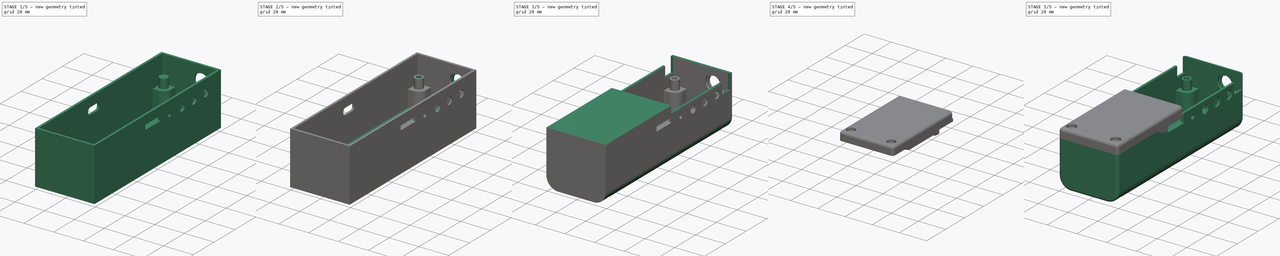
[diagram: build sequence overview — one tinted view per stage of 5, left to right]
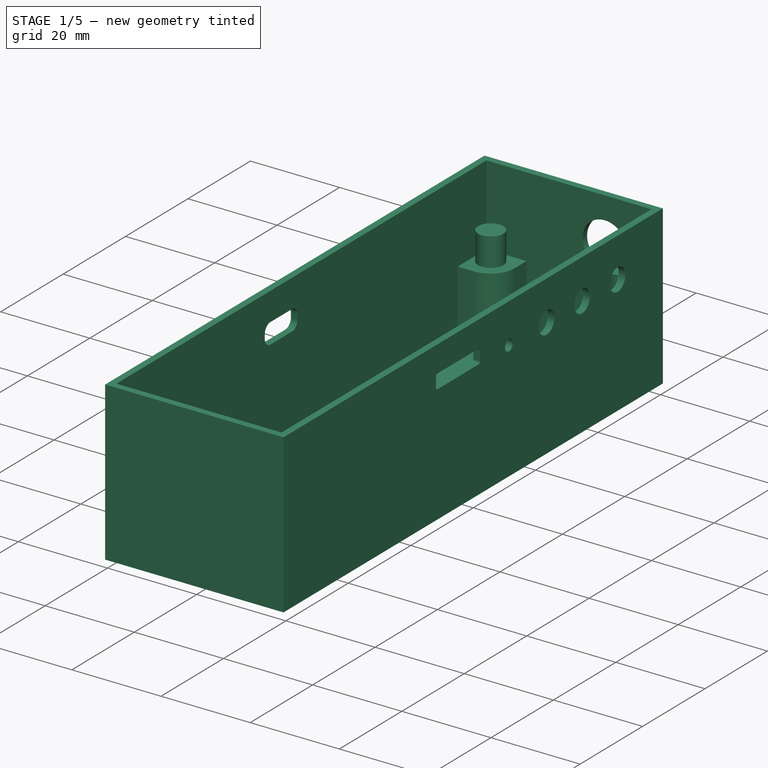
[diagram: stage 1 of 5 — iso view after this stage's code; geometry added in this stage tinted green]
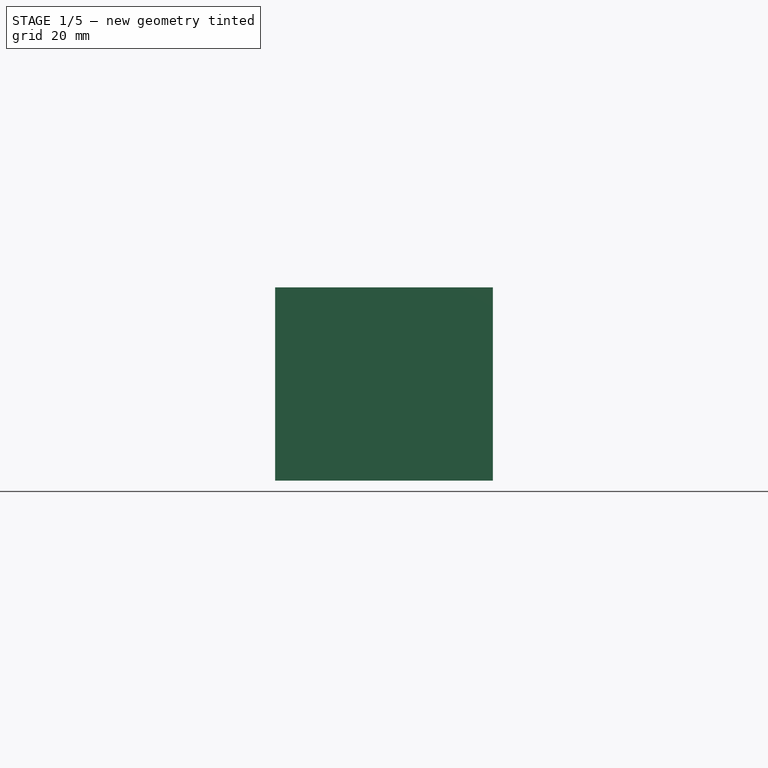
[diagram: stage 1 of 5 — front view after this stage's code; geometry added in this stage tinted green]
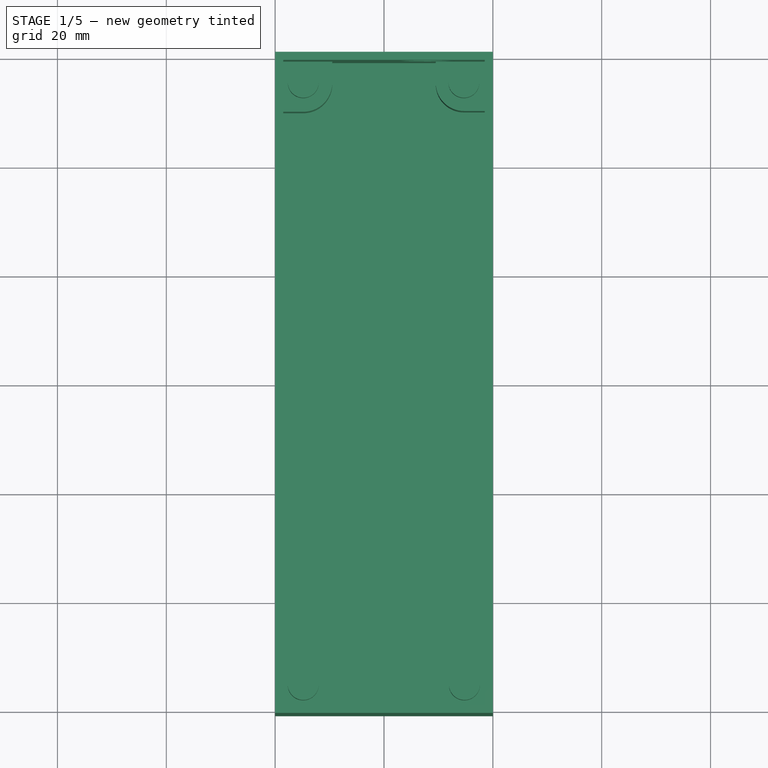
[diagram: stage 1 of 5 — top view after this stage's code; geometry added in this stage tinted green]
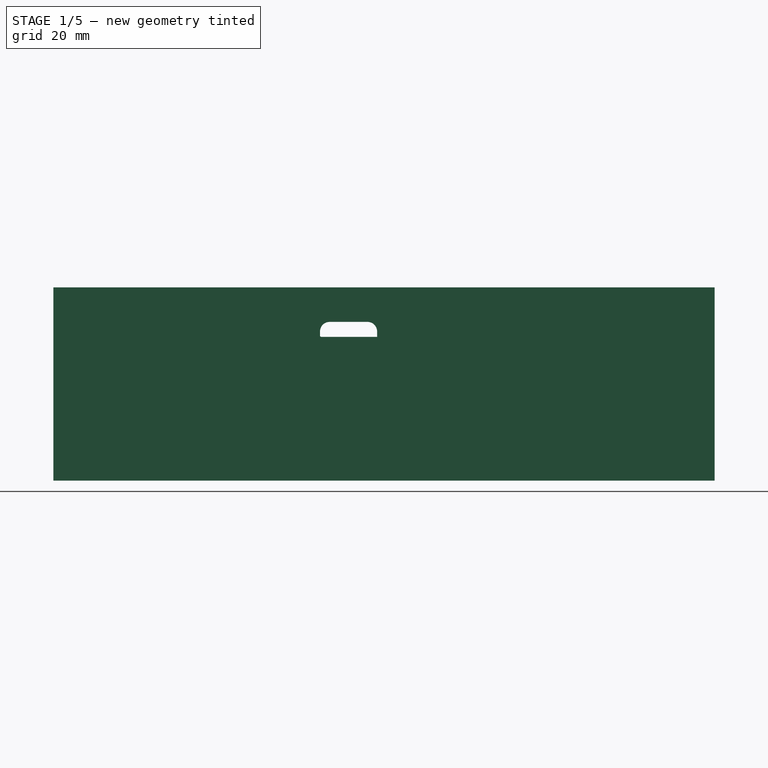
[diagram: stage 1 of 5 — right view after this stage's code; geometry added in this stage tinted green]
FCSTD DOCUMENT  (FreeCAD 2023.321R14555 (Git shallow))
Label: LilyGO-T-TWR-Plus-case
License: All rights reserved
LicenseURL: http://en.wikipedia.org/wiki/All_rights_reserved
objects: Part::Feature×252, App::Part×217, App::Link×156, Sketcher::SketchObject×21, PartDesign::Pocket×13, PartDesign::SubShapeBinder×11, PartDesign::Pad×10, Part::SubShapeBinder×5, PartDesign::Body×4, PartDesign::Chamfer×4, PartDesign::Hole×3, PartDesign::Solid×2, PartDesign::Thickness×1, PartDesign::Extrusion×1, PartDesign::Fillet×1, PartDesign::Split×1
note: 417 computed .brp shape members not serialized (recipe doc carries the construction recipe); baked Part::Feature solids carry a one-line shape summary decoded from their .brp

FEATURE [Part::Feature] Solid  label="Open CASCADE STEP translator 6.8 1.1.1"
  InvalidShape = false
  Placement = pos=(0,0,-0.623722) rot=(0,0,1;0rad)
  TreeRank = 4
  ValidateShape = false
  shape: bbox 35.5 x 116.6 x 0.6237 mm, 176 faces (baked)
FEATURE [App::Part] Part  label="Board"
  ClaimAllChildren = false
  ExportMode = 1
  Group = -> [Solid]
  Origin = -> Origin
  TreeRank = 6
  _ExportChildren = -> [Solid]
  _GroupVersion = 1
FEATURE [Part::Feature] Compound  label="R_0402"
  InvalidShape = false
  TreeRank = 19
  ValidateShape = false
  shape: bbox 1 x 0.5 x 0.301 mm, 90 faces, 3 solids (baked)
FEATURE [Part::Feature] Compound001  label="LOGO?"
  InvalidShape = false
  Placement = pos=(0.000460594,0.0318283,-0.0012) rot=(0,1,0;3.14159rad)
  TreeRank = 20
  ValidateShape = false
  shape: bbox 0.36 x 0.4155 x 0.0024 mm, 103 faces, 14 solids (baked)
FEATURE [App::Part] Part001  label="R_0403"
  ClaimAllChildren = false
  ExportMode = 1
  Group = -> [Compound,Compound001]
  Origin = -> Origin001
  Placement = pos=(10.2109,104.249,-0.623722) rot=(0.707107,0.707107,0;3.14159rad)
  TreeRank = 22
  _ExportChildren = -> [Compound,Compound001]
  _GroupVersion = 1
FEATURE [App::Part] Part002  label="R40"
  ClaimAllChildren = false
  ExportMode = 1
  Group = -> [Part001]
  Origin = -> Origin002
  TreeRank = 24
  _ExportChildren = -> [Part001]
  _GroupVersion = 1
FEATURE [Part::Feature] Solid001  label="COMPOUND001"
  InvalidShape = false
  TreeRank = 25
  ValidateShape = false
  shape: bbox 6 x 3.6 x 4.3 mm, 107 faces (baked)
FEATURE [Part::Feature] Solid002  label="COMPOUND002"
  InvalidShape = false
  TreeRank = 26
  ValidateShape = false
  shape: bbox 0.001 x 0.05363 x 0.1017 mm, 8 faces (baked)
FEATURE [Part::Feature] Solid003  label="COMPOUND003"
  InvalidShape = false
  TreeRank = 27
  ValidateShape = false
  shape: bbox 0.001 x 0.07614 x 0.1051 mm, 16 faces (baked)
FEATURE [Part::Feature] Solid004  label="COMPOUND004"
  InvalidShape = false
  TreeRank = 28
  ValidateShape = false
  shape: bbox 0.001 x 0.05469 x 0.1017 mm, 14 faces (baked)
FEATURE [Part::Feature] Solid005  label="COMPOUND005"
  InvalidShape = false
  TreeRank = 29
  ValidateShape = false
  shape: bbox 0.001 x 0.08279 x 0.1017 mm, 16 faces (baked)
FEATURE [Part::Feature] Solid006  label="COMPOUND006"
  InvalidShape = false
  TreeRank = 30
  ValidateShape = false
  shape: bbox 0.001 x 0.0915 x 0.1017 mm, 16 faces (baked)
FEATURE [Part::Feature] Solid007  label="COMPOUND007"
  InvalidShape = false
  TreeRank = 47
  ValidateShape = false
  shape: bbox 0.001 x 0.05469 x 0.1017 mm, 14 faces (baked)
FEATURE [Part::Feature] Solid008  label="COMPOUND008"
  InvalidShape = false
  TreeRank = 48
  ValidateShape = false
  shape: bbox 0.001 x 0.05836 x 0.07601 mm, 24 faces (baked)
FEATURE [Part::Feature] Solid009  label="COMPOUND009"
  InvalidShape = false
  TreeRank = 49
  ValidateShape = false
  shape: bbox 0.001 x 0.04905 x 0.07601 mm, 23 faces (baked)
FEATURE [Part::Feature] Solid010  label="COMPOUND010"
  InvalidShape = false
  TreeRank = 50
  ValidateShape = false
  shape: bbox 0.001 x 0.06972 x 0.1068 mm, 17 faces (baked)
FEATURE [Part::Feature] Solid011  label="COMPOUND011"
  InvalidShape = false
  TreeRank = 51
  ValidateShape = false
  shape: bbox 0.001 x 0.05469 x 0.1017 mm, 14 faces (baked)
FEATURE [Part::Feature] Solid012  label="COMPOUND012"
  InvalidShape = false
  TreeRank = 52
  ValidateShape = false
  shape: bbox 0.001 x 0.08279 x 0.1017 mm, 16 faces (baked)
FEATURE [Part::Feature] Solid013  label="COMPOUND013"
  InvalidShape = false
  TreeRank = 53
  ValidateShape = false
  shape: bbox 0.001 x 0.0915 x 0.1017 mm, 16 faces (baked)
FEATURE [Part::Feature] Solid014  label="COMPOUND014"
  InvalidShape = false
  TreeRank = 54
  ValidateShape = false
  shape: bbox 0.001 x 0.4613 x 0.3384 mm, 37 faces (baked)
FEATURE [App::Part] Part003  label="COMPOUND015"
  ClaimAllChildren = false
  ExportMode = 1
  Group = -> [Solid001,Solid002,Solid003,Solid004,Solid005,Solid006,Solid007,Solid008,Solid009,Solid010,Solid011,Solid012,Solid013,Solid014]
  Origin = -> Origin003
  TreeRank = 56
  _ExportChildren = -> [Solid001,Solid002,Solid003,Solid004,Solid005,Solid006,Solid007,Solid008,Solid009,Solid010,Solid011,Solid012,Solid013,Solid014]
  _GroupVersion = 1
FEATURE [App::Part] Part004  label="CONN-SMD_BM04B-SRSS-TBT-LF-SN"
  ClaimAllChildren = false
  ExportMode = 1
  Group = -> [Part003]
  Origin = -> Origin004
  TreeRank = 58
  _ExportChildren = -> [Part003]
  _GroupVersion = 1
FEATURE [App::Part] Part005  label="Unnamed-PCBModelCN1"
  ClaimAllChildren = false
  ExportMode = 1
  Group = -> [Part004]
  Origin = -> Origin005
  Placement = pos=(3.37358,69.0612,-0.623722) rot=(0.707107,0.707107,0;3.14159rad)
  TreeRank = 60
  _ExportChildren = -> [Part004]
  _GroupVersion = 1
FEATURE [App::Part] Part006  label="CN4"
  ClaimAllChildren = false
  ExportMode = 1
  Group = -> [Part005]
  Origin = -> Origin006
  TreeRank = 62
  _ExportChildren = -> [Part005]
  _GroupVersion = 1
FEATURE [Part::Feature] Solid015  label="COMPOUND016"
  InvalidShape = false
  TreeRank = 82
  ValidateShape = false
  shape: bbox 0.425 x 0.3 x 0.8 mm, 18 faces (baked)
FEATURE [Part::Feature] Solid016  label="COMPOUND017"
  InvalidShape = false
  TreeRank = 83
  ValidateShape = false
  shape: bbox 0.425 x 0.3 x 0.8 mm, 18 faces (baked)
FEATURE [Part::Feature] Solid017  label="COMPOUND018"
  InvalidShape = false
  TreeRank = 84
  ValidateShape = false
  shape: bbox 0.425 x 0.3 x 0.8 mm, 18 faces (baked)
FEATURE [Part::Feature] Solid018  label="COMPOUND019"
  InvalidShape = false
  TreeRank = 85
  ValidateShape = false
  shape: bbox 0.425 x 0.3 x 0.8 mm, 18 faces (baked)
FEATURE [Part::Feature] Solid019  label="COMPOUND020"
  InvalidShape = false
  TreeRank = 86
  ValidateShape = false
  shape: bbox 0.425 x 0.3 x 0.8 mm, 18 faces (baked)
FEATURE [Part::Feature] Solid020  label="COMPOUND021"
  InvalidShape = false
  TreeRank = 87
  ValidateShape = false
  shape: bbox 0.425 x 0.3 x 0.8 mm, 18 faces (baked)
FEATURE [Part::Feature] Solid021  label="COMPOUND022"
  InvalidShape = false
  TreeRank = 88
  ValidateShape = false
  shape: bbox 1.251 x 2.001 x 0.9 mm, 395 faces (baked)
FEATURE [App::Part] Part007  label="COMPOUND023"
  ClaimAllChildren = false
  ExportMode = 1
  Group = -> [Solid015,Solid016,Solid017,Solid018,Solid019,Solid020,Solid021]
  Origin = -> Origin007
  TreeRank = 90
  _ExportChildren = -> [Solid015,Solid016,Solid017,Solid018,Solid019,Solid020,Solid021]
  _GroupVersion = 1
FEATURE [App::Part] Part008  label="SC-70-6_L2.2-W1.3-P0.65-LS2.2-BR"
  ClaimAllChildren = false
  ExportMode = 1
  Group = -> [Part007]
  Origin = -> Origin008
  TreeRank = 92
  _ExportChildren = -> [Part007]
  _GroupVersion = 1
FEATURE [App::Part] Part009  label="Unnamed-PCBModelU1"
  ClaimAllChildren = false
  ExportMode = 1
  Group = -> [Part008]
  Origin = -> Origin009
  Placement = pos=(12.192,105.943,-0.623722) rot=(0.707107,0.707107,0;3.14159rad)
  TreeRank = 94
  _ExportChildren = -> [Part008]
  _GroupVersion = 1
FEATURE [App::Part] Part010  label="U9"
  ClaimAllChildren = false
  ExportMode = 1
  Group = -> [Part009]
  Origin = -> Origin010
  TreeRank = 96
  _ExportChildren = -> [Part009]
  _GroupVersion = 1
FEATURE [App::Link] Link  label="R_0404"
  AutoLinkLabel = true
  AutoPlacement = true
  LinkPlacement = pos=(12.2755,108.052,-0.623722) rot=(1,0,0;3.14159rad)
  LinkedObject = -> Part001
  Placement = pos=(12.2755,108.052,-0.623722) rot=(1,0,0;3.14159rad)
  SyncGroupVisibility = false
  TreeRank = 97
  _LinkVersion = 1
FEATURE [App::Part] Part011  label="R39"
  ClaimAllChildren = false
  ExportMode = 1
  Group = -> [Link]
  Origin = -> Origin011
  TreeRank = 99
  _ExportChildren = -> [Link]
  _GroupVersion = 1
FEATURE [Part::Feature] Compound002  label="LOGO?001"
  InvalidShape = false
  Placement = pos=(0,0.0171354,-0.00065) rot=(0,1,0;3.14159rad)
  TreeRank = 100
  ValidateShape = false
  shape: bbox 0.195 x 0.2251 x 0.0013 mm, 103 faces, 14 solids (baked)
FEATURE [Part::Feature] Compound003  label="C_0402"
  InvalidShape = false
  TreeRank = 115
  ValidateShape = false
  shape: bbox 1 x 0.52 x 0.52 mm, 98 faces, 3 solids (baked)
FEATURE [App::Part] Part012  label="C_0403"
  ClaimAllChildren = false
  ExportMode = 1
  Group = -> [Compound002,Compound003]
  Origin = -> Origin012
  Placement = pos=(10.2108,106.096,-0.638962) rot=(-0.707107,0.707107,0;3.14159rad)
  TreeRank = 117
  _ExportChildren = -> [Compound002,Compound003]
  _GroupVersion = 1
FEATURE [App::Part] Part013  label="C61"
  ClaimAllChildren = false
  ExportMode = 1
  Group = -> [Part012]
  Origin = -> Origin013
  TreeRank = 119
  _ExportChildren = -> [Part012]
  _GroupVersion = 1
FEATURE [Part::Feature] Compound004  label="LOGO?002"
  InvalidShape = false
  Placement = pos=(0,0.0171354,-0.00065) rot=(0,1,0;3.14159rad)
  TreeRank = 120
  ValidateShape = false
  shape: bbox 0.51 x 0.5886 x 0.0034 mm, 103 faces, 14 solids (baked)
FEATURE [Part::Feature] Compound005  label="C_0805"
  InvalidShape = false
  TreeRank = 121
  ValidateShape = false
  shape: bbox 2 x 1.22 x 0.52 mm, 102 faces, 3 solids (baked)
FEATURE [App::Part] Part014  label="C_0806"
  ClaimAllChildren = false
  ExportMode = 1
  Group = -> [Compound004,Compound005]
  Origin = -> Origin014
  Placement = pos=(16.9799,50.3682,0) rot=(0,0,1;1.5708rad)
  TreeRank = 123
  _ExportChildren = -> [Compound004,Compound005]
  _GroupVersion = 1
FEATURE [App::Part] Part015  label="C60"
  ClaimAllChildren = false
  ExportMode = 1
  Group = -> [Part014]
  Origin = -> Origin015
  TreeRank = 125
  _ExportChildren = -> [Part014]
  _GroupVersion = 1
FEATURE [App::Link] Link001  label="C_0807"
  AutoLinkLabel = true
  AutoPlacement = true
  LinkPlacement = pos=(14.986,50.3682,0) rot=(0,0,1;1.5708rad)
  LinkedObject = -> Part014
  Placement = pos=(14.986,50.3682,0) rot=(0,0,1;1.5708rad)
  SyncGroupVisibility = false
  TreeRank = 126
  _LinkVersion = 1
FEATURE [App::Part] Part016  label="C59"
  ClaimAllChildren = false
  ExportMode = 1
  Group = -> [Link001]
  Origin = -> Origin016
  TreeRank = 128
  _ExportChildren = -> [Link001]
  _GroupVersion = 1
FEATURE [Part::Feature] Solid022  label="KEYSTONE-PN1122_STEP_4_"
  InvalidShape = false
  TreeRank = 133
  ValidateShape = false
  shape: bbox 8.128 x 17.25 x 8.509 mm, 72 faces (baked)
FEATURE [Part::Feature] Solid023  label="KEYSTONE-PN1122_STEP_2_"
  InvalidShape = false
  TreeRank = 134
  ValidateShape = false
  shape: bbox 10.6 x 10.58 x 12.21 mm, 12 faces (baked)
FEATURE [Part::Feature] Solid024  label="KEYSTONE-PN1122_STEP_3_"
  InvalidShape = false
  TreeRank = 135
  ValidateShape = false
  shape: bbox 23.28 x 17.27 x 82.2 mm, 548 faces (baked)
FEATURE [Part::Feature] Solid025  label="KEYSTONE-PN1122_STEP_5_"
  InvalidShape = false
  TreeRank = 136
  ValidateShape = false
  shape: bbox 8.128 x 17.3 x 10.08 mm, 76 faces (baked)
FEATURE [Part::Feature] Solid026  label="KEYSTONE-PN1122_STEP_1_"
  InvalidShape = false
  TreeRank = 154
  ValidateShape = false
  shape: bbox 4.187 x 4.187 x 1.861 mm, 20 faces (baked)
FEATURE [App::Part] Part017  label="KEYSTONE-PN1122_1_ASM"
  ClaimAllChildren = false
  ExportMode = 1
  Group = -> [Solid022,Solid023,Solid024,Solid025,Solid026]
  Origin = -> Origin017
  TreeRank = 156
  _ExportChildren = -> [Solid022,Solid023,Solid024,Solid025,Solid026]
  _GroupVersion = 1
FEATURE [App::Part] Part018  label="keystone-pn1122_asm"
  ClaimAllChildren = false
  ExportMode = 1
  Group = -> [Part017]
  Origin = -> Origin018
  Placement = pos=(25.8039,49.9191,-10.8237) rot=(0,0.707107,-0.707107;3.14159rad)
  TreeRank = 158
  _ExportChildren = -> [Part017]
  _GroupVersion = 1
FEATURE [App::Part] Part019  label="P6"
  ClaimAllChildren = false
  ExportMode = 1
  Group = -> [Part018]
  Origin = -> Origin019
  TreeRank = 160
  _ExportChildren = -> [Part018]
  _GroupVersion = 1
FEATURE [App::Link] Link002  label="R_0405"
  AutoLinkLabel = true
  AutoPlacement = true
  LinkPlacement = pos=(9.77901,101.923,-0.623722) rot=(0.707107,0.707107,0;3.14159rad)
  LinkedObject = -> Part001
  Placement = pos=(9.77901,101.923,-0.623722) rot=(0.707107,0.707107,0;3.14159rad)
  SyncGroupVisibility = false
  TreeRank = 161
  _LinkVersion = 1
FEATURE [App::Part] Part020  label="R42"
  ClaimAllChildren = false
  ExportMode = 1
  Group = -> [Link002]
  Origin = -> Origin020
  TreeRank = 163
  _ExportChildren = -> [Link002]
  _GroupVersion = 1
FEATURE [Part::Feature] Solid027  label="COMPOUND024"
  InvalidShape = false
  TreeRank = 164
  ValidateShape = false
  shape: bbox 4 x 3.6 x 4.3 mm, 75 faces (baked)
FEATURE [Part::Feature] Solid028  label="COMPOUND025"
  InvalidShape = false
  TreeRank = 165
  ValidateShape = false
  shape: bbox 0.001 x 0.06435 x 0.122 mm, 8 faces (baked)
FEATURE [Part::Feature] Solid029  label="COMPOUND026"
  InvalidShape = false
  TreeRank = 166
  ValidateShape = false
  shape: bbox 0.001 x 0.09136 x 0.1261 mm, 16 faces (baked)
FEATURE [Part::Feature] Solid030  label="COMPOUND027"
  InvalidShape = false
  TreeRank = 167
  ValidateShape = false
  shape: bbox 0.001 x 0.06563 x 0.122 mm, 14 faces (baked)
FEATURE [Part::Feature] Solid031  label="COMPOUND028"
  InvalidShape = false
  TreeRank = 168
  ValidateShape = false
  shape: bbox 0.001 x 0.09935 x 0.122 mm, 16 faces (baked)
FEATURE [Part::Feature] Solid032  label="COMPOUND029"
  InvalidShape = false
  TreeRank = 169
  ValidateShape = false
  shape: bbox 0.001 x 0.1098 x 0.122 mm, 16 faces (baked)
FEATURE [Part::Feature] Solid033  label="COMPOUND030"
  InvalidShape = false
  TreeRank = 170
  ValidateShape = false
  shape: bbox 0.001 x 0.06563 x 0.122 mm, 14 faces (baked)
FEATURE [Part::Feature] Solid034  label="COMPOUND031"
  InvalidShape = false
  TreeRank = 186
  ValidateShape = false
  shape: bbox 0.001 x 0.07003 x 0.09121 mm, 24 faces (baked)
FEATURE [Part::Feature] Solid035  label="COMPOUND032"
  InvalidShape = false
  TreeRank = 187
  ValidateShape = false
  shape: bbox 0.001 x 0.05886 x 0.09121 mm, 23 faces (baked)
FEATURE [Part::Feature] Solid036  label="COMPOUND033"
  InvalidShape = false
  TreeRank = 188
  ValidateShape = false
  shape: bbox 0.001 x 0.08366 x 0.1282 mm, 17 faces (baked)
FEATURE [Part::Feature] Solid037  label="COMPOUND034"
  InvalidShape = false
  TreeRank = 189
  ValidateShape = false
  shape: bbox 0.001 x 0.06563 x 0.122 mm, 14 faces (baked)
FEATURE [Part::Feature] Solid038  label="COMPOUND035"
  InvalidShape = false
  TreeRank = 190
  ValidateShape = false
  shape: bbox 0.001 x 0.09935 x 0.122 mm, 16 faces (baked)
FEATURE [Part::Feature] Solid039  label="COMPOUND036"
  InvalidShape = false
  TreeRank = 191
  ValidateShape = false
  shape: bbox 0.001 x 0.1098 x 0.122 mm, 16 faces (baked)
FEATURE [Part::Feature] Solid040  label="COMPOUND037"
  InvalidShape = false
  TreeRank = 192
  ValidateShape = false
  shape: bbox 0.001 x 0.5535 x 0.406 mm, 37 faces (baked)
FEATURE [App::Part] Part021  label="COMPOUND038"
  ClaimAllChildren = false
  ExportMode = 1
  Group = -> [Solid027,Solid028,Solid029,Solid030,Solid031,Solid032,Solid033,Solid034,Solid035,Solid036,Solid037,Solid038,Solid039,Solid040]
  Origin = -> Origin021
  TreeRank = 194
  _ExportChildren = -> [Solid027,Solid028,Solid029,Solid030,Solid031,Solid032,Solid033,Solid034,Solid035,Solid036,Solid037,Solid038,Solid039,Solid040]
  _GroupVersion = 1
FEATURE [App::Part] Part022  label="CONN-SMD_BM02B-SRSS-TBT-LF-SN"
  ClaimAllChildren = false
  ExportMode = 1
  Group = -> [Part021]
  Origin = -> Origin022
  TreeRank = 196
  _ExportChildren = -> [Part021]
  _GroupVersion = 1
FEATURE [App::Part] Part023  label="Unnamed-PCBModelCN1_478597451"
  ClaimAllChildren = false
  ExportMode = 1
  Group = -> [Part022]
  Origin = -> Origin023
  Placement = pos=(32.2839,68.9818,-0.623722) rot=(0,1,0;3.14159rad)
  TreeRank = 198
  _ExportChildren = -> [Part022]
  _GroupVersion = 1
FEATURE [App::Part] Part024  label="CN3"
  ClaimAllChildren = false
  ExportMode = 1
  Group = -> [Part023]
  Origin = -> Origin024
  TreeRank = 200
  _ExportChildren = -> [Part023]
  _GroupVersion = 1
FEATURE [Part::Feature] Compound006  label="SOD-523"
  InvalidShape = false
  TreeRank = 214
  ValidateShape = false
  shape: bbox 1.6 x 0.8 x 0.6005 mm, 136 faces, 3 solids (baked)
FEATURE [Part::Feature] Compound007  label="LOGOԲ£­£°.１５"
  InvalidShape = false
  Placement = pos=(0.0114206,-0.00448703,-0.0015) rot=(0,1,0;3.14159rad)
  TreeRank = 215
  ValidateShape = false
  shape: bbox 0.45 x 0.5194 x 0.003 mm, 103 faces, 14 solids (baked)
FEATURE [App::Part] Part025  label="SOD-524"
  ClaimAllChildren = false
  ExportMode = 1
  Group = -> [Compound006,Compound007]
  Origin = -> Origin025
  Placement = pos=(29.4639,96.7739,-0.673722) rot=(0.707107,0.707107,0;3.14159rad)
  TreeRank = 217
  _ExportChildren = -> [Compound006,Compound007]
  _GroupVersion = 1
FEATURE [App::Part] Part026  label="D10"
  ClaimAllChildren = false
  ExportMode = 1
  Group = -> [Part025]
  Origin = -> Origin026
  TreeRank = 219
  _ExportChildren = -> [Part025]
  _GroupVersion = 1
FEATURE [Part::Feature] Compound008  label="LOGO?003"
  InvalidShape = false
  Placement = pos=(0,0.0171354,-0.00065) rot=(0,1,0;3.14159rad)
  TreeRank = 220
  ValidateShape = false
  shape: bbox 0.51 x 0.5886 x 0.0034 mm, 103 faces, 14 solids (baked)
FEATURE [Part::Feature] Compound009  label="C_0603"
  InvalidShape = false
  TreeRank = 221
  ValidateShape = false
  shape: bbox 1.6 x 0.82 x 0.82 mm, 104 faces, 3 solids (baked)
FEATURE [App::Part] Part027  label="C_0808"
  ClaimAllChildren = false
  ExportMode = 1
  Group = -> [Compound008,Compound009]
  Origin = -> Origin027
  Placement = pos=(24.257,96.393,-0.623722) rot=(0.707107,0.707107,0;3.14159rad)
  TreeRank = 223
  _ExportChildren = -> [Compound008,Compound009]
  _GroupVersion = 1
FEATURE [App::Part] Part028  label="C58"
  ClaimAllChildren = false
  ExportMode = 1
  Group = -> [Part027]
  Origin = -> Origin028
  TreeRank = 225
  _ExportChildren = -> [Part027]
  _GroupVersion = 1
FEATURE [Part::Feature] Solid041  label="Pin1"
  InvalidShape = false
  TreeRank = 226
  ValidateShape = false
  shape: bbox 0.8031 x 2.592 x 2.037 mm, 35 faces (baked)
FEATURE [Part::Feature] Solid042  label="Pin2"
  InvalidShape = false
  TreeRank = 261
  ValidateShape = false
  shape: bbox 0.8031 x 2.592 x 2.037 mm, 35 faces (baked)
FEATURE [Part::Feature] Solid043  label="CeramicBody"
  InvalidShape = false
  TreeRank = 262
  ValidateShape = false
  shape: bbox 3 x 2.48 x 1.98 mm, 10 faces (baked)
FEATURE [App::Part] Part029  label="Ceramic_Capacitor_1210_h79mil"
  ClaimAllChildren = false
  ExportMode = 1
  Group = -> [Solid041,Solid042,Solid043]
  Origin = -> Origin029
  Placement = pos=(3.1496,66.3956,0) rot=(0,0,1;0rad)
  TreeRank = 264
  _ExportChildren = -> [Solid041,Solid042,Solid043]
  _GroupVersion = 1
FEATURE [App::Part] Part030  label="C57"
  ClaimAllChildren = false
  ExportMode = 1
  Group = -> [Part029]
  Origin = -> Origin030
  TreeRank = 266
  _ExportChildren = -> [Part029]
  _GroupVersion = 1
FEATURE [Part::Feature] Solid044  label="SOLID"
  InvalidShape = false
  TreeRank = 267
  ValidateShape = false
  shape: bbox 1.02 x 0.62 x 0.51 mm, 340 faces (baked)
FEATURE [App::Part] Part031  label="DFN-SMD_L1.0-W0.6-BI"
  ClaimAllChildren = false
  ExportMode = 1
  Group = -> [Solid044]
  Origin = -> Origin031
  TreeRank = 269
  _ExportChildren = -> [Solid044]
  _GroupVersion = 1
FEATURE [App::Part] Part032  label="Unnamed-PCBModelD1"
  ClaimAllChildren = false
  ExportMode = 1
  Group = -> [Part031]
  Origin = -> Origin032
  Placement = pos=(31.3799,32.2833,-0.623722) rot=(0,1,0;3.14159rad)
  TreeRank = 271
  _ExportChildren = -> [Part031]
  _GroupVersion = 1
FEATURE [App::Part] Part033  label="D9"
  ClaimAllChildren = false
  ExportMode = 1
  Group = -> [Part032]
  Origin = -> Origin033
  TreeRank = 273
  _ExportChildren = -> [Part032]
  _GroupVersion = 1
FEATURE [App::Link] Link003  label="Unnamed-PCBModelD002"
  AutoLinkLabel = true
  AutoPlacement = true
  LinkPlacement = pos=(31.3799,34.4277,-0.623722) rot=(0,1,0;3.14159rad)
  LinkedObject = -> Part032
  Placement = pos=(31.3799,34.4277,-0.623722) rot=(0,1,0;3.14159rad)
  SyncGroupVisibility = false
  TreeRank = 274
  _LinkVersion = 1
FEATURE [App::Part] Part034  label="D8"
  ClaimAllChildren = false
  ExportMode = 1
  Group = -> [Link003]
  Origin = -> Origin034
  TreeRank = 276
  _ExportChildren = -> [Link003]
  _GroupVersion = 1
FEATURE [App::Link] Link004  label="Unnamed-PCBModelD003"
  AutoLinkLabel = true
  AutoPlacement = true
  LinkPlacement = pos=(31.3799,39.7888,-0.623722) rot=(0,1,0;3.14159rad)
  LinkedObject = -> Part032
  Placement = pos=(31.3799,39.7888,-0.623722) rot=(0,1,0;3.14159rad)
  SyncGroupVisibility = false
  TreeRank = 277
  _LinkVersion = 1
FEATURE [App::Part] Part035  label="D7"
  ClaimAllChildren = false
  ExportMode = 1
  Group = -> [Link004]
  Origin = -> Origin035
  TreeRank = 279
  _ExportChildren = -> [Link004]
  _GroupVersion = 1
FEATURE [App::Link] Link005  label="Unnamed-PCBModelD004"
  AutoLinkLabel = true
  AutoPlacement = true
  LinkPlacement = pos=(31.3799,37.6444,-0.623722) rot=(0,1,0;3.14159rad)
  LinkedObject = -> Part032
  Placement = pos=(31.3799,37.6444,-0.623722) rot=(0,1,0;3.14159rad)
  SyncGroupVisibility = false
  TreeRank = 280
  _LinkVersion = 1
FEATURE [App::Part] Part036  label="D6"
  ClaimAllChildren = false
  ExportMode = 1
  Group = -> [Link005]
  Origin = -> Origin036
  TreeRank = 282
  _ExportChildren = -> [Link005]
  _GroupVersion = 1
FEATURE [App::Link] Link006  label="Unnamed-PCBModelD005"
  AutoLinkLabel = true
  AutoPlacement = true
  LinkPlacement = pos=(10.287,52.6796,0) rot=(0,0,1;3.14159rad)
  LinkedObject = -> Part032
  Placement = pos=(10.287,52.6796,0) rot=(0,0,1;3.14159rad)
  SyncGroupVisibility = false
  TreeRank = 283
  _LinkVersion = 1
FEATURE [App::Part] Part037  label="D5"
  ClaimAllChildren = false
  ExportMode = 1
  Group = -> [Link006]
  Origin = -> Origin037
  TreeRank = 285
  _ExportChildren = -> [Link006]
  _GroupVersion = 1
FEATURE [App::Link] Link007  label="Unnamed-PCBModelD006"
  AutoLinkLabel = true
  AutoPlacement = true
  LinkPlacement = pos=(10.287,51.6636,0) rot=(0,0,1;3.14159rad)
  LinkedObject = -> Part032
  Placement = pos=(10.287,51.6636,0) rot=(0,0,1;3.14159rad)
  SyncGroupVisibility = false
  TreeRank = 286
  _LinkVersion = 1
FEATURE [App::Part] Part038  label="D1"
  ClaimAllChildren = false
  ExportMode = 1
  Group = -> [Link007]
  Origin = -> Origin038
  TreeRank = 288
  _ExportChildren = -> [Link007]
  _GroupVersion = 1
FEATURE [App::Link] Link008  label="R_0406"
  AutoLinkLabel = true
  AutoPlacement = true
  LinkPlacement = pos=(33.02,96.774,-0.623722) rot=(0.707107,0.707107,0;3.14159rad)
  LinkedObject = -> Part001
  Placement = pos=(33.02,96.774,-0.623722) rot=(0.707107,0.707107,0;3.14159rad)
  SyncGroupVisibility = false
  TreeRank = 289
  _LinkVersion = 1
FEATURE [App::Part] Part039  label="R37"
  ClaimAllChildren = false
  ExportMode = 1
  Group = -> [Link008]
  Origin = -> Origin039
  TreeRank = 291
  _ExportChildren = -> [Link008]
  _GroupVersion = 1
FEATURE [App::Link] Link009  label="R_0407"
  AutoLinkLabel = true
  AutoPlacement = true
  LinkPlacement = pos=(32.3849,87.7824,-0.623722) rot=(-0.707107,0.707107,0;3.14159rad)
  LinkedObject = -> Part001
  Placement = pos=(32.3849,87.7824,-0.623722) rot=(-0.707107,0.707107,0;3.14159rad)
  SyncGroupVisibility = false
  TreeRank = 292
  _LinkVersion = 1
FEATURE [App::Part] Part040  label="R21"
  ClaimAllChildren = false
  ExportMode = 1
  Group = -> [Link009]
  Origin = -> Origin040
  TreeRank = 294
  _ExportChildren = -> [Link009]
  _GroupVersion = 1
FEATURE [Part::Feature] Solid045  label="COMPOUND039"
  InvalidShape = false
  TreeRank = 313
  ValidateShape = false
  shape: bbox 0.36 x 0.62 x 0.61 mm, 18 faces (baked)
FEATURE [Part::Feature] Solid046  label="COMPOUND040"
  InvalidShape = false
  TreeRank = 314
  ValidateShape = false
  shape: bbox 1.2 x 0.5 x 0.6 mm, 18 faces (baked)
FEATURE [Part::Feature] Solid047  label="COMPOUND041"
  InvalidShape = false
  TreeRank = 315
  ValidateShape = false
  shape: bbox 0.36 x 0.62 x 0.61 mm, 18 faces (baked)
FEATURE [Part::Feature] Solid048  label="COMPOUND042"
  InvalidShape = false
  TreeRank = 316
  ValidateShape = false
  shape: bbox 1.7 x 0.7 x 0.61 mm, 298 faces (baked)
FEATURE [App::Part] Part041  label="COMPOUND043"
  ClaimAllChildren = false
  ExportMode = 1
  Group = -> [Solid045,Solid046,Solid047,Solid048]
  Origin = -> Origin041
  TreeRank = 318
  _ExportChildren = -> [Solid045,Solid046,Solid047,Solid048]
  _GroupVersion = 1
FEATURE [App::Part] Part042  label="LED-SMD_L1.7-W1.1-R-RD_GREEN"
  ClaimAllChildren = false
  ExportMode = 1
  Group = -> [Part041]
  Origin = -> Origin042
  TreeRank = 320
  _ExportChildren = -> [Part041]
  _GroupVersion = 1
FEATURE [App::Part] Part043  label="Unnamed-PCBModelLED1"
  ClaimAllChildren = false
  ExportMode = 1
  Group = -> [Part042]
  Origin = -> Origin043
  Placement = pos=(34.0614,98.8568,-0.623722) rot=(0.707107,0.707107,0;3.14159rad)
  TreeRank = 322
  _ExportChildren = -> [Part042]
  _GroupVersion = 1
FEATURE [App::Part] Part044  label="LED3"
  ClaimAllChildren = false
  ExportMode = 1
  Group = -> [Part043]
  Origin = -> Origin044
  TreeRank = 324
  _ExportChildren = -> [Part043]
  _GroupVersion = 1
FEATURE [App::Link] Link010  label="Unnamed-PCBModelLED002"
  AutoLinkLabel = true
  AutoPlacement = true
  LinkPlacement = pos=(34.0614,87.757,-0.623722) rot=(0.707107,0.707107,0;3.14159rad)
  LinkedObject = -> Part043
  Placement = pos=(34.0614,87.757,-0.623722) rot=(0.707107,0.707107,0;3.14159rad)
  SyncGroupVisibility = false
  TreeRank = 325
  _LinkVersion = 1
FEATURE [App::Part] Part045  label="LED2"
  ClaimAllChildren = false
  ExportMode = 1
  Group = -> [Link010]
  Origin = -> Origin045
  TreeRank = 327
  _ExportChildren = -> [Link010]
  _GroupVersion = 1
FEATURE [App::Link] Link011  label="Ceramic_Capacitor_1210_h79mil001"
  AutoLinkLabel = true
  AutoPlacement = true
  LinkPlacement = pos=(2.41299,90.5764,0) rot=(0,0,1;3.14159rad)
  LinkedObject = -> Part029
  Placement = pos=(2.41299,90.5764,0) rot=(0,0,1;3.14159rad)
  SyncGroupVisibility = false
  TreeRank = 328
  _LinkVersion = 1
FEATURE [App::Part] Part046  label="C31"
  ClaimAllChildren = false
  ExportMode = 1
  Group = -> [Link011]
  Origin = -> Origin046
  TreeRank = 330
  _ExportChildren = -> [Link011]
  _GroupVersion = 1
FEATURE [App::Link] Link012  label="Ceramic_Capacitor_1210_h79mil002"
  AutoLinkLabel = true
  AutoPlacement = true
  LinkPlacement = pos=(2.41299,94.3356,0) rot=(0,0,1;3.14159rad)
  LinkedObject = -> Part029
  Placement = pos=(2.41299,94.3356,0) rot=(0,0,1;3.14159rad)
  SyncGroupVisibility = false
  TreeRank = 352
  _LinkVersion = 1
FEATURE [App::Part] Part047  label="C56"
  ClaimAllChildren = false
  ExportMode = 1
  Group = -> [Link012]
  Origin = -> Origin047
  TreeRank = 354
  _ExportChildren = -> [Link012]
  _GroupVersion = 1
FEATURE [App::Link] Link013  label="R_0408"
  AutoLinkLabel = true
  AutoPlacement = true
  LinkPlacement = pos=(31.3,33.3123,-0.623722) rot=(1,0,0;3.14159rad)
  LinkedObject = -> Part001
  Placement = pos=(31.3,33.3123,-0.623722) rot=(1,0,0;3.14159rad)
  SyncGroupVisibility = false
  TreeRank = 355
  _LinkVersion = 1
FEATURE [App::Part] Part048  label="R6"
  ClaimAllChildren = false
  ExportMode = 1
  Group = -> [Link013]
  Origin = -> Origin048
  TreeRank = 357
  _ExportChildren = -> [Link013]
  _GroupVersion = 1
FEATURE [App::Link] Link014  label="R_0409"
  AutoLinkLabel = true
  AutoPlacement = true
  LinkPlacement = pos=(31.4117,35.4567,-0.623722) rot=(1,0,0;3.14159rad)
  LinkedObject = -> Part001
  Placement = pos=(31.4117,35.4567,-0.623722) rot=(1,0,0;3.14159rad)
  SyncGroupVisibility = false
  TreeRank = 358
  _LinkVersion = 1
FEATURE [App::Part] Part049  label="R5"
  ClaimAllChildren = false
  ExportMode = 1
  Group = -> [Link014]
  Origin = -> Origin049
  TreeRank = 360
  _ExportChildren = -> [Link014]
  _GroupVersion = 1
FEATURE [App::Link] Link015  label="R_0410"
  AutoLinkLabel = true
  AutoPlacement = true
  LinkPlacement = pos=(31.3,40.8177,-0.623722) rot=(1,0,0;3.14159rad)
  LinkedObject = -> Part001
  Placement = pos=(31.3,40.8177,-0.623722) rot=(1,0,0;3.14159rad)
  SyncGroupVisibility = false
  TreeRank = 361
  _LinkVersion = 1
FEATURE [App::Part] Part050  label="R4"
  ClaimAllChildren = false
  ExportMode = 1
  Group = -> [Link015]
  Origin = -> Origin050
  TreeRank = 363
  _ExportChildren = -> [Link015]
  _GroupVersion = 1
FEATURE [App::Link] Link016  label="R_0411"
  AutoLinkLabel = true
  AutoPlacement = true
  LinkPlacement = pos=(31.3,38.6733,-0.623722) rot=(1,0,0;3.14159rad)
  LinkedObject = -> Part001
  Placement = pos=(31.3,38.6733,-0.623722) rot=(1,0,0;3.14159rad)
  SyncGroupVisibility = false
  TreeRank = 364
  _LinkVersion = 1
FEATURE [App::Part] Part051  label="R3"
  ClaimAllChildren = false
  ExportMode = 1
  Group = -> [Link016]
  Origin = -> Origin051
  TreeRank = 366
  _ExportChildren = -> [Link016]
  _GroupVersion = 1
FEATURE [App::Link] Link017  label="C_0809"
  AutoLinkLabel = true
  AutoPlacement = true
  LinkPlacement = pos=(31.3,36.529,-0.638962) rot=(0,1,0;3.14159rad)
  LinkedObject = -> Part012
  Placement = pos=(31.3,36.529,-0.638962) rot=(0,1,0;3.14159rad)
  SyncGroupVisibility = false
  TreeRank = 367
  _LinkVersion = 1
FEATURE [App::Part] Part052  label="C1"
  ClaimAllChildren = false
  ExportMode = 1
  Group = -> [Link017]
  Origin = -> Origin052
  TreeRank = 369
  _ExportChildren = -> [Link017]
  _GroupVersion = 1
FEATURE [Part::Feature] Solid049  label="COMPOUND044"
  InvalidShape = false
  TreeRank = 370
  ValidateShape = false
  shape: bbox 1.298 x 2.894 x 0.9978 mm, 214 faces (baked)
FEATURE [Part::Feature] Solid050  label="COMPOUND045"
  InvalidShape = false
  TreeRank = 371
  ValidateShape = false
  shape: bbox 0.6015 x 0.3991 x 0.633 mm, 51 faces (baked)
FEATURE [Part::Feature] Solid051  label="COMPOUND046"
  InvalidShape = false
  TreeRank = 372
  ValidateShape = false
  shape: bbox 0.6015 x 0.3991 x 0.633 mm, 51 faces (baked)
FEATURE [Part::Feature] Solid052  label="COMPOUND047"
  InvalidShape = false
  TreeRank = 382
  ValidateShape = false
  shape: bbox 0.6015 x 0.3991 x 0.633 mm, 51 faces (baked)
FEATURE [Part::Feature] Solid053  label="COMPOUND048"
  InvalidShape = false
  TreeRank = 383
  ValidateShape = false
  shape: bbox 0.06088 x 0.0321 x 0.000998 mm, 8 faces (baked)
FEATURE [Part::Feature] Solid054  label="COMPOUND049"
  InvalidShape = false
  TreeRank = 384
  ValidateShape = false
  shape: bbox 0.06293 x 0.04558 x 0.000998 mm, 16 faces (baked)
FEATURE [Part::Feature] Solid055  label="COMPOUND050"
  InvalidShape = false
  TreeRank = 385
  ValidateShape = false
  shape: bbox 0.06088 x 0.03274 x 0.000998 mm, 14 faces (baked)
FEATURE [Part::Feature] Solid056  label="COMPOUND051"
  InvalidShape = false
  TreeRank = 386
  ValidateShape = false
  shape: bbox 0.06088 x 0.04956 x 0.000998 mm, 16 faces (baked)
FEATURE [Part::Feature] Solid057  label="COMPOUND052"
  InvalidShape = false
  TreeRank = 387
  ValidateShape = false
  shape: bbox 0.06088 x 0.05478 x 0.000998 mm, 16 faces (baked)
FEATURE [Part::Feature] Solid058  label="COMPOUND053"
  InvalidShape = false
  TreeRank = 388
  ValidateShape = false
  shape: bbox 0.06088 x 0.03274 x 0.000998 mm, 14 faces (baked)
FEATURE [Part::Feature] Solid059  label="COMPOUND054"
  InvalidShape = false
  TreeRank = 389
  ValidateShape = false
  shape: bbox 0.0455 x 0.03494 x 0.000998 mm, 24 faces (baked)
FEATURE [Part::Feature] Solid060  label="COMPOUND055"
  InvalidShape = false
  TreeRank = 390
  ValidateShape = false
  shape: bbox 0.0455 x 0.02937 x 0.000998 mm, 23 faces (baked)
FEATURE [Part::Feature] Solid061  label="COMPOUND056"
  InvalidShape = false
  TreeRank = 411
  ValidateShape = false
  shape: bbox 0.06396 x 0.04174 x 0.000998 mm, 17 faces (baked)
FEATURE [Part::Feature] Solid062  label="COMPOUND057"
  InvalidShape = false
  TreeRank = 412
  ValidateShape = false
  shape: bbox 0.06088 x 0.03274 x 0.000998 mm, 14 faces (baked)
FEATURE [Part::Feature] Solid063  label="COMPOUND058"
  InvalidShape = false
  TreeRank = 413
  ValidateShape = false
  shape: bbox 0.06088 x 0.04956 x 0.000998 mm, 16 faces (baked)
FEATURE [Part::Feature] Solid064  label="COMPOUND059"
  InvalidShape = false
  TreeRank = 414
  ValidateShape = false
  shape: bbox 0.06088 x 0.05478 x 0.000998 mm, 16 faces (baked)
FEATURE [Part::Feature] Solid065  label="COMPOUND060"
  InvalidShape = false
  TreeRank = 415
  ValidateShape = false
  shape: bbox 0.2026 x 0.2761 x 0.000998 mm, 37 faces (baked)
FEATURE [App::Part] Part053  label="COMPOUND061"
  ClaimAllChildren = false
  ExportMode = 1
  Group = -> [Solid049,Solid050,Solid051,Solid052,Solid053,Solid054,Solid055,Solid056,Solid057,Solid058,Solid059,Solid060,Solid061,Solid062,Solid063,Solid064,Solid065]
  Origin = -> Origin053
  TreeRank = 417
  _ExportChildren = -> [Solid049,Solid050,Solid051,Solid052,Solid053,Solid054,Solid055,Solid056,Solid057,Solid058,Solid059,Solid060,Solid061,Solid062,Solid063,Solid064,Solid065]
  _GroupVersion = 1
FEATURE [App::Part] Part054  label="SOT-23-3_L2.9-W1.3-P1.90-LS2.4-BR"
  ClaimAllChildren = false
  ExportMode = 1
  Group = -> [Part053]
  Origin = -> Origin054
  TreeRank = 419
  _ExportChildren = -> [Part053]
  _GroupVersion = 1
FEATURE [App::Part] Part055  label="Unnamed-PCBModelQ1"
  ClaimAllChildren = false
  ExportMode = 1
  Group = -> [Part054]
  Origin = -> Origin055
  Placement = pos=(12.2645,101.967,-0.623722) rot=(0,1,0;3.14159rad)
  TreeRank = 421
  _ExportChildren = -> [Part054]
  _GroupVersion = 1
FEATURE [App::Part] Part056  label="Q3"
  ClaimAllChildren = false
  ExportMode = 1
  Group = -> [Part055]
  Origin = -> Origin056
  TreeRank = 423
  _ExportChildren = -> [Part055]
  _GroupVersion = 1
FEATURE [Part::Feature] Solid066  label="SOLID001"
  InvalidShape = false
  TreeRank = 424
  ValidateShape = false
  shape: bbox 3.982 x 1.709 x 2.002 mm, 330 faces (baked)
FEATURE [App::Part] Part057  label="LED-SMD_WS2812B-4020"
  ClaimAllChildren = false
  ExportMode = 1
  Group = -> [Solid066]
  Origin = -> Origin057
  TreeRank = 426
  _ExportChildren = -> [Solid066]
  _GroupVersion = 1
FEATURE [App::Part] Part058  label="Unnamed-PCBModelLED1_275182786"
  ClaimAllChildren = false
  ExportMode = 1
  Group = -> [Part057]
  Origin = -> Origin058
  Placement = pos=(1.54812,75.438,-0.623722) rot=(-0.707107,0.707107,0;3.14159rad)
  TreeRank = 428
  _ExportChildren = -> [Part057]
  _GroupVersion = 1
FEATURE [App::Part] Part059  label="LED1"
  ClaimAllChildren = false
  ExportMode = 1
  Group = -> [Part058]
  Origin = -> Origin059
  TreeRank = 430
  _ExportChildren = -> [Part058]
  _GroupVersion = 1
FEATURE [App::Link] Link018  label="Unnamed-PCBModelCN002"
  AutoLinkLabel = true
  AutoPlacement = true
  LinkPlacement = pos=(1.75259,61.7474,-0.623722) rot=(-0.707107,0.707107,0;3.14159rad)
  LinkedObject = -> Part005
  Placement = pos=(1.75259,61.7474,-0.623722) rot=(-0.707107,0.707107,0;3.14159rad)
  SyncGroupVisibility = false
  TreeRank = 474
  _LinkVersion = 1
FEATURE [App::Part] Part060  label="CN1"
  ClaimAllChildren = false
  ExportMode = 1
  Group = -> [Link018]
  Origin = -> Origin060
  TreeRank = 476
  _ExportChildren = -> [Link018]
  _GroupVersion = 1
FEATURE [App::Link] Link019  label="R_0412"
  AutoLinkLabel = true
  AutoPlacement = true
  LinkPlacement = pos=(10.2363,50.6984,0) rot=(0,0,1;0rad)
  LinkedObject = -> Part001
  Placement = pos=(10.2363,50.6984,0) rot=(0,0,1;0rad)
  SyncGroupVisibility = false
  TreeRank = 477
  _LinkVersion = 1
FEATURE [App::Part] Part061  label="R7"
  ClaimAllChildren = false
  ExportMode = 1
  Group = -> [Link019]
  Origin = -> Origin061
  TreeRank = 479
  _ExportChildren = -> [Link019]
  _GroupVersion = 1
FEATURE [App::Link] Link020  label="R_0413"
  AutoLinkLabel = true
  AutoPlacement = true
  LinkPlacement = pos=(10.287,53.721,0) rot=(0,0,1;0rad)
  LinkedObject = -> Part001
  Placement = pos=(10.287,53.721,0) rot=(0,0,1;0rad)
  SyncGroupVisibility = false
  TreeRank = 480
  _LinkVersion = 1
FEATURE [App::Part] Part062  label="R2"
  ClaimAllChildren = false
  ExportMode = 1
  Group = -> [Link020]
  Origin = -> Origin062
  TreeRank = 482
  _ExportChildren = -> [Link020]
  _GroupVersion = 1
FEATURE [Part::Feature] Compound010  label="R_0603"
  InvalidShape = false
  TreeRank = 483
  ValidateShape = false
  shape: bbox 1.6 x 0.8 x 0.401 mm, 96 faces, 3 solids (baked)
FEATURE [Part::Feature] Compound011  label="LOGO?004"
  InvalidShape = false
  Placement = pos=(0.00010152,0.0322024,-0.0016) rot=(0,1,0;3.14159rad)
  TreeRank = 484
  ValidateShape = false
  shape: bbox 0.48 x 0.554 x 0.0032 mm, 103 faces, 14 solids (baked)
FEATURE [App::Part] Part063  label="R_0604"
  ClaimAllChildren = false
  ExportMode = 1
  Group = -> [Compound010,Compound011]
  Origin = -> Origin063
  Placement = pos=(29.464,8.12808,-0.623722) rot=(0.707107,0.707107,0;3.14159rad)
  TreeRank = 486
  _ExportChildren = -> [Compound010,Compound011]
  _GroupVersion = 1
FEATURE [App::Part] Part064  label="R1"
  ClaimAllChildren = false
  ExportMode = 1
  Group = -> [Part063]
  Origin = -> Origin064
  TreeRank = 488
  _ExportChildren = -> [Part063]
  _GroupVersion = 1
FEATURE [App::Link] Link021  label="C_0810"
  AutoLinkLabel = true
  AutoPlacement = true
  LinkPlacement = pos=(30.861,8.128,-0.623722) rot=(-0.707107,0.707107,0;3.14159rad)
  LinkedObject = -> Part027
  Placement = pos=(30.861,8.128,-0.623722) rot=(-0.707107,0.707107,0;3.14159rad)
  SyncGroupVisibility = false
  TreeRank = 489
  _LinkVersion = 1
FEATURE [App::Part] Part065  label="C2"
  ClaimAllChildren = false
  ExportMode = 1
  Group = -> [Link021]
  Origin = -> Origin065
  TreeRank = 491
  _ExportChildren = -> [Link021]
  _GroupVersion = 1
FEATURE [App::Link] Link022  label="C_0811"
  AutoLinkLabel = true
  AutoPlacement = true
  LinkPlacement = pos=(26.2889,8.12792,-0.623722) rot=(-0.707107,0.707107,0;3.14159rad)
  LinkedObject = -> Part014
  Placement = pos=(26.2889,8.12792,-0.623722) rot=(-0.707107,0.707107,0;3.14159rad)
  SyncGroupVisibility = false
  TreeRank = 492
  _LinkVersion = 1
FEATURE [App::Part] Part066  label="C5"
  ClaimAllChildren = false
  ExportMode = 1
  Group = -> [Link022]
  Origin = -> Origin066
  TreeRank = 494
  _ExportChildren = -> [Link022]
  _GroupVersion = 1
FEATURE [App::Link] Link023  label="C_0812"
  AutoLinkLabel = true
  AutoPlacement = true
  LinkPlacement = pos=(28.067,8.128,-0.623722) rot=(-0.707107,0.707107,0;3.14159rad)
  LinkedObject = -> Part027
  Placement = pos=(28.067,8.128,-0.623722) rot=(-0.707107,0.707107,0;3.14159rad)
  SyncGroupVisibility = false
  TreeRank = 495
  _LinkVersion = 1
FEATURE [App::Part] Part067  label="C4"
  ClaimAllChildren = false
  ExportMode = 1
  Group = -> [Link023]
  Origin = -> Origin067
  TreeRank = 497
  _ExportChildren = -> [Link023]
  _GroupVersion = 1
FEATURE [App::Link] Link024  label="C_0813"
  AutoLinkLabel = true
  AutoPlacement = true
  LinkPlacement = pos=(24.5109,8.12792,-0.623722) rot=(-0.707107,0.707107,0;3.14159rad)
  LinkedObject = -> Part014
  Placement = pos=(24.5109,8.12792,-0.623722) rot=(-0.707107,0.707107,0;3.14159rad)
  SyncGroupVisibility = false
  TreeRank = 498
  _LinkVersion = 1
FEATURE [App::Part] Part068  label="C3"
  ClaimAllChildren = false
  ExportMode = 1
  Group = -> [Link024]
  Origin = -> Origin068
  TreeRank = 500
  _ExportChildren = -> [Link024]
  _GroupVersion = 1
FEATURE [App::Link] Link025  label="R_0605"
  AutoLinkLabel = true
  AutoPlacement = true
  LinkPlacement = pos=(14.859,28.067,0) rot=(0,0,1;1.5708rad)
  LinkedObject = -> Part001
  Placement = pos=(14.859,28.067,0) rot=(0,0,1;1.5708rad)
  SyncGroupVisibility = false
  TreeRank = 501
  _LinkVersion = 1
FEATURE [App::Part] Part069  label="R14"
  ClaimAllChildren = false
  ExportMode = 1
  Group = -> [Link025]
  Origin = -> Origin069
  TreeRank = 503
  _ExportChildren = -> [Link025]
  _GroupVersion = 1
FEATURE [App::Link] Link026  label="R_0606"
  AutoLinkLabel = true
  AutoPlacement = true
  LinkPlacement = pos=(13.843,28.067,0) rot=(0,0,1;1.5708rad)
  LinkedObject = -> Part001
  Placement = pos=(13.843,28.067,0) rot=(0,0,1;1.5708rad)
  SyncGroupVisibility = false
  TreeRank = 504
  _LinkVersion = 1
FEATURE [App::Part] Part070  label="R13"
  ClaimAllChildren = false
  ExportMode = 1
  Group = -> [Link026]
  Origin = -> Origin070
  TreeRank = 506
  _ExportChildren = -> [Link026]
  _GroupVersion = 1
FEATURE [App::Link] Link027  label="R_0607"
  AutoLinkLabel = true
  AutoPlacement = true
  LinkPlacement = pos=(11.811,28.067,0) rot=(0,0,1;1.5708rad)
  LinkedObject = -> Part001
  Placement = pos=(11.811,28.067,0) rot=(0,0,1;1.5708rad)
  SyncGroupVisibility = false
  TreeRank = 507
  _LinkVersion = 1
FEATURE [App::Part] Part071  label="R11"
  ClaimAllChildren = false
  ExportMode = 1
  Group = -> [Link027]
  Origin = -> Origin071
  TreeRank = 509
  _ExportChildren = -> [Link027]
  _GroupVersion = 1
FEATURE [Part::Feature] Solid067  label="SOLID002"
  InvalidShape = false
  TreeRank = 510
  ValidateShape = false
  shape: bbox 4.5 x 3.5 x 3.8 mm, 396 faces (baked)
FEATURE [App::Part] Part072  label="KEY-SMD_ST-1133"
  ClaimAllChildren = false
  ExportMode = 1
  Group = -> [Solid067]
  Origin = -> Origin072
  TreeRank = 512
  _ExportChildren = -> [Solid067]
  _GroupVersion = 1
FEATURE [App::Part] Part073  label="Unnamed-PCBModelSW1"
  ClaimAllChildren = false
  ExportMode = 1
  Group = -> [Part072]
  Origin = -> Origin073
  Placement = pos=(33.4772,104.546,0) rot=(0,0,1;1.5708rad)
  TreeRank = 514
  _ExportChildren = -> [Part072]
  _GroupVersion = 1
FEATURE [App::Part] Part074  label="SW4"
  ClaimAllChildren = false
  ExportMode = 1
  Group = -> [Part073]
  Origin = -> Origin074
  TreeRank = 516
  _ExportChildren = -> [Part073]
  _GroupVersion = 1
FEATURE [App::Link] Link028  label="R_0608"
  AutoLinkLabel = true
  AutoPlacement = true
  LinkPlacement = pos=(25.527,30.6578,0) rot=(0,0,1;1.5708rad)
  LinkedObject = -> Part001
  Placement = pos=(25.527,30.6578,0) rot=(0,0,1;1.5708rad)
  SyncGroupVisibility = false
  TreeRank = 544
  _LinkVersion = 1
FEATURE [App::Part] Part075  label="R38"
  ClaimAllChildren = false
  ExportMode = 1
  Group = -> [Link028]
  Origin = -> Origin075
  TreeRank = 546
  _ExportChildren = -> [Link028]
  _GroupVersion = 1
FEATURE [App::Link] Link029  label="Unnamed-PCBModelSW002"
  AutoLinkLabel = true
  AutoPlacement = true
  LinkPlacement = pos=(33.4772,69.7484,0) rot=(0,0,1;1.5708rad)
  LinkedObject = -> Part073
  Placement = pos=(33.4772,69.7484,0) rot=(0,0,1;1.5708rad)
  SyncGroupVisibility = false
  TreeRank = 547
  _LinkVersion = 1
FEATURE [App::Part] Part076  label="SW1"
  ClaimAllChildren = false
  ExportMode = 1
  Group = -> [Link029]
  Origin = -> Origin076
  TreeRank = 549
  _ExportChildren = -> [Link029]
  _GroupVersion = 1
FEATURE [App::Link] Link030  label="Unnamed-PCBModelSW003"
  AutoLinkLabel = true
  AutoPlacement = true
  LinkPlacement = pos=(33.4772,81.8134,0) rot=(0,0,1;1.5708rad)
  LinkedObject = -> Part073
  Placement = pos=(33.4772,81.8134,0) rot=(0,0,1;1.5708rad)
  SyncGroupVisibility = false
  TreeRank = 550
  _LinkVersion = 1
FEATURE [App::Part] Part077  label="SW2"
  ClaimAllChildren = false
  ExportMode = 1
  Group = -> [Link030]
  Origin = -> Origin077
  TreeRank = 552
  _ExportChildren = -> [Link030]
  _GroupVersion = 1
FEATURE [App::Link] Link031  label="R_0609"
  AutoLinkLabel = true
  AutoPlacement = true
  LinkPlacement = pos=(3.64467,80.902,0) rot=(0,0,1;3.14159rad)
  LinkedObject = -> Part001
  Placement = pos=(3.64467,80.902,0) rot=(0,0,1;3.14159rad)
  SyncGroupVisibility = false
  TreeRank = 553
  _LinkVersion = 1
FEATURE [App::Part] Part078  label="R19"
  ClaimAllChildren = false
  ExportMode = 1
  Group = -> [Link031]
  Origin = -> Origin078
  TreeRank = 555
  _ExportChildren = -> [Link031]
  _GroupVersion = 1
FEATURE [App::Link] Link032  label="R_0610"
  AutoLinkLabel = true
  AutoPlacement = true
  LinkPlacement = pos=(3.64476,79.505,0) rot=(0,0,1;0rad)
  LinkedObject = -> Part001
  Placement = pos=(3.64476,79.505,0) rot=(0,0,1;0rad)
  SyncGroupVisibility = false
  TreeRank = 556
  _LinkVersion = 1
FEATURE [App::Part] Part079  label="R17"
  ClaimAllChildren = false
  ExportMode = 1
  Group = -> [Link032]
  Origin = -> Origin079
  TreeRank = 558
  _ExportChildren = -> [Link032]
  _GroupVersion = 1
FEATURE [Part::Feature] Compound012  label="R_0805"
  InvalidShape = false
  TreeRank = 559
  ValidateShape = false
  shape: bbox 2 x 1.25 x 0.501 mm, 94 faces, 3 solids (baked)
FEATURE [Part::Feature] Compound013  label="LOGO?005"
  InvalidShape = false
  Placement = pos=(-0.00206986,0.0819648,-0.003) rot=(0,1,0;3.14159rad)
  TreeRank = 560
  ValidateShape = false
  shape: bbox 0.9 x 1.039 x 0.006 mm, 103 faces, 14 solids (baked)
FEATURE [App::Part] Part080  label="R_0806"
  ClaimAllChildren = false
  ExportMode = 1
  Group = -> [Compound012,Compound013]
  Origin = -> Origin080
  Placement = pos=(18.1355,82.3977,-0.623722) rot=(0,1,0;3.14159rad)
  TreeRank = 562
  _ExportChildren = -> [Compound012,Compound013]
  _GroupVersion = 1
FEATURE [App::Part] Part081  label="R26"
  ClaimAllChildren = false
  ExportMode = 1
  Group = -> [Part080]
  Origin = -> Origin081
  TreeRank = 564
  _ExportChildren = -> [Part080]
  _GroupVersion = 1
FEATURE [Part::Feature] Compound014  label="LOGO?006"
  InvalidShape = false
  Placement = pos=(-0.0331114,0,-0.0014) rot=(0.707107,-0.707107,0;3.14159rad)
  TreeRank = 565
  ValidateShape = false
  shape: bbox 0.4847 x 0.42 x 0.0028 mm, 103 faces, 14 solids (baked)
FEATURE [Part::Feature] Compound015  label="0603"
  InvalidShape = false
  Placement = pos=(0,0,0) rot=(1,0,0;1.5708rad)
  TreeRank = 566
  ValidateShape = false
  shape: bbox 1.6 x 0.8 x 0.8 mm, 104 faces, 3 solids (baked)
FEATURE [App::Part] Part082  label="0603001"
  ClaimAllChildren = false
  ExportMode = 1
  Group = -> [Compound014,Compound015]
  Origin = -> Origin082
  Placement = pos=(1.27003,99.553,-0.623722) rot=(-0.707107,0.707107,0;3.14159rad)
  TreeRank = 568
  _ExportChildren = -> [Compound014,Compound015]
  _GroupVersion = 1
FEATURE [App::Part] Part083  label="L6"
  ClaimAllChildren = false
  ExportMode = 1
  Group = -> [Part082]
  Origin = -> Origin083
  TreeRank = 570
  _ExportChildren = -> [Part082]
  _GroupVersion = 1
FEATURE [Part::Feature] Solid068  label="SOLID003"
  InvalidShape = false
  TreeRank = 605
  ValidateShape = false
  shape: bbox 4.5 x 1.6 x 1.6 mm, 357 faces (baked)
FEATURE [App::Part] Part084  label="L1806"
  ClaimAllChildren = false
  ExportMode = 1
  Group = -> [Solid068]
  Origin = -> Origin084
  TreeRank = 607
  _ExportChildren = -> [Solid068]
  _GroupVersion = 1
FEATURE [App::Part] Part085  label="Unnamed-PCBModelL1"
  ClaimAllChildren = false
  ExportMode = 1
  Group = -> [Part084]
  Origin = -> Origin085
  Placement = pos=(3.0988,105.397,0) rot=(0,0,1;3.14159rad)
  TreeRank = 609
  _ExportChildren = -> [Part084]
  _GroupVersion = 1
FEATURE [App::Part] Part086  label="L5"
  ClaimAllChildren = false
  ExportMode = 1
  Group = -> [Part085]
  Origin = -> Origin086
  TreeRank = 611
  _ExportChildren = -> [Part085]
  _GroupVersion = 1
FEATURE [App::Link] Link033  label="Ceramic_Capacitor_1210_h79mil003"
  AutoLinkLabel = true
  AutoPlacement = true
  LinkPlacement = pos=(3.1496,59.2074,0) rot=(0,0,1;0rad)
  LinkedObject = -> Part029
  Placement = pos=(3.1496,59.2074,0) rot=(0,0,1;0rad)
  SyncGroupVisibility = false
  TreeRank = 612
  _LinkVersion = 1
FEATURE [App::Part] Part087  label="C11"
  ClaimAllChildren = false
  ExportMode = 1
  Group = -> [Link033]
  Origin = -> Origin087
  TreeRank = 614
  _ExportChildren = -> [Link033]
  _GroupVersion = 1
FEATURE [App::Link] Link034  label="C_0814"
  AutoLinkLabel = true
  AutoPlacement = true
  LinkPlacement = pos=(2.55501,107.696,0) rot=(0,0,1;3.14159rad)
  LinkedObject = -> Part027
  Placement = pos=(2.55501,107.696,0) rot=(0,0,1;3.14159rad)
  SyncGroupVisibility = false
  TreeRank = 615
  _LinkVersion = 1
FEATURE [App::Part] Part088  label="C36"
  ClaimAllChildren = false
  ExportMode = 1
  Group = -> [Link034]
  Origin = -> Origin088
  TreeRank = 617
  _ExportChildren = -> [Link034]
  _GroupVersion = 1
FEATURE [App::Link] Link035  label="C_0815"
  AutoLinkLabel = true
  AutoPlacement = true
  LinkPlacement = pos=(2.54001,109.347,0) rot=(0,0,1;3.14159rad)
  LinkedObject = -> Part027
  Placement = pos=(2.54001,109.347,0) rot=(0,0,1;3.14159rad)
  SyncGroupVisibility = false
  TreeRank = 618
  _LinkVersion = 1
FEATURE [App::Part] Part089  label="C35"
  ClaimAllChildren = false
  ExportMode = 1
  Group = -> [Link035]
  Origin = -> Origin089
  TreeRank = 620
  _ExportChildren = -> [Link035]
  _GroupVersion = 1
FEATURE [App::Link] Link036  label="R_0807"
  AutoLinkLabel = true
  AutoPlacement = true
  LinkPlacement = pos=(29.591,110.617,-0.623722) rot=(0,1,0;3.14159rad)
  LinkedObject = -> Part001
  Placement = pos=(29.591,110.617,-0.623722) rot=(0,1,0;3.14159rad)
  SyncGroupVisibility = false
  TreeRank = 621
  _LinkVersion = 1
FEATURE [App::Part] Part090  label="R35"
  ClaimAllChildren = false
  ExportMode = 1
  Group = -> [Link036]
  Origin = -> Origin090
  TreeRank = 623
  _ExportChildren = -> [Link036]
  _GroupVersion = 1
FEATURE [App::Link] Link037  label="C_0816"
  AutoLinkLabel = true
  AutoPlacement = true
  LinkPlacement = pos=(15.2218,110.338,-0.638962) rot=(0,1,0;3.14159rad)
  LinkedObject = -> Part012
  Placement = pos=(15.2218,110.338,-0.638962) rot=(0,1,0;3.14159rad)
  SyncGroupVisibility = false
  TreeRank = 624
  _LinkVersion = 1
FEATURE [App::Part] Part091  label="C51"
  ClaimAllChildren = false
  ExportMode = 1
  Group = -> [Link037]
  Origin = -> Origin091
  TreeRank = 626
  _ExportChildren = -> [Link037]
  _GroupVersion = 1
FEATURE [App::Link] Link038  label="C_0817"
  AutoLinkLabel = true
  AutoPlacement = true
  LinkPlacement = pos=(16.9164,109.88,-0.638962) rot=(-0.707107,0.707107,0;3.14159rad)
  LinkedObject = -> Part012
  Placement = pos=(16.9164,109.88,-0.638962) rot=(-0.707107,0.707107,0;3.14159rad)
  SyncGroupVisibility = false
  TreeRank = 627
  _LinkVersion = 1
FEATURE [App::Part] Part092  label="C55"
  ClaimAllChildren = false
  ExportMode = 1
  Group = -> [Link038]
  Origin = -> Origin092
  TreeRank = 629
  _ExportChildren = -> [Link038]
  _GroupVersion = 1
FEATURE [App::Link] Link039  label="C_0818"
  AutoLinkLabel = true
  AutoPlacement = true
  LinkPlacement = pos=(25.5016,96.393,-0.623722) rot=(0.707107,0.707107,0;3.14159rad)
  LinkedObject = -> Part027
  Placement = pos=(25.5016,96.393,-0.623722) rot=(0.707107,0.707107,0;3.14159rad)
  SyncGroupVisibility = false
  TreeRank = 630
  _LinkVersion = 1
FEATURE [App::Part] Part093  label="C54"
  ClaimAllChildren = false
  ExportMode = 1
  Group = -> [Link039]
  Origin = -> Origin093
  TreeRank = 632
  _ExportChildren = -> [Link039]
  _GroupVersion = 1
FEATURE [App::Link] Link040  label="C_0819"
  AutoLinkLabel = true
  AutoPlacement = true
  LinkPlacement = pos=(18.288,111.76,-0.638962) rot=(-0.707107,0.707107,0;3.14159rad)
  LinkedObject = -> Part012
  Placement = pos=(18.288,111.76,-0.638962) rot=(-0.707107,0.707107,0;3.14159rad)
  SyncGroupVisibility = false
  TreeRank = 633
  _LinkVersion = 1
FEATURE [App::Part] Part094  label="C50"
  ClaimAllChildren = false
  ExportMode = 1
  Group = -> [Link040]
  Origin = -> Origin094
  TreeRank = 635
  _ExportChildren = -> [Link040]
  _GroupVersion = 1
FEATURE [App::Link] Link041  label="Unnamed-PCBModelU002"
  AutoLinkLabel = true
  AutoPlacement = true
  LinkPlacement = pos=(32.751,77.6282,-0.623722) rot=(0.707107,0.707107,0;3.14159rad)
  LinkedObject = -> Part009
  Placement = pos=(32.751,77.6282,-0.623722) rot=(0.707107,0.707107,0;3.14159rad)
  SyncGroupVisibility = false
  TreeRank = 636
  _LinkVersion = 1
FEATURE [App::Part] Part095  label="U7"
  ClaimAllChildren = false
  ExportMode = 1
  Group = -> [Link041]
  Origin = -> Origin095
  TreeRank = 638
  _ExportChildren = -> [Link041]
  _GroupVersion = 1
FEATURE [App::Link] Link042  label="R_0808"
  AutoLinkLabel = true
  AutoPlacement = true
  LinkPlacement = pos=(30.734,96.774,-0.623722) rot=(-0.707107,0.707107,0;3.14159rad)
  LinkedObject = -> Part001
  Placement = pos=(30.734,96.774,-0.623722) rot=(-0.707107,0.707107,0;3.14159rad)
  SyncGroupVisibility = false
  TreeRank = 657
  _LinkVersion = 1
FEATURE [App::Part] Part096  label="R36"
  ClaimAllChildren = false
  ExportMode = 1
  Group = -> [Link042]
  Origin = -> Origin096
  TreeRank = 659
  _ExportChildren = -> [Link042]
  _GroupVersion = 1
FEATURE [App::Link] Link043  label="R_0809"
  AutoLinkLabel = true
  AutoPlacement = true
  LinkPlacement = pos=(31.75,96.774,-0.623722) rot=(-0.707107,0.707107,0;3.14159rad)
  LinkedObject = -> Part001
  Placement = pos=(31.75,96.774,-0.623722) rot=(-0.707107,0.707107,0;3.14159rad)
  SyncGroupVisibility = false
  TreeRank = 660
  _LinkVersion = 1
FEATURE [App::Part] Part097  label="R34"
  ClaimAllChildren = false
  ExportMode = 1
  Group = -> [Link043]
  Origin = -> Origin097
  TreeRank = 662
  _ExportChildren = -> [Link043]
  _GroupVersion = 1
FEATURE [App::Link] Link044  label="R_0810"
  AutoLinkLabel = true
  AutoPlacement = true
  LinkPlacement = pos=(19.4056,56.8706,0) rot=(0,0,-1;1.5708rad)
  LinkedObject = -> Part001
  Placement = pos=(19.4056,56.8706,0) rot=(0,0,-1;1.5708rad)
  SyncGroupVisibility = false
  TreeRank = 663
  _LinkVersion = 1
FEATURE [App::Part] Part098  label="R32"
  ClaimAllChildren = false
  ExportMode = 1
  Group = -> [Link044]
  Origin = -> Origin098
  TreeRank = 665
  _ExportChildren = -> [Link044]
  _GroupVersion = 1
FEATURE [App::Link] Link045  label="Unnamed-PCBModelQ002"
  AutoLinkLabel = true
  AutoPlacement = true
  LinkPlacement = pos=(8.255,45.8978,0) rot=(0,0,1;0rad)
  LinkedObject = -> Part055
  Placement = pos=(8.255,45.8978,0) rot=(0,0,1;0rad)
  SyncGroupVisibility = false
  TreeRank = 666
  _LinkVersion = 1
FEATURE [App::Part] Part099  label="Q1"
  ClaimAllChildren = false
  ExportMode = 1
  Group = -> [Link045]
  Origin = -> Origin099
  TreeRank = 668
  _ExportChildren = -> [Link045]
  _GroupVersion = 1
FEATURE [Part::Feature] Solid069  label="COMPOUND062"
  InvalidShape = false
  TreeRank = 669
  ValidateShape = false
  shape: bbox 0.15 x 5.41 x 0.81 mm, 16 faces (baked)
FEATURE [Part::Feature] Solid070  label="COMPOUND063"
  InvalidShape = false
  TreeRank = 670
  ValidateShape = false
  shape: bbox 0.15 x 5.41 x 0.81 mm, 16 faces (baked)
FEATURE [Part::Feature] Solid071  label="COMPOUND064"
  InvalidShape = false
  TreeRank = 671
  ValidateShape = false
  shape: bbox 0.15 x 5.41 x 0.81 mm, 16 faces (baked)
FEATURE [Part::Feature] Solid072  label="COMPOUND065"
  InvalidShape = false
  TreeRank = 672
  ValidateShape = false
  shape: bbox 0.15 x 5.41 x 0.81 mm, 16 faces (baked)
FEATURE [Part::Feature] Solid073  label="COMPOUND066"
  InvalidShape = false
  TreeRank = 673
  ValidateShape = false
  shape: bbox 1.05 x 1.1 x 0.12 mm, 8 faces (baked)
FEATURE [Part::Feature] Solid074  label="COMPOUND067"
  InvalidShape = false
  TreeRank = 674
  ValidateShape = false
  shape: bbox 0.15 x 5.41 x 0.81 mm, 16 faces (baked)
FEATURE [Part::Feature] Solid075  label="COMPOUND068"
  InvalidShape = false
  TreeRank = 684
  ValidateShape = false
  shape: bbox 0.15 x 5.41 x 0.81 mm, 16 faces (baked)
FEATURE [Part::Feature] Solid076  label="COMPOUND069"
  InvalidShape = false
  TreeRank = 685
  ValidateShape = false
  shape: bbox 0.15 x 5.41 x 0.81 mm, 16 faces (baked)
FEATURE [Part::Feature] Solid077  label="COMPOUND070"
  InvalidShape = false
  TreeRank = 686
  ValidateShape = false
  shape: bbox 0.15 x 5.41 x 0.81 mm, 16 faces (baked)
FEATURE [Part::Feature] Solid078  label="COMPOUND071"
  InvalidShape = false
  TreeRank = 687
  ValidateShape = false
  shape: bbox 0.15 x 5.41 x 0.81 mm, 16 faces (baked)
FEATURE [Part::Feature] Solid079  label="COMPOUND072"
  InvalidShape = false
  TreeRank = 688
  ValidateShape = false
  shape: bbox 0.15 x 5.41 x 0.81 mm, 16 faces (baked)
FEATURE [Part::Feature] Solid080  label="COMPOUND073"
  InvalidShape = false
  TreeRank = 689
  ValidateShape = false
  shape: bbox 0.15 x 5.41 x 0.81 mm, 16 faces (baked)
FEATURE [Part::Feature] Solid081  label="COMPOUND074"
  InvalidShape = false
  TreeRank = 690
  ValidateShape = false
  shape: bbox 0.15 x 5.41 x 0.81 mm, 16 faces (baked)
FEATURE [Part::Feature] Solid082  label="COMPOUND075"
  InvalidShape = false
  TreeRank = 691
  ValidateShape = false
  shape: bbox 0.15 x 5.41 x 0.81 mm, 16 faces (baked)
FEATURE [Part::Feature] Solid083  label="COMPOUND076"
  InvalidShape = false
  TreeRank = 692
  ValidateShape = false
  shape: bbox 0.15 x 5.41 x 0.81 mm, 16 faces (baked)
FEATURE [Part::Feature] Solid084  label="COMPOUND077"
  InvalidShape = false
  TreeRank = 702
  ValidateShape = false
  shape: bbox 0.15 x 5.41 x 0.81 mm, 16 faces (baked)
FEATURE [Part::Feature] Solid085  label="COMPOUND078"
  InvalidShape = false
  TreeRank = 703
  ValidateShape = false
  shape: bbox 0.15 x 5.41 x 0.81 mm, 16 faces (baked)
FEATURE [Part::Feature] Solid086  label="COMPOUND079"
  InvalidShape = false
  TreeRank = 704
  ValidateShape = false
  shape: bbox 0.15 x 5.41 x 0.81 mm, 16 faces (baked)
FEATURE [Part::Feature] Solid087  label="COMPOUND080"
  InvalidShape = false
  TreeRank = 705
  ValidateShape = false
  shape: bbox 0.15 x 5.41 x 0.81 mm, 16 faces (baked)
FEATURE [Part::Feature] Solid088  label="COMPOUND081"
  InvalidShape = false
  TreeRank = 706
  ValidateShape = false
  shape: bbox 0.15 x 5.41 x 0.81 mm, 16 faces (baked)
FEATURE [Part::Feature] Solid089  label="COMPOUND082"
  InvalidShape = false
  TreeRank = 707
  ValidateShape = false
  shape: bbox 0.15 x 5.41 x 0.81 mm, 16 faces (baked)
FEATURE [Part::Feature] Solid090  label="COMPOUND083"
  InvalidShape = false
  TreeRank = 708
  ValidateShape = false
  shape: bbox 0.15 x 5.41 x 0.81 mm, 16 faces (baked)
FEATURE [Part::Feature] Solid091  label="COMPOUND084"
  InvalidShape = false
  TreeRank = 709
  ValidateShape = false
  shape: bbox 0.15 x 5.41 x 0.81 mm, 16 faces (baked)
FEATURE [Part::Feature] Solid092  label="COMPOUND085"
  InvalidShape = false
  TreeRank = 710
  ValidateShape = false
  shape: bbox 0.15 x 5.41 x 0.81 mm, 16 faces (baked)
FEATURE [Part::Feature] Solid093  label="COMPOUND086"
  InvalidShape = false
  TreeRank = 719
  ValidateShape = false
  shape: bbox 0.15 x 5.41 x 0.81 mm, 16 faces (baked)
FEATURE [Part::Feature] Solid094  label="COMPOUND087"
  InvalidShape = false
  TreeRank = 720
  ValidateShape = false
  shape: bbox 0.15 x 5.41 x 0.81 mm, 16 faces (baked)
FEATURE [Part::Feature] Solid095  label="COMPOUND088"
  InvalidShape = false
  TreeRank = 721
  ValidateShape = false
  shape: bbox 0.15 x 5.41 x 0.81 mm, 16 faces (baked)
FEATURE [Part::Feature] Solid096  label="COMPOUND089"
  InvalidShape = false
  TreeRank = 722
  ValidateShape = false
  shape: bbox 0.15 x 5.41 x 0.81 mm, 16 faces (baked)
FEATURE [Part::Feature] Solid097  label="COMPOUND090"
  InvalidShape = false
  TreeRank = 723
  ValidateShape = false
  shape: bbox 0.15 x 5.41 x 0.81 mm, 16 faces (baked)
FEATURE [Part::Feature] Solid098  label="COMPOUND091"
  InvalidShape = false
  TreeRank = 724
  ValidateShape = false
  shape: bbox 0.15 x 5.41 x 0.81 mm, 16 faces (baked)
FEATURE [Part::Feature] Solid099  label="COMPOUND092"
  InvalidShape = false
  TreeRank = 725
  ValidateShape = false
  shape: bbox 0.15 x 5.41 x 0.81 mm, 16 faces (baked)
FEATURE [Part::Feature] Solid100  label="COMPOUND093"
  InvalidShape = false
  TreeRank = 726
  ValidateShape = false
  shape: bbox 0.15 x 4.3 x 0.3222 mm, 8 faces (baked)
FEATURE [Part::Feature] Solid101  label="COMPOUND094"
  InvalidShape = false
  TreeRank = 736
  ValidateShape = false
  shape: bbox 0.15 x 4.3 x 0.3222 mm, 8 faces (baked)
FEATURE [Part::Feature] Solid102  label="COMPOUND095"
  InvalidShape = false
  TreeRank = 737
  ValidateShape = false
  shape: bbox 0.15 x 4.3 x 0.3222 mm, 8 faces (baked)
FEATURE [Part::Feature] Solid103  label="COMPOUND096"
  InvalidShape = false
  TreeRank = 738
  ValidateShape = false
  shape: bbox 0.15 x 4.3 x 0.3222 mm, 8 faces (baked)
FEATURE [Part::Feature] Solid104  label="COMPOUND097"
  InvalidShape = false
  TreeRank = 739
  ValidateShape = false
  shape: bbox 0.58 x 0.4 x 0.96 mm, 8 faces (baked)
FEATURE [Part::Feature] Solid105  label="COMPOUND098"
  InvalidShape = false
  TreeRank = 740
  ValidateShape = false
  shape: bbox 1.05 x 1.1 x 0.12 mm, 8 faces (baked)
FEATURE [Part::Feature] Solid106  label="COMPOUND099"
  InvalidShape = false
  TreeRank = 741
  ValidateShape = false
  shape: bbox 0.58 x 0.4 x 0.96 mm, 8 faces (baked)
FEATURE [Part::Feature] Solid107  label="COMPOUND100"
  InvalidShape = false
  TreeRank = 742
  ValidateShape = false
  shape: bbox 17 x 1.85 x 1.2 mm, 18 faces (baked)
FEATURE [Part::Feature] Solid108  label="COMPOUND101"
  InvalidShape = false
  TreeRank = 743
  ValidateShape = false
  shape: bbox 0.15 x 4.3 x 0.3222 mm, 8 faces (baked)
FEATURE [Part::Feature] Solid109  label="COMPOUND102"
  InvalidShape = false
  TreeRank = 744
  ValidateShape = false
  shape: bbox 0.15 x 4.3 x 0.3222 mm, 8 faces (baked)
FEATURE [Part::Feature] Solid110  label="COMPOUND103"
  InvalidShape = false
  TreeRank = 754
  ValidateShape = false
  shape: bbox 17 x 4.9 x 0.8 mm, 205 faces (baked)
FEATURE [Part::Feature] Solid111  label="COMPOUND104"
  InvalidShape = false
  TreeRank = 755
  ValidateShape = false
  shape: bbox 0.15 x 4.3 x 0.3222 mm, 8 faces (baked)
FEATURE [Part::Feature] Solid112  label="COMPOUND105"
  InvalidShape = false
  TreeRank = 756
  ValidateShape = false
  shape: bbox 0.15 x 4.3 x 0.3222 mm, 8 faces (baked)
FEATURE [Part::Feature] Solid113  label="COMPOUND106"
  InvalidShape = false
  TreeRank = 757
  ValidateShape = false
  shape: bbox 0.15 x 4.3 x 0.3222 mm, 8 faces (baked)
FEATURE [Part::Feature] Solid114  label="COMPOUND107"
  InvalidShape = false
  TreeRank = 758
  ValidateShape = false
  shape: bbox 0.15 x 4.3 x 0.3222 mm, 8 faces (baked)
FEATURE [Part::Feature] Solid115  label="COMPOUND108"
  InvalidShape = false
  TreeRank = 759
  ValidateShape = false
  shape: bbox 0.15 x 4.3 x 0.3222 mm, 8 faces (baked)
FEATURE [Part::Feature] Solid116  label="COMPOUND109"
  InvalidShape = false
  TreeRank = 760
  ValidateShape = false
  shape: bbox 0.15 x 4.3 x 0.3222 mm, 8 faces (baked)
FEATURE [Part::Feature] Solid117  label="COMPOUND110"
  InvalidShape = false
  TreeRank = 761
  ValidateShape = false
  shape: bbox 0.15 x 4.3 x 0.3222 mm, 8 faces (baked)
FEATURE [Part::Feature] Solid118  label="COMPOUND111"
  InvalidShape = false
  TreeRank = 762
  ValidateShape = false
  shape: bbox 0.15 x 4.3 x 0.3222 mm, 8 faces (baked)
FEATURE [Part::Feature] Solid119  label="COMPOUND112"
  InvalidShape = false
  TreeRank = 772
  ValidateShape = false
  shape: bbox 0.15 x 4.3 x 0.3222 mm, 8 faces (baked)
FEATURE [Part::Feature] Solid120  label="COMPOUND113"
  InvalidShape = false
  TreeRank = 773
  ValidateShape = false
  shape: bbox 0.15 x 4.3 x 0.3222 mm, 8 faces (baked)
FEATURE [Part::Feature] Solid121  label="COMPOUND114"
  InvalidShape = false
  TreeRank = 774
  ValidateShape = false
  shape: bbox 0.15 x 4.3 x 0.3222 mm, 8 faces (baked)
FEATURE [Part::Feature] Solid122  label="COMPOUND115"
  InvalidShape = false
  TreeRank = 775
  ValidateShape = false
  shape: bbox 0.15 x 4.3 x 0.3222 mm, 8 faces (baked)
FEATURE [Part::Feature] Solid123  label="COMPOUND116"
  InvalidShape = false
  TreeRank = 776
  ValidateShape = false
  shape: bbox 0.15 x 4.3 x 0.3222 mm, 8 faces (baked)
FEATURE [Part::Feature] Solid124  label="COMPOUND117"
  InvalidShape = false
  TreeRank = 777
  ValidateShape = false
  shape: bbox 0.15 x 4.3 x 0.3222 mm, 8 faces (baked)
FEATURE [Part::Feature] Solid125  label="COMPOUND118"
  InvalidShape = false
  TreeRank = 778
  ValidateShape = false
  shape: bbox 0.15 x 4.3 x 0.3222 mm, 8 faces (baked)
FEATURE [Part::Feature] Solid126  label="COMPOUND119"
  InvalidShape = false
  TreeRank = 779
  ValidateShape = false
  shape: bbox 0.15 x 4.3 x 0.3222 mm, 8 faces (baked)
FEATURE [Part::Feature] Solid127  label="COMPOUND120"
  InvalidShape = false
  TreeRank = 780
  ValidateShape = false
  shape: bbox 0.15 x 4.3 x 0.3222 mm, 8 faces (baked)
FEATURE [Part::Feature] Solid128  label="COMPOUND121"
  InvalidShape = false
  TreeRank = 800
  ValidateShape = false
  shape: bbox 0.15 x 4.3 x 0.3222 mm, 8 faces (baked)
FEATURE [Part::Feature] Solid129  label="COMPOUND122"
  InvalidShape = false
  TreeRank = 801
  ValidateShape = false
  shape: bbox 0.15 x 4.3 x 0.3222 mm, 8 faces (baked)
FEATURE [Part::Feature] Solid130  label="COMPOUND123"
  InvalidShape = false
  TreeRank = 802
  ValidateShape = false
  shape: bbox 0.15 x 4.3 x 0.3222 mm, 8 faces (baked)
FEATURE [Part::Feature] Solid131  label="COMPOUND124"
  InvalidShape = false
  TreeRank = 803
  ValidateShape = false
  shape: bbox 0.15 x 4.3 x 0.3222 mm, 8 faces (baked)
FEATURE [Part::Feature] Solid132  label="COMPOUND125"
  InvalidShape = false
  TreeRank = 804
  ValidateShape = false
  shape: bbox 0.15 x 4.3 x 0.3222 mm, 8 faces (baked)
FEATURE [Part::Feature] Solid133  label="COMPOUND126"
  InvalidShape = false
  TreeRank = 805
  ValidateShape = false
  shape: bbox 0.15 x 4.3 x 0.3222 mm, 8 faces (baked)
FEATURE [Part::Feature] Solid134  label="COMPOUND127"
  InvalidShape = false
  TreeRank = 806
  ValidateShape = false
  shape: bbox 0.15 x 4.3 x 0.3222 mm, 8 faces (baked)
FEATURE [Part::Feature] Solid135  label="COMPOUND128"
  InvalidShape = false
  TreeRank = 807
  ValidateShape = false
  shape: bbox 18.5 x 5 x 1.86 mm, 489 faces (baked)
FEATURE [App::Part] Part100  label="COMPOUND129"
  ClaimAllChildren = false
  ExportMode = 1
  Group = -> [Solid069,Solid070,Solid071,Solid072,Solid073,Solid074,Solid075,Solid076,Solid077,Solid078,Solid079,Solid080,Solid081,Solid082,Solid083,Solid084,Solid085,Solid086,Solid087,Solid088,Solid089,Solid090,Solid091,Solid092,Solid093,Solid094,Solid095,Solid096,Solid097,Solid098,Solid099,Solid100,Solid101,Solid102,Solid103,Solid104,Solid105,Solid106,Solid107,Solid108,Solid109,Solid110,Solid111,Solid112,+23 more]
  Origin = -> Origin100
  TreeRank = 809
  _ExportChildren = -> [Solid069,Solid070,Solid071,Solid072,Solid073,Solid074,Solid075,Solid076,Solid077,Solid078,Solid079,Solid080,Solid081,Solid082,Solid083,Solid084,Solid085,Solid086,Solid087,Solid088,Solid089,Solid090,Solid091,Solid092,Solid093,Solid094,Solid095,Solid096,Solid097,Solid098,Solid099,Solid100,Solid101,Solid102,Solid103,Solid104,Solid105,Solid106,Solid107,Solid108,Solid109,Solid110,Solid111,Solid112,+23 more]
  _GroupVersion = 1
FEATURE [App::Part] Part101  label="FPC-SMD_30P-P0.50_L4.9-W18.5"
  ClaimAllChildren = false
  ExportMode = 1
  Group = -> [Part100]
  Origin = -> Origin101
  TreeRank = 811
  _ExportChildren = -> [Part100]
  _GroupVersion = 1
FEATURE [App::Part] Part102  label="Unnamed-PCBModelFPC1"
  ClaimAllChildren = false
  ExportMode = 1
  Group = -> [Part101]
  Origin = -> Origin102
  Placement = pos=(17.6784,64.008,0) rot=(0,0,1;3.14159rad)
  TreeRank = 813
  _ExportChildren = -> [Part101]
  _GroupVersion = 1
FEATURE [App::Part] Part103  label="FPC1"
  ClaimAllChildren = false
  ExportMode = 1
  Group = -> [Part102]
  Origin = -> Origin103
  TreeRank = 815
  _ExportChildren = -> [Part102]
  _GroupVersion = 1
FEATURE [App::Link] Link046  label="C_0820"
  AutoLinkLabel = true
  AutoPlacement = true
  LinkPlacement = pos=(20.5994,56.896,0) rot=(0,0,-1;1.5708rad)
  LinkedObject = -> Part027
  Placement = pos=(20.5994,56.896,0) rot=(0,0,-1;1.5708rad)
  SyncGroupVisibility = false
  TreeRank = 816
  _LinkVersion = 1
FEATURE [App::Part] Part104  label="C48"
  ClaimAllChildren = false
  ExportMode = 1
  Group = -> [Link046]
  Origin = -> Origin104
  TreeRank = 818
  _ExportChildren = -> [Link046]
  _GroupVersion = 1
FEATURE [App::Link] Link047  label="C_0821"
  AutoLinkLabel = true
  AutoPlacement = true
  LinkPlacement = pos=(12.446,56.896,0) rot=(0,0,1;1.5708rad)
  LinkedObject = -> Part027
  Placement = pos=(12.446,56.896,0) rot=(0,0,1;1.5708rad)
  SyncGroupVisibility = false
  TreeRank = 839
  _LinkVersion = 1
FEATURE [App::Part] Part105  label="C44"
  ClaimAllChildren = false
  ExportMode = 1
  Group = -> [Link047]
  Origin = -> Origin105
  TreeRank = 841
  _ExportChildren = -> [Link047]
  _GroupVersion = 1
FEATURE [App::Link] Link048  label="C_0822"
  AutoLinkLabel = true
  AutoPlacement = true
  LinkPlacement = pos=(10.922,56.896,0) rot=(0,0,1;1.5708rad)
  LinkedObject = -> Part027
  Placement = pos=(10.922,56.896,0) rot=(0,0,1;1.5708rad)
  SyncGroupVisibility = false
  TreeRank = 842
  _LinkVersion = 1
FEATURE [App::Part] Part106  label="C43"
  ClaimAllChildren = false
  ExportMode = 1
  Group = -> [Link048]
  Origin = -> Origin106
  TreeRank = 844
  _ExportChildren = -> [Link048]
  _GroupVersion = 1
FEATURE [App::Link] Link049  label="R_0811"
  AutoLinkLabel = true
  AutoPlacement = true
  LinkPlacement = pos=(12.827,28.067,0) rot=(0,0,1;1.5708rad)
  LinkedObject = -> Part001
  Placement = pos=(12.827,28.067,0) rot=(0,0,1;1.5708rad)
  SyncGroupVisibility = false
  TreeRank = 845
  _LinkVersion = 1
FEATURE [App::Part] Part107  label="R8"
  ClaimAllChildren = false
  ExportMode = 1
  Group = -> [Link049]
  Origin = -> Origin107
  TreeRank = 847
  _ExportChildren = -> [Link049]
  _GroupVersion = 1
FEATURE [App::Link] Link050  label="R_0812"
  AutoLinkLabel = true
  AutoPlacement = true
  LinkPlacement = pos=(24.257,30.6578,0) rot=(0,0,1;1.5708rad)
  LinkedObject = -> Part001
  Placement = pos=(24.257,30.6578,0) rot=(0,0,1;1.5708rad)
  SyncGroupVisibility = false
  TreeRank = 848
  _LinkVersion = 1
FEATURE [App::Part] Part108  label="R10"
  ClaimAllChildren = false
  ExportMode = 1
  Group = -> [Link050]
  Origin = -> Origin108
  TreeRank = 850
  _ExportChildren = -> [Link050]
  _GroupVersion = 1
FEATURE [App::Link] Link051  label="R_0813"
  AutoLinkLabel = true
  AutoPlacement = true
  LinkPlacement = pos=(23.0632,30.6832,0) rot=(0,0,1;1.5708rad)
  LinkedObject = -> Part001
  Placement = pos=(23.0632,30.6832,0) rot=(0,0,1;1.5708rad)
  SyncGroupVisibility = false
  TreeRank = 851
  _LinkVersion = 1
FEATURE [App::Part] Part109  label="R9"
  ClaimAllChildren = false
  ExportMode = 1
  Group = -> [Link051]
  Origin = -> Origin109
  TreeRank = 853
  _ExportChildren = -> [Link051]
  _GroupVersion = 1
FEATURE [Part::Feature] Solid136  label="COMPOUND130"
  InvalidShape = false
  TreeRank = 854
  ValidateShape = false
  shape: bbox 4 x 0.9 x 0.9 mm, 6 faces (baked)
FEATURE [Part::Feature] Solid137  label="COMPOUND131"
  InvalidShape = false
  TreeRank = 855
  ValidateShape = false
  shape: bbox 4 x 0.9 x 0.9 mm, 4 faces (baked)
FEATURE [Part::Feature] Solid138  label="COMPOUND132"
  InvalidShape = false
  TreeRank = 856
  ValidateShape = false
  shape: bbox 4 x 0.9 x 0.9 mm, 6 faces (baked)
FEATURE [Part::Feature] Solid139  label="COMPOUND133"
  InvalidShape = false
  TreeRank = 857
  ValidateShape = false
  shape: bbox 4 x 0.9 x 0.9 mm, 6 faces (baked)
FEATURE [Part::Feature] Solid140  label="COMPOUND134"
  InvalidShape = false
  TreeRank = 858
  ValidateShape = false
  shape: bbox 4 x 0.9 x 0.9 mm, 6 faces (baked)
FEATURE [Part::Feature] Solid141  label="COMPOUND135"
  InvalidShape = false
  TreeRank = 863
  ValidateShape = false
  shape: bbox 9.501 x 7.333 x 6.501 mm, 47 faces (baked)
FEATURE [Part::Feature] Solid142  label="COMPOUND136"
  InvalidShape = false
  TreeRank = 864
  ValidateShape = false
  shape: bbox 0.1 x 1.6 x 1.6 mm, 6 faces (baked)
FEATURE [Part::Feature] Solid143  label="COMPOUND137"
  InvalidShape = false
  TreeRank = 865
  ValidateShape = false
  shape: bbox 0.2441 x 0.001 x 0.1287 mm, 8 faces (baked)
FEATURE [Part::Feature] Solid144  label="COMPOUND138"
  InvalidShape = false
  TreeRank = 866
  ValidateShape = false
  shape: bbox 0.2523 x 0.001 x 0.1827 mm, 16 faces (baked)
FEATURE [Part::Feature] Solid145  label="COMPOUND139"
  InvalidShape = false
  TreeRank = 876
  ValidateShape = false
  shape: bbox 0.2441 x 0.001 x 0.1313 mm, 14 faces (baked)
FEATURE [Part::Feature] Solid146  label="COMPOUND140"
  InvalidShape = false
  TreeRank = 877
  ValidateShape = false
  shape: bbox 0.2441 x 0.001 x 0.1987 mm, 16 faces (baked)
FEATURE [Part::Feature] Solid147  label="COMPOUND141"
  InvalidShape = false
  TreeRank = 878
  ValidateShape = false
  shape: bbox 0.2441 x 0.001 x 0.2196 mm, 16 faces (baked)
FEATURE [Part::Feature] Solid148  label="COMPOUND142"
  InvalidShape = false
  TreeRank = 879
  ValidateShape = false
  shape: bbox 0.2441 x 0.001 x 0.1313 mm, 14 faces (baked)
FEATURE [Part::Feature] Solid149  label="COMPOUND143"
  InvalidShape = false
  TreeRank = 880
  ValidateShape = false
  shape: bbox 0.1824 x 0.001 x 0.1401 mm, 24 faces (baked)
FEATURE [Part::Feature] Solid150  label="COMPOUND144"
  InvalidShape = false
  TreeRank = 881
  ValidateShape = false
  shape: bbox 0.1824 x 0.001 x 0.1177 mm, 23 faces (baked)
FEATURE [Part::Feature] Solid151  label="COMPOUND145"
  InvalidShape = false
  TreeRank = 882
  ValidateShape = false
  shape: bbox 0.2564 x 0.001 x 0.1673 mm, 17 faces (baked)
FEATURE [Part::Feature] Solid152  label="COMPOUND146"
  InvalidShape = false
  TreeRank = 883
  ValidateShape = false
  shape: bbox 0.2441 x 0.001 x 0.1313 mm, 14 faces (baked)
FEATURE [Part::Feature] Solid153  label="COMPOUND147"
  InvalidShape = false
  TreeRank = 884
  ValidateShape = false
  shape: bbox 0.2441 x 0.001 x 0.1987 mm, 16 faces (baked)
FEATURE [Part::Feature] Solid154  label="COMPOUND148"
  InvalidShape = false
  TreeRank = 928
  ValidateShape = false
  shape: bbox 0.2441 x 0.001 x 0.2196 mm, 16 faces (baked)
FEATURE [Part::Feature] Solid155  label="COMPOUND149"
  InvalidShape = false
  TreeRank = 929
  ValidateShape = false
  shape: bbox 0.8121 x 0.001 x 1.107 mm, 37 faces (baked)
FEATURE [App::Part] Part110  label="COMPOUND150"
  ClaimAllChildren = false
  ExportMode = 1
  Group = -> [Solid136,Solid137,Solid138,Solid139,Solid140,Solid141,Solid142,Solid143,Solid144,Solid145,Solid146,Solid147,Solid148,Solid149,Solid150,Solid151,Solid152,Solid153,Solid154,Solid155]
  Origin = -> Origin110
  TreeRank = 931
  _ExportChildren = -> [Solid136,Solid137,Solid138,Solid139,Solid140,Solid141,Solid142,Solid143,Solid144,Solid145,Solid146,Solid147,Solid148,Solid149,Solid150,Solid151,Solid152,Solid153,Solid154,Solid155]
  _GroupVersion = 1
FEATURE [App::Part] Part111  label="SMA-SMD_BWSMA-KE-P001"
  ClaimAllChildren = false
  ExportMode = 1
  Group = -> [Part110]
  Origin = -> Origin111
  TreeRank = 933
  _ExportChildren = -> [Part110]
  _GroupVersion = 1
FEATURE [App::Part] Part112  label="Unnamed-PCBModelRF1"
  ClaimAllChildren = false
  ExportMode = 1
  Group = -> [Part111]
  Origin = -> Origin112
  Placement = pos=(9.5256,113.278,0) rot=(0,0,1;1.5708rad)
  TreeRank = 935
  _ExportChildren = -> [Part111]
  _GroupVersion = 1
FEATURE [App::Part] Part113  label="RF2"
  ClaimAllChildren = false
  ExportMode = 1
  Group = -> [Part112]
  Origin = -> Origin113
  TreeRank = 937
  _ExportChildren = -> [Part112]
  _GroupVersion = 1
FEATURE [App::Link] Link052  label="R_0814"
  AutoLinkLabel = true
  AutoPlacement = true
  LinkPlacement = pos=(16.256,56.896,0) rot=(0,0,1;1.5708rad)
  LinkedObject = -> Part001
  Placement = pos=(16.256,56.896,0) rot=(0,0,1;1.5708rad)
  SyncGroupVisibility = false
  TreeRank = 938
  _LinkVersion = 1
FEATURE [App::Part] Part114  label="R31"
  ClaimAllChildren = false
  ExportMode = 1
  Group = -> [Link052]
  Origin = -> Origin114
  TreeRank = 940
  _ExportChildren = -> [Link052]
  _GroupVersion = 1
FEATURE [App::Link] Link053  label="R_0815"
  AutoLinkLabel = true
  AutoPlacement = true
  LinkPlacement = pos=(3.68304,82.804,-0.623722) rot=(1,0,0;3.14159rad)
  LinkedObject = -> Part001
  Placement = pos=(3.68304,82.804,-0.623722) rot=(1,0,0;3.14159rad)
  SyncGroupVisibility = false
  TreeRank = 941
  _LinkVersion = 1
FEATURE [App::Part] Part115  label="R25"
  ClaimAllChildren = false
  ExportMode = 1
  Group = -> [Link053]
  Origin = -> Origin115
  TreeRank = 943
  _ExportChildren = -> [Link053]
  _GroupVersion = 1
FEATURE [App::Link] Link054  label="R_0816"
  AutoLinkLabel = true
  AutoPlacement = true
  LinkPlacement = pos=(3.68295,88.265,-0.623722) rot=(0,1,0;3.14159rad)
  LinkedObject = -> Part001
  Placement = pos=(3.68295,88.265,-0.623722) rot=(0,1,0;3.14159rad)
  SyncGroupVisibility = false
  TreeRank = 944
  _LinkVersion = 1
FEATURE [App::Part] Part116  label="R24"
  ClaimAllChildren = false
  ExportMode = 1
  Group = -> [Link054]
  Origin = -> Origin116
  TreeRank = 946
  _ExportChildren = -> [Link054]
  _GroupVersion = 1
FEATURE [App::Link] Link055  label="R_0817"
  AutoLinkLabel = true
  AutoPlacement = true
  LinkPlacement = pos=(2.59085,85.4202,-0.623722) rot=(1,0,0;3.14159rad)
  LinkedObject = -> Part001
  Placement = pos=(2.59085,85.4202,-0.623722) rot=(1,0,0;3.14159rad)
  SyncGroupVisibility = false
  TreeRank = 947
  _LinkVersion = 1
FEATURE [App::Part] Part117  label="R23"
  ClaimAllChildren = false
  ExportMode = 1
  Group = -> [Link055]
  Origin = -> Origin117
  TreeRank = 949
  _ExportChildren = -> [Link055]
  _GroupVersion = 1
FEATURE [App::Link] Link056  label="R_0818"
  AutoLinkLabel = true
  AutoPlacement = true
  LinkPlacement = pos=(1.65105,82.804,-0.623722) rot=(1,0,0;3.14159rad)
  LinkedObject = -> Part001
  Placement = pos=(1.65105,82.804,-0.623722) rot=(1,0,0;3.14159rad)
  SyncGroupVisibility = false
  TreeRank = 950
  _LinkVersion = 1
FEATURE [App::Part] Part118  label="R22"
  ClaimAllChildren = false
  ExportMode = 1
  Group = -> [Link056]
  Origin = -> Origin118
  TreeRank = 952
  _ExportChildren = -> [Link056]
  _GroupVersion = 1
FEATURE [App::Link] Link057  label="SOD-525"
  AutoLinkLabel = true
  AutoPlacement = true
  LinkPlacement = pos=(3.89993,84.2001,-0.673722) rot=(1,0,0;3.14159rad)
  LinkedObject = -> Part025
  Placement = pos=(3.89993,84.2001,-0.673722) rot=(1,0,0;3.14159rad)
  SyncGroupVisibility = false
  TreeRank = 953
  _LinkVersion = 1
FEATURE [App::Part] Part119  label="D4"
  ClaimAllChildren = false
  ExportMode = 1
  Group = -> [Link057]
  Origin = -> Origin119
  TreeRank = 955
  _ExportChildren = -> [Link057]
  _GroupVersion = 1
FEATURE [App::Link] Link058  label="SOD-526"
  AutoLinkLabel = true
  AutoPlacement = true
  LinkPlacement = pos=(1.49994,84.2001,-0.673722) rot=(1,0,0;3.14159rad)
  LinkedObject = -> Part025
  Placement = pos=(1.49994,84.2001,-0.673722) rot=(1,0,0;3.14159rad)
  SyncGroupVisibility = false
  TreeRank = 956
  _LinkVersion = 1
FEATURE [App::Part] Part120  label="D3"
  ClaimAllChildren = false
  ExportMode = 1
  Group = -> [Link058]
  Origin = -> Origin120
  TreeRank = 958
  _ExportChildren = -> [Link058]
  _GroupVersion = 1
FEATURE [App::Link] Link059  label="C_0823"
  AutoLinkLabel = true
  AutoPlacement = true
  LinkPlacement = pos=(17.3482,56.896,0.01524) rot=(0,0,-1;1.5708rad)
  LinkedObject = -> Part012
  Placement = pos=(17.3482,56.896,0.01524) rot=(0,0,-1;1.5708rad)
  SyncGroupVisibility = false
  TreeRank = 959
  _LinkVersion = 1
FEATURE [App::Part] Part121  label="C45"
  ClaimAllChildren = false
  ExportMode = 1
  Group = -> [Link059]
  Origin = -> Origin121
  TreeRank = 961
  _ExportChildren = -> [Link059]
  _GroupVersion = 1
FEATURE [App::Link] Link060  label="C_0824"
  AutoLinkLabel = true
  AutoPlacement = true
  LinkPlacement = pos=(21.7678,56.896,0) rot=(0,0,-1;1.5708rad)
  LinkedObject = -> Part027
  Placement = pos=(21.7678,56.896,0) rot=(0,0,-1;1.5708rad)
  SyncGroupVisibility = false
  TreeRank = 962
  _LinkVersion = 1
FEATURE [App::Part] Part122  label="C49"
  ClaimAllChildren = false
  ExportMode = 1
  Group = -> [Link060]
  Origin = -> Origin122
  TreeRank = 964
  _ExportChildren = -> [Link060]
  _GroupVersion = 1
FEATURE [App::Link] Link061  label="C_0825"
  AutoLinkLabel = true
  AutoPlacement = true
  LinkPlacement = pos=(13.716,56.896,0) rot=(0,0,-1;1.5708rad)
  LinkedObject = -> Part027
  Placement = pos=(13.716,56.896,0) rot=(0,0,-1;1.5708rad)
  SyncGroupVisibility = false
  TreeRank = 965
  _LinkVersion = 1
FEATURE [App::Part] Part123  label="C46"
  ClaimAllChildren = false
  ExportMode = 1
  Group = -> [Link061]
  Origin = -> Origin123
  TreeRank = 967
  _ExportChildren = -> [Link061]
  _GroupVersion = 1
FEATURE [App::Link] Link062  label="C_0826"
  AutoLinkLabel = true
  AutoPlacement = true
  LinkPlacement = pos=(14.986,56.896,0.01524) rot=(0,0,-1;1.5708rad)
  LinkedObject = -> Part012
  Placement = pos=(14.986,56.896,0.01524) rot=(0,0,-1;1.5708rad)
  SyncGroupVisibility = false
  TreeRank = 968
  _LinkVersion = 1
FEATURE [App::Part] Part124  label="C47"
  ClaimAllChildren = false
  ExportMode = 1
  Group = -> [Link062]
  Origin = -> Origin124
  TreeRank = 970
  _ExportChildren = -> [Link062]
  _GroupVersion = 1
FEATURE [App::Link] Link063  label="C_0827"
  AutoLinkLabel = true
  AutoPlacement = true
  LinkPlacement = pos=(3.68295,86.614,-0.638962) rot=(0,1,0;3.14159rad)
  LinkedObject = -> Part012
  Placement = pos=(3.68295,86.614,-0.638962) rot=(0,1,0;3.14159rad)
  SyncGroupVisibility = false
  TreeRank = 992
  _LinkVersion = 1
FEATURE [App::Part] Part125  label="C34"
  ClaimAllChildren = false
  ExportMode = 1
  Group = -> [Link063]
  Origin = -> Origin125
  TreeRank = 994
  _ExportChildren = -> [Link063]
  _GroupVersion = 1
FEATURE [App::Link] Link064  label="C_0828"
  AutoLinkLabel = true
  AutoPlacement = true
  LinkPlacement = pos=(1.52395,86.614,-0.638962) rot=(0,1,0;3.14159rad)
  LinkedObject = -> Part012
  Placement = pos=(1.52395,86.614,-0.638962) rot=(0,1,0;3.14159rad)
  SyncGroupVisibility = false
  TreeRank = 995
  _LinkVersion = 1
FEATURE [App::Part] Part126  label="C33"
  ClaimAllChildren = false
  ExportMode = 1
  Group = -> [Link064]
  Origin = -> Origin126
  TreeRank = 997
  _ExportChildren = -> [Link064]
  _GroupVersion = 1
FEATURE [Part::Feature] Compound016  label="LOGO?007"
  InvalidShape = false
  Placement = pos=(0,0.0171354,-0.00065) rot=(0,1,0;3.14159rad)
  TreeRank = 998
  ValidateShape = false
  shape: bbox 0.51 x 0.5886 x 0.0034 mm, 103 faces, 14 solids (baked)
FEATURE [Part::Feature] Compound017  label="C_1206"
  InvalidShape = false
  TreeRank = 999
  ValidateShape = false
  shape: bbox 3.2 x 1.62 x 1.22 mm, 97 faces, 3 solids (baked)
FEATURE [App::Part] Part127  label="C_1207"
  ClaimAllChildren = false
  ExportMode = 1
  Group = -> [Compound016,Compound017]
  Origin = -> Origin127
  Placement = pos=(1.39705,89.789,-0.623722) rot=(0.707107,0.707107,0;3.14159rad)
  TreeRank = 1001
  _ExportChildren = -> [Compound016,Compound017]
  _GroupVersion = 1
FEATURE [App::Part] Part128  label="C32"
  ClaimAllChildren = false
  ExportMode = 1
  Group = -> [Part127]
  Origin = -> Origin128
  TreeRank = 1003
  _ExportChildren = -> [Part127]
  _GroupVersion = 1
FEATURE [App::Link] Link065  label="R_0819"
  AutoLinkLabel = true
  AutoPlacement = true
  LinkPlacement = pos=(32.0039,75.1259,-0.623722) rot=(-0.707107,0.707107,0;3.14159rad)
  LinkedObject = -> Part001
  Placement = pos=(32.0039,75.1259,-0.623722) rot=(-0.707107,0.707107,0;3.14159rad)
  SyncGroupVisibility = false
  TreeRank = 1004
  _LinkVersion = 1
FEATURE [App::Part] Part129  label="R27"
  ClaimAllChildren = false
  ExportMode = 1
  Group = -> [Link065]
  Origin = -> Origin129
  TreeRank = 1006
  _ExportChildren = -> [Link065]
  _GroupVersion = 1
FEATURE [App::Link] Link066  label="R_0820"
  AutoLinkLabel = true
  AutoPlacement = true
  LinkPlacement = pos=(4.06396,92.202,-0.623722) rot=(-0.707107,0.707107,0;3.14159rad)
  LinkedObject = -> Part001
  Placement = pos=(4.06396,92.202,-0.623722) rot=(-0.707107,0.707107,0;3.14159rad)
  SyncGroupVisibility = false
  TreeRank = 1007
  _LinkVersion = 1
FEATURE [App::Part] Part130  label="R29"
  ClaimAllChildren = false
  ExportMode = 1
  Group = -> [Link066]
  Origin = -> Origin130
  TreeRank = 1009
  _ExportChildren = -> [Link066]
  _GroupVersion = 1
FEATURE [App::Link] Link067  label="R_0821"
  AutoLinkLabel = true
  AutoPlacement = true
  LinkPlacement = pos=(31.0896,81.8316,-0.623722) rot=(-0.707107,0.707107,0;3.14159rad)
  LinkedObject = -> Part001
  Placement = pos=(31.0896,81.8316,-0.623722) rot=(-0.707107,0.707107,0;3.14159rad)
  SyncGroupVisibility = false
  TreeRank = 1010
  _LinkVersion = 1
FEATURE [App::Part] Part131  label="R30"
  ClaimAllChildren = false
  ExportMode = 1
  Group = -> [Link067]
  Origin = -> Origin131
  TreeRank = 1012
  _ExportChildren = -> [Link067]
  _GroupVersion = 1
FEATURE [App::Link] Link068  label="R_0822"
  AutoLinkLabel = true
  AutoPlacement = true
  LinkPlacement = pos=(1.26996,94.869,-0.623722) rot=(-0.707107,0.707107,0;3.14159rad)
  LinkedObject = -> Part001
  Placement = pos=(1.26996,94.869,-0.623722) rot=(-0.707107,0.707107,0;3.14159rad)
  SyncGroupVisibility = false
  TreeRank = 1028
  _LinkVersion = 1
FEATURE [App::Part] Part132  label="R28"
  ClaimAllChildren = false
  ExportMode = 1
  Group = -> [Link068]
  Origin = -> Origin132
  TreeRank = 1030
  _ExportChildren = -> [Link068]
  _GroupVersion = 1
FEATURE [Part::Feature] Solid156  label="SOLID004"
  InvalidShape = false
  TreeRank = 1031
  ValidateShape = false
  shape: bbox 4.33 x 4.33 x 1.5 mm, 255 faces (baked)
FEATURE [App::Part] Part133  label="MIC-SMD_BD4.0_B4013AM423-008"
  ClaimAllChildren = false
  ExportMode = 1
  Group = -> [Solid156]
  Origin = -> Origin133
  TreeRank = 1033
  _ExportChildren = -> [Solid156]
  _GroupVersion = 1
FEATURE [App::Part] Part134  label="Unnamed-PCBModelMIC1"
  ClaimAllChildren = false
  ExportMode = 1
  Group = -> [Part133]
  Origin = -> Origin134
  Placement = pos=(32.766,75.184,0) rot=(0,0,1;3.14159rad)
  TreeRank = 1035
  _ExportChildren = -> [Part133]
  _GroupVersion = 1
FEATURE [App::Part] Part135  label="MIC1"
  ClaimAllChildren = false
  ExportMode = 1
  Group = -> [Part134]
  Origin = -> Origin135
  TreeRank = 1037
  _ExportChildren = -> [Part134]
  _GroupVersion = 1
FEATURE [Part::Feature] Solid157  label="COMPOUND151"
  InvalidShape = false
  TreeRank = 1038
  ValidateShape = false
  shape: bbox 1.3 x 1.8 x 2.41 mm, 14 faces (baked)
FEATURE [Part::Feature] Solid158  label="COMPOUND152"
  InvalidShape = false
  TreeRank = 1039
  ValidateShape = false
  shape: bbox 1.3 x 1.8 x 2.41 mm, 14 faces (baked)
FEATURE [Part::Feature] Solid159  label="COMPOUND153"
  InvalidShape = false
  TreeRank = 1040
  ValidateShape = false
  shape: bbox 7.5 x 4.3 x 4.91 mm, 174 faces (baked)
FEATURE [Part::Feature] Solid160  label="COMPOUND154"
  InvalidShape = false
  TreeRank = 1041
  ValidateShape = false
  shape: bbox 0.001 x 0.0858 x 0.1627 mm, 8 faces (baked)
FEATURE [Part::Feature] Solid161  label="COMPOUND155"
  InvalidShape = false
  TreeRank = 1042
  ValidateShape = false
  shape: bbox 0.001 x 0.1218 x 0.1682 mm, 16 faces (baked)
FEATURE [Part::Feature] Solid162  label="COMPOUND156"
  InvalidShape = false
  TreeRank = 1052
  ValidateShape = false
  shape: bbox 0.001 x 0.08751 x 0.1627 mm, 14 faces (baked)
FEATURE [Part::Feature] Solid163  label="COMPOUND157"
  InvalidShape = false
  TreeRank = 1053
  ValidateShape = false
  shape: bbox 0.001 x 0.1325 x 0.1627 mm, 16 faces (baked)
FEATURE [Part::Feature] Solid164  label="COMPOUND158"
  InvalidShape = false
  TreeRank = 1054
  ValidateShape = false
  shape: bbox 0.001 x 0.1464 x 0.1627 mm, 16 faces (baked)
FEATURE [Part::Feature] Solid165  label="COMPOUND159"
  InvalidShape = false
  TreeRank = 1055
  ValidateShape = false
  shape: bbox 0.001 x 0.08751 x 0.1627 mm, 14 faces (baked)
FEATURE [Part::Feature] Solid166  label="COMPOUND160"
  InvalidShape = false
  TreeRank = 1056
  ValidateShape = false
  shape: bbox 0.001 x 0.09337 x 0.1216 mm, 24 faces (baked)
FEATURE [Part::Feature] Solid167  label="COMPOUND161"
  InvalidShape = false
  TreeRank = 1057
  ValidateShape = false
  shape: bbox 0.001 x 0.07848 x 0.1216 mm, 23 faces (baked)
FEATURE [Part::Feature] Solid168  label="COMPOUND162"
  InvalidShape = false
  TreeRank = 1058
  ValidateShape = false
  shape: bbox 0.001 x 0.1115 x 0.1709 mm, 17 faces (baked)
FEATURE [Part::Feature] Solid169  label="COMPOUND163"
  InvalidShape = false
  TreeRank = 1059
  ValidateShape = false
  shape: bbox 0.001 x 0.08751 x 0.1627 mm, 14 faces (baked)
FEATURE [Part::Feature] Solid170  label="COMPOUND164"
  InvalidShape = false
  TreeRank = 1060
  ValidateShape = false
  shape: bbox 0.001 x 0.1325 x 0.1627 mm, 16 faces (baked)
FEATURE [Part::Feature] Solid171  label="COMPOUND165"
  InvalidShape = false
  TreeRank = 1098
  ValidateShape = false
  shape: bbox 0.001 x 0.1464 x 0.1627 mm, 16 faces (baked)
FEATURE [Part::Feature] Solid172  label="COMPOUND166"
  InvalidShape = false
  TreeRank = 1099
  ValidateShape = false
  shape: bbox 0.001 x 0.738 x 0.5414 mm, 37 faces (baked)
FEATURE [App::Part] Part136  label="COMPOUND167"
  ClaimAllChildren = false
  ExportMode = 1
  Group = -> [Solid157,Solid158,Solid159,Solid160,Solid161,Solid162,Solid163,Solid164,Solid165,Solid166,Solid167,Solid168,Solid169,Solid170,Solid171,Solid172]
  Origin = -> Origin136
  TreeRank = 1101
  _ExportChildren = -> [Solid157,Solid158,Solid159,Solid160,Solid161,Solid162,Solid163,Solid164,Solid165,Solid166,Solid167,Solid168,Solid169,Solid170,Solid171,Solid172]
  _GroupVersion = 1
FEATURE [App::Part] Part137  label="CONN-SMD_2P-P1.25_DEALON_1.25-2PS"
  ClaimAllChildren = false
  ExportMode = 1
  Group = -> [Part136]
  Origin = -> Origin137
  TreeRank = 1103
  _ExportChildren = -> [Part136]
  _GroupVersion = 1
FEATURE [App::Part] Part138  label="Unnamed-PCBModelFPC1_2891731186"
  ClaimAllChildren = false
  ExportMode = 1
  Group = -> [Part137]
  Origin = -> Origin138
  Placement = pos=(4.9276,105.334,-0.623722) rot=(1,0,0;3.14159rad)
  TreeRank = 1105
  _ExportChildren = -> [Part137]
  _GroupVersion = 1
FEATURE [App::Part] Part139  label="CN2"
  ClaimAllChildren = false
  ExportMode = 1
  Group = -> [Part138]
  Origin = -> Origin139
  TreeRank = 1107
  _ExportChildren = -> [Part138]
  _GroupVersion = 1
FEATURE [App::Link] Link069  label="C_1208"
  AutoLinkLabel = true
  AutoPlacement = true
  LinkPlacement = pos=(32.2072,81.8316,-0.638962) rot=(0.707107,0.707107,0;3.14159rad)
  LinkedObject = -> Part012
  Placement = pos=(32.2072,81.8316,-0.638962) rot=(0.707107,0.707107,0;3.14159rad)
  SyncGroupVisibility = false
  TreeRank = 1108
  _LinkVersion = 1
FEATURE [App::Part] Part140  label="C40"
  ClaimAllChildren = false
  ExportMode = 1
  Group = -> [Link069]
  Origin = -> Origin140
  TreeRank = 1110
  _ExportChildren = -> [Link069]
  _GroupVersion = 1
FEATURE [App::Link] Link070  label="C_1209"
  AutoLinkLabel = true
  AutoPlacement = true
  LinkPlacement = pos=(30.861,75.126,-0.638962) rot=(0.707107,0.707107,0;3.14159rad)
  LinkedObject = -> Part012
  Placement = pos=(30.861,75.126,-0.638962) rot=(0.707107,0.707107,0;3.14159rad)
  SyncGroupVisibility = false
  TreeRank = 1111
  _LinkVersion = 1
FEATURE [App::Part] Part141  label="C37"
  ClaimAllChildren = false
  ExportMode = 1
  Group = -> [Link070]
  Origin = -> Origin141
  TreeRank = 1113
  _ExportChildren = -> [Link070]
  _GroupVersion = 1
FEATURE [App::Link] Link071  label="C_1210"
  AutoLinkLabel = true
  AutoPlacement = true
  LinkPlacement = pos=(33.3248,81.8316,-0.638962) rot=(-0.707107,0.707107,0;3.14159rad)
  LinkedObject = -> Part012
  Placement = pos=(33.3248,81.8316,-0.638962) rot=(-0.707107,0.707107,0;3.14159rad)
  SyncGroupVisibility = false
  TreeRank = 1114
  _LinkVersion = 1
FEATURE [App::Part] Part142  label="C41"
  ClaimAllChildren = false
  ExportMode = 1
  Group = -> [Link071]
  Origin = -> Origin142
  TreeRank = 1116
  _ExportChildren = -> [Link071]
  _GroupVersion = 1
FEATURE [App::Link] Link072  label="C_1211"
  AutoLinkLabel = true
  AutoPlacement = true
  LinkPlacement = pos=(1.30008,96.8501,-0.638962) rot=(0.707107,0.707107,0;3.14159rad)
  LinkedObject = -> Part012
  Placement = pos=(1.30008,96.8501,-0.638962) rot=(0.707107,0.707107,0;3.14159rad)
  SyncGroupVisibility = false
  TreeRank = 1117
  _LinkVersion = 1
FEATURE [App::Part] Part143  label="C38"
  ClaimAllChildren = false
  ExportMode = 1
  Group = -> [Link072]
  Origin = -> Origin143
  TreeRank = 1119
  _ExportChildren = -> [Link072]
  _GroupVersion = 1
FEATURE [Part::Feature] Compound018  label="VDFN3X3-10L"
  InvalidShape = false
  TreeRank = 1120
  ValidateShape = false
  shape: bbox 3 x 3.1 x 1.03 mm, 206 faces, 19 solids (baked)
FEATURE [Part::Feature] Compound019  label="LOGO?0.25"
  InvalidShape = false
  Placement = pos=(0.0111171,0.0911514,0.025) rot=(0,0,1;0rad)
  TreeRank = 1121
  ValidateShape = false
  shape: bbox 0.75 x 0.8656 x 0.005 mm, 103 faces, 14 solids (baked)
FEATURE [App::Part] Part144  label="VDFN3X3-10L001"
  ClaimAllChildren = false
  ExportMode = 1
  Group = -> [Compound018,Compound019]
  Origin = -> Origin144
  Placement = pos=(2.59846,76.0195,0) rot=(0,0,1;0rad)
  TreeRank = 1123
  _ExportChildren = -> [Compound018,Compound019]
  _GroupVersion = 1
FEATURE [App::Part] Part145  label="U4"
  ClaimAllChildren = false
  ExportMode = 1
  Group = -> [Part144]
  Origin = -> Origin145
  TreeRank = 1125
  _ExportChildren = -> [Part144]
  _GroupVersion = 1
FEATURE [App::Link] Link073  label="R_0823"
  AutoLinkLabel = true
  AutoPlacement = true
  LinkPlacement = pos=(27.686,110.617,-0.623722) rot=(0,1,0;3.14159rad)
  LinkedObject = -> Part001
  Placement = pos=(27.686,110.617,-0.623722) rot=(0,1,0;3.14159rad)
  SyncGroupVisibility = false
  TreeRank = 1126
  _LinkVersion = 1
FEATURE [App::Part] Part146  label="R33"
  ClaimAllChildren = false
  ExportMode = 1
  Group = -> [Link073]
  Origin = -> Origin146
  TreeRank = 1128
  _ExportChildren = -> [Link073]
  _GroupVersion = 1
FEATURE [App::Link] Link074  label="R_0824"
  AutoLinkLabel = true
  AutoPlacement = true
  LinkPlacement = pos=(11.142,44.579,0) rot=(0,0,-1;1.5708rad)
  LinkedObject = -> Part001
  Placement = pos=(11.142,44.579,0) rot=(0,0,-1;1.5708rad)
  SyncGroupVisibility = false
  TreeRank = 1129
  _LinkVersion = 1
FEATURE [App::Part] Part147  label="R18"
  ClaimAllChildren = false
  ExportMode = 1
  Group = -> [Link074]
  Origin = -> Origin147
  TreeRank = 1131
  _ExportChildren = -> [Link074]
  _GroupVersion = 1
FEATURE [App::Link] Link075  label="R_0825"
  AutoLinkLabel = true
  AutoPlacement = true
  LinkPlacement = pos=(2.92096,73.3806,0) rot=(0,0,1;3.14159rad)
  LinkedObject = -> Part001
  Placement = pos=(2.92096,73.3806,0) rot=(0,0,1;3.14159rad)
  SyncGroupVisibility = false
  TreeRank = 1132
  _LinkVersion = 1
FEATURE [App::Part] Part148  label="R16"
  ClaimAllChildren = false
  ExportMode = 1
  Group = -> [Link075]
  Origin = -> Origin148
  TreeRank = 1134
  _ExportChildren = -> [Link075]
  _GroupVersion = 1
FEATURE [App::Link] Link076  label="R_0826"
  AutoLinkLabel = true
  AutoPlacement = true
  LinkPlacement = pos=(1.73976,79.505,0) rot=(0,0,1;0rad)
  LinkedObject = -> Part001
  Placement = pos=(1.73976,79.505,0) rot=(0,0,1;0rad)
  SyncGroupVisibility = false
  TreeRank = 1150
  _LinkVersion = 1
FEATURE [App::Part] Part149  label="R15"
  ClaimAllChildren = false
  ExportMode = 1
  Group = -> [Link076]
  Origin = -> Origin149
  TreeRank = 1152
  _ExportChildren = -> [Link076]
  _GroupVersion = 1
FEATURE [Part::Feature] Compound020  label="0402"
  InvalidShape = false
  Placement = pos=(0,0,0) rot=(1,0,0;1.5708rad)
  TreeRank = 1153
  ValidateShape = false
  shape: bbox 1 x 0.5 x 0.5 mm, 98 faces, 3 solids (baked)
FEATURE [Part::Feature] Compound021  label="LOGO?008"
  InvalidShape = false
  Placement = pos=(-0.0331114,0,-0.0014) rot=(0.707107,-0.707107,0;3.14159rad)
  TreeRank = 1154
  ValidateShape = false
  shape: bbox 0.4847 x 0.42 x 0.0028 mm, 103 faces, 14 solids (baked)
FEATURE [App::Part] Part150  label="0402001"
  ClaimAllChildren = false
  ExportMode = 1
  Group = -> [Compound020,Compound021]
  Origin = -> Origin150
  Placement = pos=(15.2327,111.506,-0.623722) rot=(0,1,0;3.14159rad)
  TreeRank = 1156
  _ExportChildren = -> [Compound020,Compound021]
  _GroupVersion = 1
FEATURE [App::Part] Part151  label="L7"
  ClaimAllChildren = false
  ExportMode = 1
  Group = -> [Part150]
  Origin = -> Origin151
  TreeRank = 1158
  _ExportChildren = -> [Part150]
  _GroupVersion = 1
FEATURE [Part::Feature] Compound022  label="NR4018"
  InvalidShape = false
  TreeRank = 1159
  ValidateShape = false
  shape: bbox 4.6 x 4.6 x 2.5 mm, 150 faces, 5 solids (baked)
FEATURE [Part::Feature] Compound023  label="LOGO?0.5"
  InvalidShape = false
  Placement = pos=(-0.000951705,0.109477,0.09) rot=(0,0,1;0rad)
  TreeRank = 1160
  ValidateShape = false
  shape: bbox 1.5 x 1.731 x 0.01 mm, 103 faces, 14 solids (baked)
FEATURE [App::Part] Part152  label="NR4019"
  ClaimAllChildren = false
  ExportMode = 1
  Group = -> [Compound022,Compound023]
  Origin = -> Origin152
  Placement = pos=(3.0224,70.4771,0) rot=(0,0,1;1.5708rad)
  TreeRank = 1162
  _ExportChildren = -> [Compound022,Compound023]
  _GroupVersion = 1
FEATURE [App::Part] Part153  label="L1"
  ClaimAllChildren = false
  ExportMode = 1
  Group = -> [Part152]
  Origin = -> Origin153
  TreeRank = 1164
  _ExportChildren = -> [Part152]
  _GroupVersion = 1
FEATURE [App::Link] Link077  label="C_1212"
  AutoLinkLabel = true
  AutoPlacement = true
  LinkPlacement = pos=(26.8986,96.393,-0.623722) rot=(0.707107,0.707107,0;3.14159rad)
  LinkedObject = -> Part027
  Placement = pos=(26.8986,96.393,-0.623722) rot=(0.707107,0.707107,0;3.14159rad)
  SyncGroupVisibility = false
  TreeRank = 1198
  _LinkVersion = 1
FEATURE [App::Part] Part154  label="C53"
  ClaimAllChildren = false
  ExportMode = 1
  Group = -> [Link077]
  Origin = -> Origin154
  TreeRank = 1200
  _ExportChildren = -> [Link077]
  _GroupVersion = 1
FEATURE [App::Link] Link078  label="C_1213"
  AutoLinkLabel = true
  AutoPlacement = true
  LinkPlacement = pos=(28.1686,96.393,-0.623722) rot=(0.707107,0.707107,0;3.14159rad)
  LinkedObject = -> Part027
  Placement = pos=(28.1686,96.393,-0.623722) rot=(0.707107,0.707107,0;3.14159rad)
  SyncGroupVisibility = false
  TreeRank = 1201
  _LinkVersion = 1
FEATURE [App::Part] Part155  label="C52"
  ClaimAllChildren = false
  ExportMode = 1
  Group = -> [Link078]
  Origin = -> Origin155
  TreeRank = 1203
  _ExportChildren = -> [Link078]
  _GroupVersion = 1
FEATURE [App::Link] Link079  label="C_1214"
  AutoLinkLabel = true
  AutoPlacement = true
  LinkPlacement = pos=(8.50905,98.552,-0.638962) rot=(0.707107,0.707107,0;3.14159rad)
  LinkedObject = -> Part012
  Placement = pos=(8.50905,98.552,-0.638962) rot=(0.707107,0.707107,0;3.14159rad)
  SyncGroupVisibility = false
  TreeRank = 1204
  _LinkVersion = 1
FEATURE [App::Part] Part156  label="C42"
  ClaimAllChildren = false
  ExportMode = 1
  Group = -> [Link079]
  Origin = -> Origin156
  TreeRank = 1206
  _ExportChildren = -> [Link079]
  _GroupVersion = 1
FEATURE [App::Link] Link080  label="C_1215"
  AutoLinkLabel = true
  AutoPlacement = true
  LinkPlacement = pos=(4.06404,89.916,-0.638962) rot=(0.707107,0.707107,0;3.14159rad)
  LinkedObject = -> Part012
  Placement = pos=(4.06404,89.916,-0.638962) rot=(0.707107,0.707107,0;3.14159rad)
  SyncGroupVisibility = false
  TreeRank = 1207
  _LinkVersion = 1
FEATURE [App::Part] Part157  label="C39"
  ClaimAllChildren = false
  ExportMode = 1
  Group = -> [Link080]
  Origin = -> Origin157
  TreeRank = 1209
  _ExportChildren = -> [Link080]
  _GroupVersion = 1
FEATURE [App::Link] Link081  label="Ceramic_Capacitor_1210_h79mil004"
  AutoLinkLabel = true
  AutoPlacement = true
  LinkPlacement = pos=(3.1496,62.8015,0) rot=(0,0,1;0rad)
  LinkedObject = -> Part029
  Placement = pos=(3.1496,62.8015,0) rot=(0,0,1;0rad)
  SyncGroupVisibility = false
  TreeRank = 1210
  _LinkVersion = 1
FEATURE [App::Part] Part158  label="C10"
  ClaimAllChildren = false
  ExportMode = 1
  Group = -> [Link081]
  Origin = -> Origin158
  TreeRank = 1212
  _ExportChildren = -> [Link081]
  _GroupVersion = 1
FEATURE [App::Link] Link082  label="Ceramic_Capacitor_1210_h79mil005"
  AutoLinkLabel = true
  AutoPlacement = true
  LinkPlacement = pos=(2.41299,98.0948,0) rot=(0,0,1;3.14159rad)
  LinkedObject = -> Part029
  Placement = pos=(2.41299,98.0948,0) rot=(0,0,1;3.14159rad)
  SyncGroupVisibility = false
  TreeRank = 1213
  _LinkVersion = 1
FEATURE [App::Part] Part159  label="C9"
  ClaimAllChildren = false
  ExportMode = 1
  Group = -> [Link082]
  Origin = -> Origin159
  TreeRank = 1215
  _ExportChildren = -> [Link082]
  _GroupVersion = 1
FEATURE [App::Link] Link083  label="C_1216"
  AutoLinkLabel = true
  AutoPlacement = true
  LinkPlacement = pos=(11.1421,46.4289,0.01524) rot=(0,0,-1;1.5708rad)
  LinkedObject = -> Part012
  Placement = pos=(11.1421,46.4289,0.01524) rot=(0,0,-1;1.5708rad)
  SyncGroupVisibility = false
  TreeRank = 1216
  _LinkVersion = 1
FEATURE [App::Part] Part160  label="C7"
  ClaimAllChildren = false
  ExportMode = 1
  Group = -> [Link083]
  Origin = -> Origin160
  TreeRank = 1218
  _ExportChildren = -> [Link083]
  _GroupVersion = 1
FEATURE [App::Link] Link084  label="Ceramic_Capacitor_1210_h79mil006"
  AutoLinkLabel = true
  AutoPlacement = true
  LinkPlacement = pos=(2.41299,101.854,0) rot=(0,0,1;3.14159rad)
  LinkedObject = -> Part029
  Placement = pos=(2.41299,101.854,0) rot=(0,0,1;3.14159rad)
  SyncGroupVisibility = false
  TreeRank = 1219
  _LinkVersion = 1
FEATURE [App::Part] Part161  label="C8"
  ClaimAllChildren = false
  ExportMode = 1
  Group = -> [Link084]
  Origin = -> Origin161
  TreeRank = 1221
  _ExportChildren = -> [Link084]
  _GroupVersion = 1
FEATURE [App::Link] Link085  label="C_1217"
  AutoLinkLabel = true
  AutoPlacement = true
  LinkPlacement = pos=(1.73967,80.902,0.01524) rot=(0,0,1;3.14159rad)
  LinkedObject = -> Part012
  Placement = pos=(1.73967,80.902,0.01524) rot=(0,0,1;3.14159rad)
  SyncGroupVisibility = false
  TreeRank = 1222
  _LinkVersion = 1
FEATURE [App::Part] Part162  label="C6"
  ClaimAllChildren = false
  ExportMode = 1
  Group = -> [Link085]
  Origin = -> Origin162
  TreeRank = 1224
  _ExportChildren = -> [Link085]
  _GroupVersion = 1
FEATURE [Part::Feature] Compound024  label="User_Library-SIQ-02FVS3-1"
  InvalidShape = false
  Placement = pos=(31.4642,52.9755,0) rot=(0,0,-1;1.5708rad)
  TreeRank = 1225
  ValidateShape = false
  shape: bbox 14.5 x 14.5 x 4.5 mm, 247 faces, 2 solids (baked)
FEATURE [App::Part] Part163  label="U2"
  ClaimAllChildren = false
  ExportMode = 1
  Group = -> [Compound024]
  Origin = -> Origin163
  TreeRank = 1227
  _ExportChildren = -> [Compound024]
  _GroupVersion = 1
FEATURE [Part::Feature] Compound025  label="L76KB-A58"
  InvalidShape = false
  Placement = pos=(28.194,104.116,-0.623722) rot=(-0.57735,-0.57735,0.57735;2.0944rad)
  TreeRank = 1228
  ValidateShape = false
  shape: bbox 10.1 x 9.7 x 2.5 mm, 719 faces, 42 solids (baked)
FEATURE [App::Part] Part164  label="U8"
  ClaimAllChildren = false
  ExportMode = 1
  Group = -> [Compound025]
  Origin = -> Origin164
  TreeRank = 1230
  _ExportChildren = -> [Compound025]
  _GroupVersion = 1
FEATURE [Part::Feature] Solid173  label="COMPOUND168"
  InvalidShape = false
  TreeRank = 1236
  ValidateShape = false
  shape: bbox 0.3996 x 1.102 x 1.056 mm, 52 faces (baked)
FEATURE [Part::Feature] Solid174  label="COMPOUND169"
  InvalidShape = false
  TreeRank = 1237
  ValidateShape = false
  shape: bbox 0.3996 x 1.102 x 1.056 mm, 52 faces (baked)
FEATURE [Part::Feature] Solid175  label="COMPOUND170"
  InvalidShape = false
  TreeRank = 1238
  ValidateShape = false
  shape: bbox 0.3996 x 1.102 x 1.056 mm, 52 faces (baked)
FEATURE [Part::Feature] Solid176  label="COMPOUND171"
  InvalidShape = false
  TreeRank = 1239
  ValidateShape = false
  shape: bbox 0.3996 x 1.102 x 1.056 mm, 52 faces (baked)
FEATURE [Part::Feature] Solid177  label="COMPOUND172"
  InvalidShape = false
  TreeRank = 1240
  ValidateShape = false
  shape: bbox 0.3996 x 1.102 x 1.056 mm, 52 faces (baked)
FEATURE [Part::Feature] Solid178  label="COMPOUND173"
  InvalidShape = false
  TreeRank = 1246
  ValidateShape = false
  shape: bbox 0.3996 x 1.102 x 1.056 mm, 52 faces (baked)
FEATURE [Part::Feature] Solid179  label="COMPOUND174"
  InvalidShape = false
  TreeRank = 1247
  ValidateShape = false
  shape: bbox 0.3996 x 1.102 x 1.056 mm, 52 faces (baked)
FEATURE [Part::Feature] Solid180  label="COMPOUND175"
  InvalidShape = false
  TreeRank = 1248
  ValidateShape = false
  shape: bbox 0.3996 x 1.102 x 1.056 mm, 52 faces (baked)
FEATURE [Part::Feature] Solid181  label="COMPOUND176"
  InvalidShape = false
  TreeRank = 1249
  ValidateShape = false
  shape: bbox 4.996 x 3.997 x 1.798 mm, 176 faces (baked)
FEATURE [Part::Feature] Solid182  label="COMPOUND177"
  InvalidShape = false
  TreeRank = 1250
  ValidateShape = false
  shape: bbox 0.06429 x 0.1219 x 0.0009992 mm, 8 faces (baked)
FEATURE [Part::Feature] Solid183  label="COMPOUND178"
  InvalidShape = false
  TreeRank = 1260
  ValidateShape = false
  shape: bbox 0.09128 x 0.126 x 0.0009992 mm, 16 faces (baked)
FEATURE [Part::Feature] Solid184  label="COMPOUND179"
  InvalidShape = false
  TreeRank = 1261
  ValidateShape = false
  shape: bbox 0.06557 x 0.1219 x 0.0009992 mm, 14 faces (baked)
FEATURE [Part::Feature] Solid185  label="COMPOUND180"
  InvalidShape = false
  TreeRank = 1262
  ValidateShape = false
  shape: bbox 0.09925 x 0.1219 x 0.0009992 mm, 16 faces (baked)
FEATURE [Part::Feature] Solid186  label="COMPOUND181"
  InvalidShape = false
  TreeRank = 1263
  ValidateShape = false
  shape: bbox 0.1097 x 0.1219 x 0.0009992 mm, 16 faces (baked)
FEATURE [Part::Feature] Solid187  label="COMPOUND182"
  InvalidShape = false
  TreeRank = 1264
  ValidateShape = false
  shape: bbox 0.06557 x 0.1219 x 0.0009992 mm, 14 faces (baked)
FEATURE [Part::Feature] Solid188  label="COMPOUND183"
  InvalidShape = false
  TreeRank = 1265
  ValidateShape = false
  shape: bbox 0.06996 x 0.09112 x 0.0009992 mm, 24 faces (baked)
FEATURE [Part::Feature] Solid189  label="COMPOUND184"
  InvalidShape = false
  TreeRank = 1266
  ValidateShape = false
  shape: bbox 0.0588 x 0.09112 x 0.0009992 mm, 23 faces (baked)
FEATURE [Part::Feature] Solid190  label="COMPOUND185"
  InvalidShape = false
  TreeRank = 1267
  ValidateShape = false
  shape: bbox 0.08358 x 0.1281 x 0.0009992 mm, 17 faces (baked)
FEATURE [Part::Feature] Solid191  label="COMPOUND186"
  InvalidShape = false
  TreeRank = 1268
  ValidateShape = false
  shape: bbox 0.06557 x 0.1219 x 0.0009992 mm, 14 faces (baked)
FEATURE [Part::Feature] Solid192  label="COMPOUND187"
  InvalidShape = false
  TreeRank = 1289
  ValidateShape = false
  shape: bbox 0.09925 x 0.1219 x 0.0009992 mm, 16 faces (baked)
FEATURE [Part::Feature] Solid193  label="COMPOUND188"
  InvalidShape = false
  TreeRank = 1290
  ValidateShape = false
  shape: bbox 0.1097 x 0.1219 x 0.0009992 mm, 16 faces (baked)
FEATURE [Part::Feature] Solid194  label="COMPOUND189"
  InvalidShape = false
  TreeRank = 1291
  ValidateShape = false
  shape: bbox 0.553 x 0.4056 x 0.0009992 mm, 37 faces (baked)
FEATURE [App::Part] Part165  label="COMPOUND190"
  ClaimAllChildren = false
  ExportMode = 1
  Group = -> [Solid173,Solid174,Solid175,Solid176,Solid177,Solid178,Solid179,Solid180,Solid181,Solid182,Solid183,Solid184,Solid185,Solid186,Solid187,Solid188,Solid189,Solid190,Solid191,Solid192,Solid193,Solid194]
  Origin = -> Origin165
  TreeRank = 1293
  _ExportChildren = -> [Solid173,Solid174,Solid175,Solid176,Solid177,Solid178,Solid179,Solid180,Solid181,Solid182,Solid183,Solid184,Solid185,Solid186,Solid187,Solid188,Solid189,Solid190,Solid191,Solid192,Solid193,Solid194]
  _GroupVersion = 1
FEATURE [App::Part] Part166  label="SOP-8_L5.0-W4.0-P1.27-LS6.0-BL"
  ClaimAllChildren = false
  ExportMode = 1
  Group = -> [Part165]
  Origin = -> Origin166
  TreeRank = 1295
  _ExportChildren = -> [Part165]
  _GroupVersion = 1
FEATURE [App::Part] Part167  label="Unnamed-PCBModelU5"
  ClaimAllChildren = false
  ExportMode = 1
  Group = -> [Part166]
  Origin = -> Origin167
  Placement = pos=(5.12027,98.5459,-0.623722) rot=(0,1,0;3.14159rad)
  TreeRank = 1297
  _ExportChildren = -> [Part166]
  _GroupVersion = 1
FEATURE [App::Part] Part168  label="U6"
  ClaimAllChildren = false
  ExportMode = 1
  Group = -> [Part167]
  Origin = -> Origin168
  TreeRank = 1299
  _ExportChildren = -> [Part167]
  _GroupVersion = 1
FEATURE [App::Link] Link086  label="Unnamed-PCBModelRF002"
  AutoLinkLabel = true
  AutoPlacement = true
  LinkPlacement = pos=(25.5256,113.278,0) rot=(0,0,1;1.5708rad)
  LinkedObject = -> Part112
  Placement = pos=(25.5256,113.278,0) rot=(0,0,1;1.5708rad)
  SyncGroupVisibility = false
  TreeRank = 1300
  _LinkVersion = 1
FEATURE [App::Part] Part169  label="RF1"
  ClaimAllChildren = false
  ExportMode = 1
  Group = -> [Link086]
  Origin = -> Origin169
  TreeRank = 1302
  _ExportChildren = -> [Link086]
  _GroupVersion = 1
FEATURE [Part::Feature] Solid195  label="IPEX"
  InvalidShape = false
  Placement = pos=(9.45056,115.088,-0.623722) rot=(-0.707107,0.707107,0;3.14159rad)
  TreeRank = 1303
  ValidateShape = false
  shape: bbox 3 x 3.1 x 1.26 mm, 121 faces (baked)
FEATURE [App::Part] Part170  label="P4"
  ClaimAllChildren = false
  ExportMode = 1
  Group = -> [Solid195]
  Origin = -> Origin170
  TreeRank = 1305
  _ExportChildren = -> [Solid195]
  _GroupVersion = 1
FEATURE [Part::Feature] Solid196  label="TYPE-C_USB"
  InvalidShape = false
  Placement = pos=(-1.22519,51.7351,1.016) rot=(0.57735,0.57735,0.57735;2.0944rad)
  TreeRank = 1306
  ValidateShape = false
  shape: bbox 7.577 x 8.941 x 4.161 mm, 697 faces (baked)
FEATURE [App::Part] Part171  label="J2"
  ClaimAllChildren = false
  ExportMode = 1
  Group = -> [Solid196]
  Origin = -> Origin171
  TreeRank = 1308
  _ExportChildren = -> [Solid196]
  _GroupVersion = 1
FEATURE [Part::Feature] Compound026  label="SA818"
  InvalidShape = false
  Placement = pos=(18.0016,90.9645,0) rot=(1,0,0;1.5708rad)
  TreeRank = 1318
  ValidateShape = false
  shape: bbox 19 x 35.6 x 3.265 mm, 240 faces, 20 solids (baked)
FEATURE [App::Part] Part172  label="U5"
  ClaimAllChildren = false
  ExportMode = 1
  Group = -> [Compound026]
  Origin = -> Origin172
  TreeRank = 1320
  _ExportChildren = -> [Compound026]
  _GroupVersion = 1
FEATURE [App::Link] Link087  label="C_1218"
  AutoLinkLabel = true
  AutoPlacement = true
  LinkPlacement = pos=(8.89,32.0548,0) rot=(0,0,1;3.14159rad)
  LinkedObject = -> Part014
  Placement = pos=(8.89,32.0548,0) rot=(0,0,1;3.14159rad)
  SyncGroupVisibility = false
  TreeRank = 1321
  _LinkVersion = 1
FEATURE [App::Part] Part173  label="C26"
  ClaimAllChildren = false
  ExportMode = 1
  Group = -> [Link087]
  Origin = -> Origin173
  TreeRank = 1323
  _ExportChildren = -> [Link087]
  _GroupVersion = 1
FEATURE [Part::Feature] Solid197  label="SOD-123_DiodesInc"
  InvalidShape = false
  Placement = pos=(13.7397,49.4765,0.508) rot=(0,0,1;1.5708rad)
  TreeRank = 1324
  ValidateShape = false
  shape: bbox 1.7 x 3.85 x 1.462 mm, 217 faces (baked)
FEATURE [App::Part] Part174  label="D2"
  ClaimAllChildren = false
  ExportMode = 1
  Group = -> [Solid197]
  Origin = -> Origin174
  TreeRank = 1326
  _ExportChildren = -> [Solid197]
  _GroupVersion = 1
FEATURE [App::Link] Link088  label="Unnamed-PCBModelSW004"
  AutoLinkLabel = true
  AutoPlacement = true
  LinkPlacement = pos=(33.4772,93.1799,0) rot=(0,0,1;1.5708rad)
  LinkedObject = -> Part073
  Placement = pos=(33.4772,93.1799,0) rot=(0,0,1;1.5708rad)
  SyncGroupVisibility = false
  TreeRank = 1342
  _LinkVersion = 1
FEATURE [App::Part] Part175  label="SW3"
  ClaimAllChildren = false
  ExportMode = 1
  Group = -> [Link088]
  Origin = -> Origin175
  TreeRank = 1344
  _ExportChildren = -> [Link088]
  _GroupVersion = 1
FEATURE [App::Link] Link089  label="C_1219"
  AutoLinkLabel = true
  AutoPlacement = true
  LinkPlacement = pos=(3.81,41.783,-0.623722) rot=(0.707107,0.707107,0;3.14159rad)
  LinkedObject = -> Part014
  Placement = pos=(3.81,41.783,-0.623722) rot=(0.707107,0.707107,0;3.14159rad)
  SyncGroupVisibility = false
  TreeRank = 1345
  _LinkVersion = 1
FEATURE [App::Part] Part176  label="C24"
  ClaimAllChildren = false
  ExportMode = 1
  Group = -> [Link089]
  Origin = -> Origin176
  TreeRank = 1347
  _ExportChildren = -> [Link089]
  _GroupVersion = 1
FEATURE [App::Link] Link090  label="C_1220"
  AutoLinkLabel = true
  AutoPlacement = true
  LinkPlacement = pos=(8.92399,38.797,0) rot=(0,0,1;3.14159rad)
  LinkedObject = -> Part014
  Placement = pos=(8.92399,38.797,0) rot=(0,0,1;3.14159rad)
  SyncGroupVisibility = false
  TreeRank = 1348
  _LinkVersion = 1
FEATURE [App::Part] Part177  label="C21"
  ClaimAllChildren = false
  ExportMode = 1
  Group = -> [Link090]
  Origin = -> Origin177
  TreeRank = 1350
  _ExportChildren = -> [Link090]
  _GroupVersion = 1
FEATURE [Part::Feature] Compound027  label="Open CASCADE STEP translator 6.8 1.127.1.1"
  InvalidShape = false
  TreeRank = 1351
  ValidateShape = false
  shape: bbox 11.4 x 2.851 x 5.501 mm, 871 faces, 2 solids (baked)
FEATURE [Part::Feature] Compound028  label="Open CASCADE STEP translator 6.8 1.127.1.2"
  InvalidShape = false
  TreeRank = 1352
  ValidateShape = false
  shape: bbox 11.8 x 2e-07 x 5 mm, 0 faces, 0 solids (baked)
FEATURE [App::Part] Part178  label="473090285"
  ClaimAllChildren = false
  ExportMode = 1
  Group = -> [Compound027,Compound028]
  Origin = -> Origin178
  Placement = pos=(29.0172,37.2918,0.9) rot=(0.57735,0.57735,0.57735;2.0944rad)
  TreeRank = 1354
  _ExportChildren = -> [Compound027,Compound028]
  _GroupVersion = 1
FEATURE [App::Part] Part179  label="J1"
  ClaimAllChildren = false
  ExportMode = 1
  Group = -> [Part178]
  Origin = -> Origin179
  TreeRank = 1356
  _ExportChildren = -> [Part178]
  _GroupVersion = 1
FEATURE [Part::Feature] Compound029  label="CD31"
  InvalidShape = false
  TreeRank = 1369
  ValidateShape = false
  shape: bbox 3.082 x 3.715 x 1.2 mm, 216 faces, 4 solids (baked)
FEATURE [Part::Feature] Compound030  label="LOGO?009"
  InvalidShape = false
  Placement = pos=(0,0.0628814,0.2975) rot=(0,1,0;3.14159rad)
  TreeRank = 1370
  ValidateShape = false
  shape: bbox 0.75 x 0.8656 x 0.005 mm, 103 faces, 14 solids (baked)
FEATURE [App::Part] Part180  label="CD032"
  ClaimAllChildren = false
  ExportMode = 1
  Group = -> [Compound029,Compound030]
  Origin = -> Origin180
  Placement = pos=(16.074,44.721,-0.2) rot=(0,0,1;1.5708rad)
  TreeRank = 1372
  _ExportChildren = -> [Compound029,Compound030]
  _GroupVersion = 1
FEATURE [App::Part] Part181  label="L4"
  ClaimAllChildren = false
  ExportMode = 1
  Group = -> [Part180]
  Origin = -> Origin181
  TreeRank = 1374
  _ExportChildren = -> [Part180]
  _GroupVersion = 1
FEATURE [App::Link] Link091  label="CD033"
  AutoLinkLabel = true
  AutoPlacement = true
  LinkPlacement = pos=(12.374,30.873,-0.2) rot=(0,0,-1;1.5708rad)
  LinkedObject = -> Part180
  Placement = pos=(12.374,30.873,-0.2) rot=(0,0,-1;1.5708rad)
  SyncGroupVisibility = false
  TreeRank = 1375
  _LinkVersion = 1
FEATURE [App::Part] Part182  label="L2"
  ClaimAllChildren = false
  ExportMode = 1
  Group = -> [Link091]
  Origin = -> Origin182
  TreeRank = 1377
  _ExportChildren = -> [Link091]
  _GroupVersion = 1
FEATURE [App::Link] Link092  label="C_1221"
  AutoLinkLabel = true
  AutoPlacement = true
  LinkPlacement = pos=(24.638,42.799,0) rot=(0,0,1;1.5708rad)
  LinkedObject = -> Part014
  Placement = pos=(24.638,42.799,0) rot=(0,0,1;1.5708rad)
  SyncGroupVisibility = false
  TreeRank = 1378
  _LinkVersion = 1
FEATURE [App::Part] Part183  label="C30"
  ClaimAllChildren = false
  ExportMode = 1
  Group = -> [Link092]
  Origin = -> Origin183
  TreeRank = 1380
  _ExportChildren = -> [Link092]
  _GroupVersion = 1
FEATURE [App::Link] Link093  label="C_1222"
  AutoLinkLabel = true
  AutoPlacement = true
  LinkPlacement = pos=(17.5768,47.244,0) rot=(0,0,1;0rad)
  LinkedObject = -> Part014
  Placement = pos=(17.5768,47.244,0) rot=(0,0,1;0rad)
  SyncGroupVisibility = false
  TreeRank = 1395
  _LinkVersion = 1
FEATURE [App::Part] Part184  label="C28"
  ClaimAllChildren = false
  ExportMode = 1
  Group = -> [Link093]
  Origin = -> Origin184
  TreeRank = 1397
  _ExportChildren = -> [Link093]
  _GroupVersion = 1
FEATURE [App::Link] Link094  label="CD034"
  AutoLinkLabel = true
  AutoPlacement = true
  LinkPlacement = pos=(23.274,37.673,-0.2) rot=(0,0,-1;1.5708rad)
  LinkedObject = -> Part180
  Placement = pos=(23.274,37.673,-0.2) rot=(0,0,-1;1.5708rad)
  SyncGroupVisibility = false
  TreeRank = 1398
  _LinkVersion = 1
FEATURE [App::Part] Part185  label="L3"
  ClaimAllChildren = false
  ExportMode = 1
  Group = -> [Link094]
  Origin = -> Origin185
  TreeRank = 1400
  _ExportChildren = -> [Link094]
  _GroupVersion = 1
FEATURE [Part::Feature] Solid198  label="Body"
  InvalidShape = false
  TreeRank = 1401
  ValidateShape = false
  shape: bbox 5 x 5 x 0.75 mm, 8 faces (baked)
FEATURE [Part::Feature] Solid199  label="ThermalPin"
  InvalidShape = false
  Placement = pos=(-1.7,-1.7,0) rot=(0,0,1;0rad)
  TreeRank = 1402
  ValidateShape = false
  shape: bbox 3.4 x 3.4 x 0.1 mm, 6 faces (baked)
FEATURE [Part::Feature] Compound031  label="PinsArrayLR"
  InvalidShape = false
  TreeRank = 1403
  ValidateShape = false
  shape: bbox 5.1 x 3.8 x 0.1 mm, 120 faces, 20 solids (baked)
FEATURE [Part::Feature] Compound032  label="PinsArrayTB"
  InvalidShape = false
  TreeRank = 1404
  ValidateShape = false
  shape: bbox 3.8 x 5.1 x 0.1 mm, 120 faces, 20 solids (baked)
FEATURE [App::Part] Part186  label="AXP2101"
  ClaimAllChildren = false
  ExportMode = 1
  Group = -> [Solid198,Solid199,Compound031,Compound032]
  Origin = -> Origin186
  Placement = pos=(15.674,37.897,0) rot=(0,0,-1;1.5708rad)
  TreeRank = 1406
  _ExportChildren = -> [Solid198,Solid199,Compound031,Compound032]
  _GroupVersion = 1
FEATURE [App::Part] Part187  label="U3"
  ClaimAllChildren = false
  ExportMode = 1
  Group = -> [Part186]
  Origin = -> Origin187
  TreeRank = 1408
  _ExportChildren = -> [Part186]
  _GroupVersion = 1
FEATURE [Part::Feature] Solid200  label="ESP-S3-WROOM_via_v3"
  InvalidShape = false
  Placement = pos=(-9.01,-0.05,11.25) rot=(0,0,1;0rad)
  TreeRank = 1455
  ValidateShape = false
  shape: bbox 0.85 x 0.9 x 0.9 mm, 14 faces (baked)
FEATURE [Part::Feature] Compound033  label="ESP32-S3-WROOM_shell_v11"
  InvalidShape = false
  Placement = pos=(0,0.8,2.9) rot=(0,0,1;0rad)
  TreeRank = 1456
  ValidateShape = false
  shape: bbox 15.8 x 2.31 x 17.6 mm, 1565 faces, 81 solids (baked)
FEATURE [Part::Feature] Compound034  label="ESP32-S3-WROOM_body_v12"
  InvalidShape = false
  TreeRank = 1457
  ValidateShape = false
  shape: bbox 18 x 0.84 x 25.5 mm, 305 faces, 10 solids (baked)
FEATURE [App::Link] Link095  label="ESP-S3-WROOM_via_v004"
  AutoLinkLabel = true
  AutoPlacement = true
  LinkPlacement = pos=(-9.01,-0.05,9.98) rot=(0,0,1;0rad)
  LinkedObject = -> Solid200
  Placement = pos=(-9.01,-0.05,9.98) rot=(0,0,1;0rad)
  SyncGroupVisibility = false
  TreeRank = 1458
  _LinkVersion = 1
FEATURE [App::Link] Link096  label="ESP-S3-WROOM_via_v005"
  AutoLinkLabel = true
  AutoPlacement = true
  LinkPlacement = pos=(-9.01,-0.05,8.71) rot=(0,0,1;0rad)
  LinkedObject = -> Solid200
  Placement = pos=(-9.01,-0.05,8.71) rot=(0,0,1;0rad)
  SyncGroupVisibility = false
  TreeRank = 1459
  _LinkVersion = 1
FEATURE [App::Link] Link097  label="ESP-S3-WROOM_via_v006"
  AutoLinkLabel = true
  AutoPlacement = true
  LinkPlacement = pos=(-9.01,-0.05,7.44) rot=(0,0,1;0rad)
  LinkedObject = -> Solid200
  Placement = pos=(-9.01,-0.05,7.44) rot=(0,0,1;0rad)
  SyncGroupVisibility = false
  TreeRank = 1460
  _LinkVersion = 1
FEATURE [App::Link] Link098  label="ESP-S3-WROOM_via_v007"
  AutoLinkLabel = true
  AutoPlacement = true
  LinkPlacement = pos=(-9.01,-0.05,6.17) rot=(0,0,1;0rad)
  LinkedObject = -> Solid200
  Placement = pos=(-9.01,-0.05,6.17) rot=(0,0,1;0rad)
  SyncGroupVisibility = false
  TreeRank = 1461
  _LinkVersion = 1
FEATURE [App::Link] Link099  label="ESP-S3-WROOM_via_v008"
  AutoLinkLabel = true
  AutoPlacement = true
  LinkPlacement = pos=(-9.01,-0.05,4.9) rot=(0,0,1;0rad)
  LinkedObject = -> Solid200
  Placement = pos=(-9.01,-0.05,4.9) rot=(0,0,1;0rad)
  SyncGroupVisibility = false
  TreeRank = 1462
  _LinkVersion = 1
FEATURE [App::Link] Link100  label="ESP-S3-WROOM_via_v009"
  AutoLinkLabel = true
  AutoPlacement = true
  LinkPlacement = pos=(-9.01,-0.05,3.63) rot=(0,0,1;0rad)
  LinkedObject = -> Solid200
  Placement = pos=(-9.01,-0.05,3.63) rot=(0,0,1;0rad)
  SyncGroupVisibility = false
  TreeRank = 1463
  _LinkVersion = 1
FEATURE [App::Link] Link101  label="ESP-S3-WROOM_via_v010"
  AutoLinkLabel = true
  AutoPlacement = true
  LinkPlacement = pos=(-9.01,-0.05,2.36) rot=(0,0,1;0rad)
  LinkedObject = -> Solid200
  Placement = pos=(-9.01,-0.05,2.36) rot=(0,0,1;0rad)
  SyncGroupVisibility = false
  TreeRank = 1464
  _LinkVersion = 1
FEATURE [App::Link] Link102  label="ESP-S3-WROOM_via_v011"
  AutoLinkLabel = true
  AutoPlacement = true
  LinkPlacement = pos=(-9.01,-0.05,1.09) rot=(0,0,1;0rad)
  LinkedObject = -> Solid200
  Placement = pos=(-9.01,-0.05,1.09) rot=(0,0,1;0rad)
  SyncGroupVisibility = false
  TreeRank = 1465
  _LinkVersion = 1
FEATURE [App::Link] Link103  label="ESP-S3-WROOM_via_v012"
  AutoLinkLabel = true
  AutoPlacement = true
  LinkPlacement = pos=(-9.01,-0.05,-0.18) rot=(0,0,1;0rad)
  LinkedObject = -> Solid200
  Placement = pos=(-9.01,-0.05,-0.18) rot=(0,0,1;0rad)
  SyncGroupVisibility = false
  TreeRank = 1466
  _LinkVersion = 1
FEATURE [App::Link] Link104  label="ESP-S3-WROOM_via_v013"
  AutoLinkLabel = true
  AutoPlacement = true
  LinkPlacement = pos=(-9.01,-0.05,-1.45) rot=(0,0,1;0rad)
  LinkedObject = -> Solid200
  Placement = pos=(-9.01,-0.05,-1.45) rot=(0,0,1;0rad)
  SyncGroupVisibility = false
  TreeRank = 1467
  _LinkVersion = 1
FEATURE [App::Link] Link105  label="ESP-S3-WROOM_via_v014"
  AutoLinkLabel = true
  AutoPlacement = true
  LinkPlacement = pos=(-9.01,-0.05,-2.72) rot=(0,0,1;0rad)
  LinkedObject = -> Solid200
  Placement = pos=(-9.01,-0.05,-2.72) rot=(0,0,1;0rad)
  SyncGroupVisibility = false
  TreeRank = 1468
  _LinkVersion = 1
FEATURE [App::Link] Link106  label="ESP-S3-WROOM_via_v015"
  AutoLinkLabel = true
  AutoPlacement = true
  LinkPlacement = pos=(-9.01,-0.05,-3.99) rot=(0,0,1;0rad)
  LinkedObject = -> Solid200
  Placement = pos=(-9.01,-0.05,-3.99) rot=(0,0,1;0rad)
  SyncGroupVisibility = false
  TreeRank = 1469
  _LinkVersion = 1
FEATURE [App::Link] Link107  label="ESP-S3-WROOM_via_v016"
  AutoLinkLabel = true
  AutoPlacement = true
  LinkPlacement = pos=(-9.01,-0.05,-5.26) rot=(0,0,1;0rad)
  LinkedObject = -> Solid200
  Placement = pos=(-9.01,-0.05,-5.26) rot=(0,0,1;0rad)
  SyncGroupVisibility = false
  TreeRank = 1470
  _LinkVersion = 1
FEATURE [Part::Feature] Solid201  label="ESP-S3-WROOM_via_v3(\X2\955C50CF\X0\)"
  InvalidShape = false
  Placement = pos=(9.01,-0.05,11.25) rot=(0,1,0;3.14159rad)
  TreeRank = 1471
  ValidateShape = false
  shape: bbox 0.85 x 0.9 x 0.9 mm, 14 faces (baked)
FEATURE [App::Link] Link108  label="ESP-S3-WROOM_via_v3(\X2\955C50CF\X0\)001"
  AutoLinkLabel = true
  AutoPlacement = true
  LinkPlacement = pos=(9.01,-0.05,9.98) rot=(0,1,0;3.14159rad)
  LinkedObject = -> Solid201
  Placement = pos=(9.01,-0.05,9.98) rot=(0,1,0;3.14159rad)
  SyncGroupVisibility = false
  TreeRank = 1472
  _LinkVersion = 1
FEATURE [App::Link] Link109  label="ESP-S3-WROOM_via_v3(\X2\955C50CF\X0\)002"
  AutoLinkLabel = true
  AutoPlacement = true
  LinkPlacement = pos=(9.01,-0.05,8.71) rot=(0,1,0;3.14159rad)
  LinkedObject = -> Solid201
  Placement = pos=(9.01,-0.05,8.71) rot=(0,1,0;3.14159rad)
  SyncGroupVisibility = false
  TreeRank = 1473
  _LinkVersion = 1
FEATURE [App::Link] Link110  label="ESP-S3-WROOM_via_v3(\X2\955C50CF\X0\)003"
  AutoLinkLabel = true
  AutoPlacement = true
  LinkPlacement = pos=(9.01,-0.05,7.44) rot=(0,1,0;3.14159rad)
  LinkedObject = -> Solid201
  Placement = pos=(9.01,-0.05,7.44) rot=(0,1,0;3.14159rad)
  SyncGroupVisibility = false
  TreeRank = 1474
  _LinkVersion = 1
FEATURE [App::Link] Link111  label="ESP-S3-WROOM_via_v3(\X2\955C50CF\X0\)004"
  AutoLinkLabel = true
  AutoPlacement = true
  LinkPlacement = pos=(9.01,-0.05,6.17) rot=(0,1,0;3.14159rad)
  LinkedObject = -> Solid201
  Placement = pos=(9.01,-0.05,6.17) rot=(0,1,0;3.14159rad)
  SyncGroupVisibility = false
  TreeRank = 1475
  _LinkVersion = 1
FEATURE [App::Link] Link112  label="ESP-S3-WROOM_via_v3(\X2\955C50CF\X0\)005"
  AutoLinkLabel = true
  AutoPlacement = true
  LinkPlacement = pos=(9.01,-0.05,4.9) rot=(0,1,0;3.14159rad)
  LinkedObject = -> Solid201
  Placement = pos=(9.01,-0.05,4.9) rot=(0,1,0;3.14159rad)
  SyncGroupVisibility = false
  TreeRank = 1476
  _LinkVersion = 1
FEATURE [App::Link] Link113  label="ESP-S3-WROOM_via_v3(\X2\955C50CF\X0\)006"
  AutoLinkLabel = true
  AutoPlacement = true
  LinkPlacement = pos=(9.01,-0.05,3.63) rot=(0,1,0;3.14159rad)
  LinkedObject = -> Solid201
  Placement = pos=(9.01,-0.05,3.63) rot=(0,1,0;3.14159rad)
  SyncGroupVisibility = false
  TreeRank = 1477
  _LinkVersion = 1
FEATURE [App::Link] Link114  label="ESP-S3-WROOM_via_v3(\X2\955C50CF\X0\)007"
  AutoLinkLabel = true
  AutoPlacement = true
  LinkPlacement = pos=(9.01,-0.05,2.36) rot=(0,1,0;3.14159rad)
  LinkedObject = -> Solid201
  Placement = pos=(9.01,-0.05,2.36) rot=(0,1,0;3.14159rad)
  SyncGroupVisibility = false
  TreeRank = 1478
  _LinkVersion = 1
FEATURE [App::Link] Link115  label="ESP-S3-WROOM_via_v3(\X2\955C50CF\X0\)008"
  AutoLinkLabel = true
  AutoPlacement = true
  LinkPlacement = pos=(9.01,-0.05,1.09) rot=(0,1,0;3.14159rad)
  LinkedObject = -> Solid201
  Placement = pos=(9.01,-0.05,1.09) rot=(0,1,0;3.14159rad)
  SyncGroupVisibility = false
  TreeRank = 1479
  _LinkVersion = 1
FEATURE [App::Link] Link116  label="ESP-S3-WROOM_via_v3(\X2\955C50CF\X0\)009"
  AutoLinkLabel = true
  AutoPlacement = true
  LinkPlacement = pos=(9.01,-0.05,-0.18) rot=(0,1,0;3.14159rad)
  LinkedObject = -> Solid201
  Placement = pos=(9.01,-0.05,-0.18) rot=(0,1,0;3.14159rad)
  SyncGroupVisibility = false
  TreeRank = 1480
  _LinkVersion = 1
FEATURE [App::Link] Link117  label="ESP-S3-WROOM_via_v3(\X2\955C50CF\X0\)010"
  AutoLinkLabel = true
  AutoPlacement = true
  LinkPlacement = pos=(9.01,-0.05,-1.45) rot=(0,1,0;3.14159rad)
  LinkedObject = -> Solid201
  Placement = pos=(9.01,-0.05,-1.45) rot=(0,1,0;3.14159rad)
  SyncGroupVisibility = false
  TreeRank = 1481
  _LinkVersion = 1
FEATURE [App::Link] Link118  label="ESP-S3-WROOM_via_v3(\X2\955C50CF\X0\)011"
  AutoLinkLabel = true
  AutoPlacement = true
  LinkPlacement = pos=(9.01,-0.05,-2.72) rot=(0,1,0;3.14159rad)
  LinkedObject = -> Solid201
  Placement = pos=(9.01,-0.05,-2.72) rot=(0,1,0;3.14159rad)
  SyncGroupVisibility = false
  TreeRank = 1482
  _LinkVersion = 1
FEATURE [App::Link] Link119  label="ESP-S3-WROOM_via_v3(\X2\955C50CF\X0\)012"
  AutoLinkLabel = true
  AutoPlacement = true
  LinkPlacement = pos=(9.01,-0.05,-3.99) rot=(0,1,0;3.14159rad)
  LinkedObject = -> Solid201
  Placement = pos=(9.01,-0.05,-3.99) rot=(0,1,0;3.14159rad)
  SyncGroupVisibility = false
  TreeRank = 1483
  _LinkVersion = 1
FEATURE [App::Link] Link120  label="ESP-S3-WROOM_via_v3(\X2\955C50CF\X0\)013"
  AutoLinkLabel = true
  AutoPlacement = true
  LinkPlacement = pos=(9.01,-0.05,-5.26) rot=(0,1,0;3.14159rad)
  LinkedObject = -> Solid201
  Placement = pos=(9.01,-0.05,-5.26) rot=(0,1,0;3.14159rad)
  SyncGroupVisibility = false
  TreeRank = 1484
  _LinkVersion = 1
FEATURE [App::Link] Link121  label="ESP-S3-WROOM_via_v017"
  AutoLinkLabel = true
  AutoPlacement = true
  LinkPlacement = pos=(-6.985,-0.05,12.76) rot=(0,1,0;1.5708rad)
  LinkedObject = -> Solid200
  Placement = pos=(-6.985,-0.05,12.76) rot=(0,1,0;1.5708rad)
  SyncGroupVisibility = false
  TreeRank = 1485
  _LinkVersion = 1
FEATURE [App::Link] Link122  label="ESP-S3-WROOM_via_v018"
  AutoLinkLabel = true
  AutoPlacement = true
  LinkPlacement = pos=(-5.715,-0.05,12.76) rot=(0,1,0;1.5708rad)
  LinkedObject = -> Solid200
  Placement = pos=(-5.715,-0.05,12.76) rot=(0,1,0;1.5708rad)
  SyncGroupVisibility = false
  TreeRank = 1486
  _LinkVersion = 1
FEATURE [App::Link] Link123  label="ESP-S3-WROOM_via_v019"
  AutoLinkLabel = true
  AutoPlacement = true
  LinkPlacement = pos=(-4.445,-0.05,12.76) rot=(0,1,0;1.5708rad)
  LinkedObject = -> Solid200
  Placement = pos=(-4.445,-0.05,12.76) rot=(0,1,0;1.5708rad)
  SyncGroupVisibility = false
  TreeRank = 1487
  _LinkVersion = 1
FEATURE [App::Link] Link124  label="ESP-S3-WROOM_via_v020"
  AutoLinkLabel = true
  AutoPlacement = true
  LinkPlacement = pos=(-3.175,-0.05,12.76) rot=(0,1,0;1.5708rad)
  LinkedObject = -> Solid200
  Placement = pos=(-3.175,-0.05,12.76) rot=(0,1,0;1.5708rad)
  SyncGroupVisibility = false
  TreeRank = 1488
  _LinkVersion = 1
FEATURE [App::Link] Link125  label="ESP-S3-WROOM_via_v021"
  AutoLinkLabel = true
  AutoPlacement = true
  LinkPlacement = pos=(-1.905,-0.05,12.76) rot=(0,1,0;1.5708rad)
  LinkedObject = -> Solid200
  Placement = pos=(-1.905,-0.05,12.76) rot=(0,1,0;1.5708rad)
  SyncGroupVisibility = false
  TreeRank = 1489
  _LinkVersion = 1
FEATURE [App::Link] Link126  label="ESP-S3-WROOM_via_v022"
  AutoLinkLabel = true
  AutoPlacement = true
  LinkPlacement = pos=(-0.635,-0.05,12.76) rot=(0,1,0;1.5708rad)
  LinkedObject = -> Solid200
  Placement = pos=(-0.635,-0.05,12.76) rot=(0,1,0;1.5708rad)
  SyncGroupVisibility = false
  TreeRank = 1490
  _LinkVersion = 1
FEATURE [App::Link] Link127  label="ESP-S3-WROOM_via_v023"
  AutoLinkLabel = true
  AutoPlacement = true
  LinkPlacement = pos=(0.635,-0.05,12.76) rot=(0,1,0;1.5708rad)
  LinkedObject = -> Solid200
  Placement = pos=(0.635,-0.05,12.76) rot=(0,1,0;1.5708rad)
  SyncGroupVisibility = false
  TreeRank = 1491
  _LinkVersion = 1
FEATURE [App::Link] Link128  label="ESP-S3-WROOM_via_v024"
  AutoLinkLabel = true
  AutoPlacement = true
  LinkPlacement = pos=(1.905,-0.05,12.76) rot=(0,1,0;1.5708rad)
  LinkedObject = -> Solid200
  Placement = pos=(1.905,-0.05,12.76) rot=(0,1,0;1.5708rad)
  SyncGroupVisibility = false
  TreeRank = 1492
  _LinkVersion = 1
FEATURE [App::Link] Link129  label="ESP-S3-WROOM_via_v025"
  AutoLinkLabel = true
  AutoPlacement = true
  LinkPlacement = pos=(3.175,-0.05,12.76) rot=(0,1,0;1.5708rad)
  LinkedObject = -> Solid200
  Placement = pos=(3.175,-0.05,12.76) rot=(0,1,0;1.5708rad)
  SyncGroupVisibility = false
  TreeRank = 1493
  _LinkVersion = 1
FEATURE [App::Link] Link130  label="ESP-S3-WROOM_via_v026"
  AutoLinkLabel = true
  AutoPlacement = true
  LinkPlacement = pos=(4.445,-0.05,12.76) rot=(0,1,0;1.5708rad)
  LinkedObject = -> Solid200
  Placement = pos=(4.445,-0.05,12.76) rot=(0,1,0;1.5708rad)
  SyncGroupVisibility = false
  TreeRank = 1494
  _LinkVersion = 1
FEATURE [App::Link] Link131  label="ESP-S3-WROOM_via_v027"
  AutoLinkLabel = true
  AutoPlacement = true
  LinkPlacement = pos=(5.715,-0.05,12.76) rot=(0,1,0;1.5708rad)
  LinkedObject = -> Solid200
  Placement = pos=(5.715,-0.05,12.76) rot=(0,1,0;1.5708rad)
  SyncGroupVisibility = false
  TreeRank = 1495
  _LinkVersion = 1
FEATURE [App::Link] Link132  label="ESP-S3-WROOM_via_v028"
  AutoLinkLabel = true
  AutoPlacement = true
  LinkPlacement = pos=(6.985,-0.05,12.76) rot=(0,1,0;1.5708rad)
  LinkedObject = -> Solid200
  Placement = pos=(6.985,-0.05,12.76) rot=(0,1,0;1.5708rad)
  SyncGroupVisibility = false
  TreeRank = 1496
  _LinkVersion = 1
FEATURE [App::Part] Part188  label="ESP32-S3-WROOM"
  ClaimAllChildren = false
  ExportMode = 1
  Group = -> [Solid200,Compound033,Compound034,Link095,Link096,Link097,Link098,Link099,Link100,Link101,Link102,Link103,Link104,Link105,Link106,Link107,Solid201,Link108,Link109,Link110,Link111,Link112,Link113,Link114,Link115,Link116,Link117,Link118,Link119,Link120,Link121,Link122,Link123,Link124,Link125,Link126,Link127,Link128,Link129,Link130,Link131,Link132]
  Origin = -> Origin188
  Placement = pos=(17.526,13.0302,0) rot=(0,0.707107,0.707107;3.14159rad)
  TreeRank = 1498
  _ExportChildren = -> [Solid200,Compound033,Compound034,Link095,Link096,Link097,Link098,Link099,Link100,Link101,Link102,Link103,Link104,Link105,Link106,Link107,Solid201,Link108,Link109,Link110,Link111,Link112,Link113,Link114,Link115,Link116,Link117,Link118,Link119,Link120,Link121,Link122,Link123,Link124,Link125,Link126,Link127,Link128,Link129,Link130,Link131,Link132]
  _GroupVersion = 1
FEATURE [App::Part] Part189  label="U1"
  ClaimAllChildren = false
  ExportMode = 1
  Group = -> [Part188]
  Origin = -> Origin189
  TreeRank = 1500
  _ExportChildren = -> [Part188]
  _GroupVersion = 1
FEATURE [Part::Feature] Compound035  label="User_Library-RES_1609-0603"
  InvalidShape = false
  Placement = pos=(19.8882,30.6578,0) rot=(0.57735,0.57735,0.57735;2.0944rad)
  TreeRank = 1522
  ValidateShape = false
  shape: bbox 0.8 x 1.7 x 0.56 mm, 94 faces, 4 solids (baked)
FEATURE [App::Part] Part190  label="R20"
  ClaimAllChildren = false
  ExportMode = 1
  Group = -> [Compound035]
  Origin = -> Origin190
  TreeRank = 1524
  _ExportChildren = -> [Compound035]
  _GroupVersion = 1
FEATURE [Part::Feature] Compound036  label="R0402"
  InvalidShape = false
  Placement = pos=(16.828,30.725,0) rot=(0,0,1;1.5708rad)
  TreeRank = 1525
  ValidateShape = false
  shape: bbox 0.5 x 1 x 0.35 mm, 77 faces, 2 solids (baked)
FEATURE [App::Part] Part191  label="R12"
  ClaimAllChildren = false
  ExportMode = 1
  Group = -> [Compound036]
  Origin = -> Origin191
  TreeRank = 1527
  _ExportChildren = -> [Compound036]
  _GroupVersion = 1
FEATURE [App::Link] Link133  label="C_1223"
  AutoLinkLabel = true
  AutoPlacement = true
  LinkPlacement = pos=(18.3027,30.7086,0) rot=(0,0,-1;1.5708rad)
  LinkedObject = -> Part014
  Placement = pos=(18.3027,30.7086,0) rot=(0,0,-1;1.5708rad)
  SyncGroupVisibility = false
  TreeRank = 1528
  _LinkVersion = 1
FEATURE [App::Part] Part192  label="C29"
  ClaimAllChildren = false
  ExportMode = 1
  Group = -> [Link133]
  Origin = -> Origin192
  TreeRank = 1530
  _ExportChildren = -> [Link133]
  _GroupVersion = 1
FEATURE [App::Link] Link134  label="C_1224"
  AutoLinkLabel = true
  AutoPlacement = true
  LinkPlacement = pos=(13.074,44.697,0) rot=(0,0,1;1.5708rad)
  LinkedObject = -> Part014
  Placement = pos=(13.074,44.697,0) rot=(0,0,1;1.5708rad)
  SyncGroupVisibility = false
  TreeRank = 1531
  _LinkVersion = 1
FEATURE [App::Part] Part193  label="C27"
  ClaimAllChildren = false
  ExportMode = 1
  Group = -> [Link134]
  Origin = -> Origin193
  TreeRank = 1533
  _ExportChildren = -> [Link134]
  _GroupVersion = 1
FEATURE [App::Link] Link135  label="C_1225"
  AutoLinkLabel = true
  AutoPlacement = true
  LinkPlacement = pos=(8.87399,40.697,0) rot=(0,0,1;3.14159rad)
  LinkedObject = -> Part014
  Placement = pos=(8.87399,40.697,0) rot=(0,0,1;3.14159rad)
  SyncGroupVisibility = false
  TreeRank = 1534
  _LinkVersion = 1
FEATURE [App::Part] Part194  label="C25"
  ClaimAllChildren = false
  ExportMode = 1
  Group = -> [Link135]
  Origin = -> Origin194
  TreeRank = 1536
  _ExportChildren = -> [Link135]
  _GroupVersion = 1
FEATURE [App::Link] Link136  label="C_1226"
  AutoLinkLabel = true
  AutoPlacement = true
  LinkPlacement = pos=(8.87399,42.497,0) rot=(0,0,1;3.14159rad)
  LinkedObject = -> Part014
  Placement = pos=(8.87399,42.497,0) rot=(0,0,1;3.14159rad)
  SyncGroupVisibility = false
  TreeRank = 1537
  _LinkVersion = 1
FEATURE [App::Part] Part195  label="C23"
  ClaimAllChildren = false
  ExportMode = 1
  Group = -> [Link136]
  Origin = -> Origin195
  TreeRank = 1539
  _ExportChildren = -> [Link136]
  _GroupVersion = 1
FEATURE [App::Link] Link137  label="C_1227"
  AutoLinkLabel = true
  AutoPlacement = true
  LinkPlacement = pos=(8.92399,36.797,0) rot=(0,0,1;3.14159rad)
  LinkedObject = -> Part014
  Placement = pos=(8.92399,36.797,0) rot=(0,0,1;3.14159rad)
  SyncGroupVisibility = false
  TreeRank = 1540
  _LinkVersion = 1
FEATURE [App::Part] Part196  label="C22"
  ClaimAllChildren = false
  ExportMode = 1
  Group = -> [Link137]
  Origin = -> Origin196
  TreeRank = 1542
  _ExportChildren = -> [Link137]
  _GroupVersion = 1
FEATURE [App::Link] Link138  label="C_1228"
  AutoLinkLabel = true
  AutoPlacement = true
  LinkPlacement = pos=(3.78459,37.846,-0.623722) rot=(0.707107,0.707107,0;3.14159rad)
  LinkedObject = -> Part014
  Placement = pos=(3.78459,37.846,-0.623722) rot=(0.707107,0.707107,0;3.14159rad)
  SyncGroupVisibility = false
  TreeRank = 1572
  _LinkVersion = 1
FEATURE [App::Part] Part197  label="C20"
  ClaimAllChildren = false
  ExportMode = 1
  Group = -> [Link138]
  Origin = -> Origin197
  TreeRank = 1574
  _ExportChildren = -> [Link138]
  _GroupVersion = 1
FEATURE [App::Link] Link139  label="C_1229"
  AutoLinkLabel = true
  AutoPlacement = true
  LinkPlacement = pos=(8.92399,34.197,0) rot=(0,0,1;3.14159rad)
  LinkedObject = -> Part014
  Placement = pos=(8.92399,34.197,0) rot=(0,0,1;3.14159rad)
  SyncGroupVisibility = false
  TreeRank = 1575
  _LinkVersion = 1
FEATURE [App::Part] Part198  label="C19"
  ClaimAllChildren = false
  ExportMode = 1
  Group = -> [Link139]
  Origin = -> Origin198
  TreeRank = 1577
  _ExportChildren = -> [Link139]
  _GroupVersion = 1
FEATURE [App::Link] Link140  label="C_1230"
  AutoLinkLabel = true
  AutoPlacement = true
  LinkPlacement = pos=(3.81,33.9852,-0.623722) rot=(-0.707107,0.707107,0;3.14159rad)
  LinkedObject = -> Part014
  Placement = pos=(3.81,33.9852,-0.623722) rot=(-0.707107,0.707107,0;3.14159rad)
  SyncGroupVisibility = false
  TreeRank = 1578
  _LinkVersion = 1
FEATURE [App::Part] Part199  label="C18"
  ClaimAllChildren = false
  ExportMode = 1
  Group = -> [Link140]
  Origin = -> Origin199
  TreeRank = 1580
  _ExportChildren = -> [Link140]
  _GroupVersion = 1
FEATURE [App::Link] Link141  label="C_1231"
  AutoLinkLabel = true
  AutoPlacement = true
  LinkPlacement = pos=(15.274,30.997,0) rot=(0,0,-1;1.5708rad)
  LinkedObject = -> Part014
  Placement = pos=(15.274,30.997,0) rot=(0,0,-1;1.5708rad)
  SyncGroupVisibility = false
  TreeRank = 1581
  _LinkVersion = 1
FEATURE [App::Part] Part200  label="C17"
  ClaimAllChildren = false
  ExportMode = 1
  Group = -> [Link141]
  Origin = -> Origin200
  TreeRank = 1583
  _ExportChildren = -> [Link141]
  _GroupVersion = 1
FEATURE [App::Link] Link142  label="C_1232"
  AutoLinkLabel = true
  AutoPlacement = true
  LinkPlacement = pos=(23.174,33.297,0) rot=(0,0,1;0rad)
  LinkedObject = -> Part014
  Placement = pos=(23.174,33.297,0) rot=(0,0,1;0rad)
  SyncGroupVisibility = false
  TreeRank = 1584
  _LinkVersion = 1
FEATURE [App::Part] Part201  label="C16"
  ClaimAllChildren = false
  ExportMode = 1
  Group = -> [Link142]
  Origin = -> Origin201
  TreeRank = 1586
  _ExportChildren = -> [Link142]
  _GroupVersion = 1
FEATURE [App::Link] Link143  label="C_1233"
  AutoLinkLabel = true
  AutoPlacement = true
  LinkPlacement = pos=(23.174,35.097,0) rot=(0,0,1;0rad)
  LinkedObject = -> Part014
  Placement = pos=(23.174,35.097,0) rot=(0,0,1;0rad)
  SyncGroupVisibility = false
  TreeRank = 1587
  _LinkVersion = 1
FEATURE [App::Part] Part202  label="C15"
  ClaimAllChildren = false
  ExportMode = 1
  Group = -> [Link143]
  Origin = -> Origin202
  TreeRank = 1589
  _ExportChildren = -> [Link143]
  _GroupVersion = 1
FEATURE [App::Link] Link144  label="C_1234"
  AutoLinkLabel = true
  AutoPlacement = true
  LinkPlacement = pos=(22.9616,42.7736,0) rot=(0,0,1;1.5708rad)
  LinkedObject = -> Part014
  Placement = pos=(22.9616,42.7736,0) rot=(0,0,1;1.5708rad)
  SyncGroupVisibility = false
  TreeRank = 1590
  _LinkVersion = 1
FEATURE [App::Part] Part203  label="C14"
  ClaimAllChildren = false
  ExportMode = 1
  Group = -> [Link144]
  Origin = -> Origin203
  TreeRank = 1592
  _ExportChildren = -> [Link144]
  _GroupVersion = 1
FEATURE [App::Link] Link145  label="C_1235"
  AutoLinkLabel = true
  AutoPlacement = true
  LinkPlacement = pos=(18.9738,50.3682,0) rot=(0,0,1;1.5708rad)
  LinkedObject = -> Part014
  Placement = pos=(18.9738,50.3682,0) rot=(0,0,1;1.5708rad)
  SyncGroupVisibility = false
  TreeRank = 1593
  _LinkVersion = 1
FEATURE [App::Part] Part204  label="C13"
  ClaimAllChildren = false
  ExportMode = 1
  Group = -> [Link145]
  Origin = -> Origin204
  TreeRank = 1595
  _ExportChildren = -> [Link145]
  _GroupVersion = 1
FEATURE [App::Link] Link146  label="C_1236"
  AutoLinkLabel = true
  AutoPlacement = true
  LinkPlacement = pos=(18.8722,44.7802,0) rot=(0,0,1;1.5708rad)
  LinkedObject = -> Part027
  Placement = pos=(18.8722,44.7802,0) rot=(0,0,1;1.5708rad)
  SyncGroupVisibility = false
  TreeRank = 1596
  _LinkVersion = 1
FEATURE [App::Part] Part205  label="C12"
  ClaimAllChildren = false
  ExportMode = 1
  Group = -> [Link146]
  Origin = -> Origin205
  TreeRank = 1598
  _ExportChildren = -> [Link146]
  _GroupVersion = 1
FEATURE [Part::Feature] Solid202  label="display_shell"
  InvalidShape = false
  Placement = pos=(18.55,0.1,4.4) rot=(0,0,1;0rad)
  TreeRank = 1601
  ValidateShape = false
  shape: bbox 39.54 x 56.34 x 10.87 mm, 137 faces (baked)
FEATURE [App::Part] Part206  label="LILYGO-T-TWR-Plus"
  ClaimAllChildren = false
  ExportMode = 1
  Group = -> [Part,Part002,Part006,Part010,Part011,Part013,Part015,Part016,Part019,Part020,Part024,Part026,Part028,Part030,Part033,Part034,Part035,Part036,Part037,Part038,Part039,Part040,Part044,Part045,Part046,Part047,Part048,Part049,Part050,Part051,Part052,Part056,Part059,Part060,Part061,Part062,Part064,Part065,Part066,Part067,Part068,Part069,Part070,Part071,Part074,Part075,Part076,Part077,Part078,Part079,+101 more]
  Origin = -> Origin206
  Placement = pos=(-17.5,-58.3,0) rot=(0,0,1;0rad)
  TreeRank = 1600
  _ExportChildren = -> [Part,Part002,Part006,Part010,Part011,Part013,Part015,Part016,Part019,Part020,Part024,Part026,Part028,Part030,Part033,Part034,Part035,Part036,Part037,Part038,Part039,Part040,Part044,Part045,Part046,Part047,Part048,Part049,Part050,Part051,Part052,Part056,Part059,Part060,Part061,Part062,Part064,Part065,Part066,Part067,Part068,Part069,Part070,Part071,Part074,Part075,Part076,Part077,Part078,Part079,+101 more]
  _GroupVersion = 1
FEATURE [PartDesign::SubShapeBinder] Binder  label="Binder(Board)"
  BindCopyOnChange = 0
  BindMode = 0
  ClaimChildren = false
  Context = -> Part207 [Body.Binder.]
  EdgeTolerance = 1e-06
  FillStyle = 0
  Fuse = false
  InvalidShape = false
  MakeFace = true
  MergeEdges = true
  OffsetFill = false
  OffsetIntersection = false
  OffsetJoinType = 0
  OffsetOpenResult = false
  Outline = false
  PartialLoad = false
  Relative = true
  SplitEdges = false
  Support = -> [Part206[Part.]]
  TightBound = false
  TreeRank = 1615
  ValidateShape = false
  _Version = 8
FEATURE [Sketcher::SketchObject] Sketch  label="Sketch_main_case"
  ArcFitTolerance = 1e-06
  AttachmentSupport = -> [XY_Plane]
  ExternalBSplineMaxDegree = 5
  ExternalBSplineTolerance = 0.0001
  FullyConstrained = true
  InternalTolerance = 1e-06
  InvalidShape = false
  MakeInternals = false
  MapMode = 5
  Support = -> [XY_Plane]
  TreeRank = 1616
  ValidateShape = false
  sketch-geometry (4):
    g0: LineSegment StartX=-18.5 StartY=59.25 StartZ=0 EndX=18.5 EndY=59.25 EndZ=0
    g1: LineSegment StartX=18.5 StartY=59.25 StartZ=0 EndX=18.5 EndY=-59.25 EndZ=0
    g2: LineSegment StartX=18.5 StartY=-59.25 StartZ=0 EndX=-18.5 EndY=-59.25 EndZ=0
    g3: LineSegment StartX=-18.5 StartY=-59.25 StartZ=0 EndX=-18.5 EndY=59.25 EndZ=0
  constraints (11):
    c: Coincident(g0,g1)
    c: Coincident(g1,g2)
    c: Coincident(g2,g3)
    c: Coincident(g3,g0)
    c: Horizontal(g0)
    c: Horizontal(g2)
    c: Vertical(g1)
    c: Vertical(g3)
    c: Symmetric(g0,g1,g-1)
    c: DistanceX(g0,g0) = 37
    c: DistanceY(g1,g1) = 118.5
FEATURE [PartDesign::SubShapeBinder] Binder001  label="Binder001(display_shell)..."
  BindCopyOnChange = 0
  BindMode = 0
  ClaimChildren = false
  Context = -> Part207 [Body.Binder001.]
  EdgeTolerance = 1e-06
  FillStyle = 0
  Fuse = false
  InvalidShape = false
  MakeFace = true
  MergeEdges = true
  OffsetFill = false
  OffsetIntersection = false
  OffsetJoinType = 0
  OffsetOpenResult = false
  Outline = false
  PartialLoad = false
  Relative = true
  SplitEdges = false
  Support = -> [Part206[Solid202.Face43,Solid202.Face40]]
  TightBound = false
  TreeRank = 1617
  ValidateShape = false
  _Version = 8
FEATURE [PartDesign::Pad] Pad  label="Pad_main_case"
  AddSubType = 0
  AlongSketchNormal = false
  AutoTaperInnerAngle = true
  CheckUpToFaceLimits = true
  ClaimChildren = false
  Direction = (0,0,1)
  Fit = 0
  FitJoin = 0
  InnerFit = 0
  InnerFitJoin = 0
  InvalidShape = false
  Length = 10.5
  Length2 = 23.5
  Linearize = true
  NewSolid = false
  Profile = -> Sketch
  Suppress = false
  TaperInnerAngle = 0
  TaperInnerAngleRev = 0
  TreeRank = 1618
  Type = 4
  ValidateShape = true
  _ProfileBasedVersion = 1
FEATURE [PartDesign::Thickness] Thickness
  AddSubType = 0
  Base = -> Pad [Face6]
  BaseFeature = -> Pad
  Intersection = false
  InvalidShape = false
  Join = 1
  MakeOffset = false
  Mode = 0
  NewSolid = false
  SupportTransform = false
  Suppress = false
  TreeRank = 1619
  ValidateShape = true
  Value = 1.5
FEATURE [PartDesign::SubShapeBinder] Binder002  label="Binder_bottom_holes"
  BindCopyOnChange = 0
  BindMode = 0
  ClaimChildren = false
  Context = -> Part207 [Body.Pad002.Binder002.]
  EdgeTolerance = 1e-06
  FillStyle = 0
  Fuse = true
  InvalidShape = false
  MakeFace = true
  MergeEdges = true
  OffsetFill = false
  OffsetIntersection = false
  OffsetJoinType = 0
  OffsetOpenResult = false
  Outline = false
  PartialLoad = false
  Placement = pos=(0,0,-0.5) rot=(0,0,1;0rad)
  Relative = true
  SplitEdges = false
  Support = -> [Binder[Edge440,Edge262,Edge365,Edge82]]
  TightBound = false
  TreeRank = 1622
  ValidateShape = false
  _Version = 8
FEATURE [Sketcher::SketchObject] Sketch001  label="Sketch_bottom_standoffs_support"
  ArcFitTolerance = 1e-06
  AttachmentSupport = -> [Thickness]
  ExternalBSplineMaxDegree = 5
  ExternalBSplineTolerance = 0.0001
  ExternalGeometry = -> [Binder002,Thickness]
  FullyConstrained = true
  InternalTolerance = 1e-06
  InvalidShape = false
  MakeInternals = false
  MapMode = 5
  Placement = pos=(0,0,-23.5) rot=(0,0,1;0rad)
  Support = -> [Thickness]
  TreeRank = 1623
  ValidateShape = false
  expr: Constraints[34] = .Constraints.hole_support
  expr: Constraints[39] = .Constraints.hole_support
  expr: Constraints[44] = .Constraints.hole_support
  sketch-geometry (20):
    g0: LineSegment StartX=-18.5 StartY=59.25 StartZ=0 EndX=-9.5 EndY=59.25 EndZ=0
    g1: LineSegment StartX=-9.5 StartY=59.25 StartZ=0 EndX=-9.5 EndY=55.365 EndZ=0
    g2: LineSegment StartX=-14.833 StartY=50.032 StartZ=0 EndX=-18.5 EndY=50.032 EndZ=0
    g3: LineSegment StartX=-18.5 StartY=50.032 StartZ=0 EndX=-18.5 EndY=59.25 EndZ=0
    g4: LineSegment StartX=9.5 StartY=59.25 StartZ=0 EndX=18.5 EndY=59.25 EndZ=0
    g5: LineSegment StartX=18.5 StartY=59.25 StartZ=0 EndX=18.5 EndY=50.183 EndZ=0
    g6: LineSegment StartX=18.5 StartY=50.183 StartZ=0 EndX=14.682 EndY=50.183 EndZ=0
    g7: LineSegment StartX=9.5 StartY=55.365 StartZ=0 EndX=9.5 EndY=59.25 EndZ=0
    g8: LineSegment StartX=-18.5 StartY=-49.97 StartZ=0 EndX=-14.833 EndY=-49.97 EndZ=0
    g9: LineSegment StartX=-9.5 StartY=-55.303 StartZ=0 EndX=-9.5 EndY=-59.25 EndZ=0
    g10: LineSegment StartX=-9.5 StartY=-59.25 StartZ=0 EndX=-18.5 EndY=-59.25 EndZ=0
    g11: LineSegment StartX=-18.5 StartY=-59.25 StartZ=0 EndX=-18.5 EndY=-49.97 EndZ=0
    g12: LineSegment StartX=14.783 StartY=-50.02 StartZ=0 EndX=18.5 EndY=-50.02 EndZ=0
    g13: LineSegment StartX=18.5 StartY=-50.02 StartZ=0 EndX=18.5 EndY=-59.25 EndZ=0
    g14: LineSegment StartX=18.5 StartY=-59.25 StartZ=0 EndX=9.5 EndY=-59.25 EndZ=0
    g15: LineSegment StartX=9.5 StartY=-59.25 StartZ=0 EndX=9.5 EndY=-55.303 EndZ=0
    g16: ArcOfCircle CenterX=-14.833 CenterY=55.365 CenterZ=0 NormalX=0 NormalY=0 NormalZ=1 AngleXU=0 Radius=5.333 StartAngle=4.71239 EndAngle=6.28319
    g17: ArcOfCircle CenterX=14.682 CenterY=55.365 CenterZ=0 NormalX=0 NormalY=0 NormalZ=1 AngleXU=0 Radius=5.182 StartAngle=3.14159 EndAngle=4.71239
    g18: ArcOfCircle CenterX=-14.833 CenterY=-55.303 CenterZ=0 NormalX=0 NormalY=0 NormalZ=1 AngleXU=0 Radius=5.333 StartAngle=0 EndAngle=1.5708
    g19: ArcOfCircle CenterX=14.783 CenterY=-55.303 CenterZ=0 NormalX=0 NormalY=0 NormalZ=1 AngleXU=0 Radius=5.283 StartAngle=1.5708 EndAngle=3.14159
  constraints (48):
    c: Coincident(g0,g1)
    c: Coincident(g2,g3)
    c: Coincident(g3,g0)
    c: Horizontal(g0)
    c: Horizontal(g2)
    c: Vertical(g1)
    c: Vertical(g3)
    c: Coincident(g4,g5)
    c: Coincident(g5,g6)
    c: Coincident(g7,g4)
    c: Horizontal(g4)
    c: Horizontal(g6)
    c: Vertical(g5)
    c: Vertical(g7)
    c: Coincident(g9,g10)
    c: Coincident(g10,g11)
    c: Coincident(g11,g8)
    c: Horizontal(g8)
    c: Horizontal(g10)
    c: Vertical(g9)
    c: Vertical(g11)
    c: Coincident(g12,g13)
    c: Coincident(g13,g14)
    c: Coincident(g14,g15)
    c: Horizontal(g12)
    c: Horizontal(g14)
    c: Vertical(g13)
    c: Vertical(g15)
    c: Tangent(g1,g16) = 1.5708
    c: Tangent(g2,g16) = 1.5708
    c: Coincident(g16,g-3)
    c: Coincident(g0,g-5)
    c: DistanceX(g0,g0) = 9  'hole_support'
    c: Coincident(g4,g-6)
    c: DistanceX(g4,g4) = 9
    c: Tangent(g6,g17) = 1.5708
    c: Tangent(g7,g17) = 1.5708
    c: Coincident(g17,g-8)
    c: Coincident(g10,g-7)
    c: DistanceX(g10,g10) = 9
    c: Tangent(g8,g18) = 1.5708
    c: Tangent(g9,g18) = 1.5708
    c: Coincident(g18,g-9)
    c: Coincident(g-7,g13)
    c: DistanceX(g14,g14) = 9
    c: Tangent(g15,g19) = 1.5708
    c: Tangent(g12,g19) = 1.5708
    c: Coincident(g19,g-10)
FEATURE [PartDesign::Pad] Pad001  label="Pad_bottom_standoffs_support"
  AddSubType = 0
  AlongSketchNormal = false
  AutoTaperInnerAngle = true
  BaseFeature = -> Thickness
  CheckUpToFaceLimits = true
  ClaimChildren = false
  Direction = (0,0,1)
  Fit = 0
  FitJoin = 0
  InnerFit = 0
  InnerFitJoin = 0
  InvalidShape = false
  Length = 16
  Length2 = 100
  Linearize = true
  NewSolid = false
  Profile = -> Sketch001
  Suppress = false
  TaperInnerAngle = 0
  TaperInnerAngleRev = 0
  TreeRank = 1624
  Type = 0
  ValidateShape = true
  _ProfileBasedVersion = 1
FEATURE [PartDesign::Pad] Pad002  label="Pad_bottom_standoffs"
  AddSubType = 0
  AlongSketchNormal = false
  AutoTaperInnerAngle = true
  BaseFeature = -> Pad001
  CheckUpToFaceLimits = true
  ClaimChildren = false
  Direction = (0,0,1)
  Fit = 1.5
  FitJoin = 0
  InnerFit = 0
  InnerFitJoin = 0
  InvalidShape = false
  Length = 10
  Length2 = 100
  Linearize = true
  NewSolid = false
  Profile = -> Binder002
  Suppress = false
  TaperInnerAngle = 0
  TaperInnerAngleRev = 0
  TreeRank = 1625
  Type = 3
  UpToFace = -> Pad001 [Face27]
  ValidateShape = true
  _ProfileBasedVersion = 1
FEATURE [PartDesign::SubShapeBinder] Binder003  label="Binder_TWR_left"
  BindCopyOnChange = 0
  BindMode = 0
  ClaimChildren = false
  Context = -> Part207 [Body.Binder003.]
  EdgeTolerance = 1e-06
  FillStyle = 0
  Fuse = false
  InvalidShape = false
  MakeFace = true
  MergeEdges = true
  OffsetFill = false
  OffsetIntersection = false
  OffsetJoinType = 0
  OffsetOpenResult = false
  Outline = false
  PartialLoad = false
  Relative = true
  SplitEdges = false
  Support = -> [Part206[Part171.Solid196.Face76]]
  TightBound = false
  TreeRank = 1626
  ValidateShape = false
  _Version = 8
FEATURE [PartDesign::SubShapeBinder] Binder005  label="Binder_TWR_top"
  BindCopyOnChange = 0
  BindMode = 0
  ClaimChildren = false
  Context = -> Part207 [Body.Binder005.]
  EdgeTolerance = 1e-06
  FillStyle = 0
  Fuse = true
  InvalidShape = false
  MakeFace = true
  MergeEdges = true
  OffsetFill = false
  OffsetIntersection = false
  OffsetJoinType = 0
  OffsetOpenResult = false
  Outline = false
  PartialLoad = false
  Relative = true
  SplitEdges = false
  Support = -> [Part206[Part169.Link086.Part111.Part110.Solid141.Edge137,Part169.Link086.Part111.Part110.Solid141.Edge18]]
  TightBound = false
  TreeRank = 1628
  ValidateShape = false
  _Version = 8
FEATURE [Sketcher::SketchObject] Sketch002  label="Sketch_TWR_left"
  ArcFitTolerance = 1e-06
  AttachmentSupport = -> [YZ_Plane]
  ExternalBSplineMaxDegree = 5
  ExternalBSplineTolerance = 0.0001
  ExternalGeometry = -> [Binder003]
  FullyConstrained = true
  InternalTolerance = 1e-06
  InvalidShape = false
  MakeInternals = false
  MapMode = 5
  Placement = pos=(0,0,0) rot=(0.57735,0.57735,0.57735;2.0944rad)
  Support = -> [YZ_Plane]
  TreeRank = 1630
  ValidateShape = false
  sketch-geometry (10):
    g0: ArcOfCircle CenterX=-9.982 CenterY=2.38223 CenterZ=0 NormalX=0 NormalY=0 NormalZ=1 AngleXU=0 Radius=1.78 StartAngle=1.5708 EndAngle=3.14159
    g1: LineSegment StartX=-9.982 StartY=4.16223 StartZ=0 EndX=-3.042 EndY=4.16223 EndZ=0
    g2: ArcOfCircle CenterX=-3.042 CenterY=2.38223 CenterZ=0 NormalX=0 NormalY=0 NormalZ=1 AngleXU=0 Radius=1.78 StartAngle=-1.563e-13 EndAngle=1.5708
    g3: LineSegment StartX=-1.262 StartY=2.38223 StartZ=0 EndX=-1.262 EndY=1.38223 EndZ=0
    g4: ArcOfCircle CenterX=-3.042 CenterY=1.38223 CenterZ=0 NormalX=0 NormalY=0 NormalZ=1 AngleXU=0 Radius=1.78 StartAngle=4.71239 EndAngle=6.28319
    g5: LineSegment StartX=-3.042 StartY=-0.397767 StartZ=0 EndX=-9.982 EndY=-0.397767 EndZ=0
    g6: ArcOfCircle CenterX=-9.982 CenterY=1.38223 CenterZ=0 NormalX=0 NormalY=0 NormalZ=1 AngleXU=0 Radius=1.78 StartAngle=3.14159 EndAngle=4.71239
    g7: LineSegment StartX=-11.762 StartY=1.38223 StartZ=0 EndX=-11.762 EndY=2.38223 EndZ=0
    g8: GeomPoint [constr] X=-11.762 Y=4.16223 Z=0
    g9: GeomPoint [constr] X=-1.262 Y=-0.397767 Z=0
  constraints (24):
    c: Tangent(g0,g1) = 1.5708
    c: Tangent(g1,g2) = 1.5708
    c: Tangent(g2,g3) = 1.5708
    c: Tangent(g3,g4) = 1.5708
    c: Tangent(g4,g5) = 1.5708
    c: Tangent(g5,g6) = 1.5708
    c: Tangent(g6,g7) = 1.5708
    c: Tangent(g7,g0) = 1.5708
    c: Horizontal(g1)
    c: Horizontal(g5)
    c: Vertical(g3)
    c: Vertical(g7)
    c: Equal(g2,g4)
    c: PointOnObject(g8,g1)
    c: PointOnObject(g8,g7)
    c: PointOnObject(g9,g3)
    c: PointOnObject(g9,g5)
    c: DistanceY(g-11,g0) = 0.9
    c: Radius(g2) = 1.78
    c: Equal(g4,g6)
    c: Equal(g6,g0)
    c: DistanceX(g-6,g2) = 1
    c: DistanceY(g3,g3) = 1
    c: DistanceX(g0,g2) = 10.5
FEATURE [PartDesign::Pocket] Pocket  label="Pocket_TWR_left_holes"
  AddSubType = 1
  AutoTaperInnerAngle = true
  BaseFeature = -> Pad002
  CheckUpToFaceLimits = true
  ClaimChildren = false
  Fit = 0
  FitJoin = 0
  InnerFit = 0
  InnerFitJoin = 0
  InvalidShape = false
  Length = 5
  Length2 = 100
  Linearize = true
  NewSolid = false
  Profile = -> Sketch002
  Suppress = false
  TaperInnerAngle = 0
  TaperInnerAngleRev = 0
  TreeRank = 1631
  Type = 1
  ValidateShape = true
  _ProfileBasedVersion = 1
  _Version = 1
FEATURE [PartDesign::SubShapeBinder] Binder006  label="Binder_TWR_right"
  BindCopyOnChange = 0
  BindMode = 0
  ClaimChildren = false
  Context = -> Part207 [Body.Binder006.]
  EdgeTolerance = 1e-06
  FillStyle = 0
  Fuse = false
  InvalidShape = false
  MakeFace = true
  MergeEdges = true
  OffsetFill = false
  OffsetIntersection = false
  OffsetJoinType = 0
  OffsetOpenResult = false
  Outline = false
  PartialLoad = false
  Relative = true
  SplitEdges = false
  Support = -> [Part206[Part179.Part178.Compound027.Face773,Part179.Part178.Compound027.Face774,Part163.Compound024.Face207,Part163.Compound024.Face208,Part076.Link029.Part072.Solid067.Edge112,Part076.Link029.Part072.Solid067.Edge29,Part077.Link030.Part072.Solid067.Edge29,Part077.Link030.Part072.Solid067.Edge112]]
  TightBound = false
  TreeRank = 1632
  ValidateShape = false
  _Version = 8
FEATURE [Sketcher::SketchObject] Sketch003  label="Sketch_TWR_right"
  ArcFitTolerance = 1e-06
  AttachmentSupport = -> [YZ_Plane]
  ExternalBSplineMaxDegree = 5
  ExternalBSplineTolerance = 0.0001
  ExternalGeometry = -> [Binder006]
  FullyConstrained = true
  InternalTolerance = 1e-06
  InvalidShape = false
  MakeInternals = false
  MapMode = 5
  Placement = pos=(0,0,0) rot=(0.57735,0.57735,0.57735;2.0944rad)
  Support = -> [YZ_Plane]
  TreeRank = 1633
  ValidateShape = false
  expr: Constraints[20] = .Constraints.dial_tolerance
  sketch-geometry (14):
    g0: ArcOfCircle CenterX=-11.4245 CenterY=4.1 CenterZ=0 NormalX=0 NormalY=0 NormalZ=1 AngleXU=0 Radius=0.5 StartAngle=1.5708 EndAngle=3.14159
    g1: LineSegment StartX=-11.4245 StartY=4.6 StartZ=0 EndX=1.67551 EndY=4.6 EndZ=0
    g2: ArcOfCircle CenterX=1.67551 CenterY=4.1 CenterZ=0 NormalX=0 NormalY=0 NormalZ=1 AngleXU=0 Radius=0.5 StartAngle=5e-16 EndAngle=1.5708
    g3: LineSegment StartX=2.17551 StartY=4.1 StartZ=0 EndX=2.17551 EndY=1.9 EndZ=0
    g4: ArcOfCircle CenterX=1.67551 CenterY=1.9 CenterZ=0 NormalX=0 NormalY=0 NormalZ=1 AngleXU=0 Radius=0.5 StartAngle=4.71239 EndAngle=6.28319
    g5: LineSegment StartX=1.67551 StartY=1.4 StartZ=0 EndX=-11.4245 EndY=1.4 EndZ=0
    g6: ArcOfCircle CenterX=-11.4245 CenterY=1.9 CenterZ=0 NormalX=0 NormalY=0 NormalZ=1 AngleXU=0 Radius=0.5 StartAngle=3.14159 EndAngle=4.71239
    g7: LineSegment StartX=-11.9245 StartY=1.9 StartZ=0 EndX=-11.9245 EndY=4.1 EndZ=0
    g8: GeomPoint [constr] X=-11.9245 Y=4.6 Z=0
    g9: GeomPoint [constr] X=2.17551 Y=1.4 Z=0
    g10: Circle CenterX=11.4484 CenterY=1.6 CenterZ=0 NormalX=0 NormalY=0 NormalZ=1 AngleXU=0 Radius=1.25
    g11: Circle CenterX=23.5134 CenterY=1.6 CenterZ=0 NormalX=0 NormalY=0 NormalZ=1 AngleXU=0 Radius=2.5
    g12: Circle CenterX=34.8799 CenterY=1.6 CenterZ=0 NormalX=0 NormalY=0 NormalZ=1 AngleXU=0 Radius=2.5
    g13: Circle CenterX=46.2464 CenterY=1.6 CenterZ=0 NormalX=0 NormalY=0 NormalZ=1 AngleXU=0 Radius=2.5
  constraints (32):
    c: Tangent(g0,g1) = 1.5708
    c: Tangent(g1,g2) = 1.5708
    c: Tangent(g2,g3) = 1.5708
    c: Tangent(g3,g4) = 1.5708
    c: Tangent(g4,g5) = 1.5708
    c: Tangent(g5,g6) = 1.5708
    c: Tangent(g6,g7) = 1.5708
    c: Tangent(g7,g0) = 1.5708
    c: Horizontal(g1)
    c: Horizontal(g5)
    c: Vertical(g3)
    c: Vertical(g7)
    c: Equal(g0,g2)
    c: Equal(g2,g4)
    c: Equal(g4,g6)
    c: PointOnObject(g8,g1)
    c: PointOnObject(g8,g7)
    c: PointOnObject(g9,g3)
    c: PointOnObject(g9,g5)
    c: DistanceY(g-3,g0) = 0.6  'dial_tolerance'
    c: DistanceY(g5,g-4) = 0.6
    c: Radius(g0) = 0.5
    c: Coincident(g10,g-7)
    c: Coincident(g11,g-8)
    c: Coincident(g12,g-9)
    c: Coincident(g13,g-10)
    c: DistanceX(g2,g-5) = -0.5
    c: DistanceX(g-4,g6) = 0.4
    c: Radius(g11) = 2.5
    c: Radius(g12) = 2.5
    c: Radius(g13) = 2.5
    c: Radius(g10) = 1.25
FEATURE [PartDesign::Pocket] Pocket001  label="Pocket_TWR_right_holes"
  AddSubType = 1
  AutoTaperInnerAngle = true
  BaseFeature = -> Pocket
  CheckUpToFaceLimits = true
  ClaimChildren = false
  Fit = 0
  FitJoin = 0
  InnerFit = 0
  InnerFitJoin = 0
  InvalidShape = false
  Length = 5
  Length2 = 100
  Linearize = true
  NewSolid = false
  Profile = -> Sketch003
  Reversed = true
  Suppress = false
  TaperInnerAngle = 0
  TaperInnerAngleRev = 0
  TreeRank = 1634
  Type = 1
  ValidateShape = true
  _ProfileBasedVersion = 1
  _Version = 1
FEATURE [Sketcher::SketchObject] Sketch004  label="Sketch_TWR_top"
  ArcFitTolerance = 1e-06
  AttachmentOffset = pos=(0,0,-59) rot=(0,0,1;0rad)
  AttachmentSupport = -> [XZ_Plane]
  BaseAttacherType = Attacher::AttachEngine3D
  BaseMapMode = 0
  BaseMapPathParameter = 0
  BaseMapReversed = false
  ExternalBSplineMaxDegree = 5
  ExternalBSplineTolerance = 0.0001
  ExternalGeometry = -> [Binder005]
  FullyConstrained = true
  InternalTolerance = 1e-06
  InvalidShape = false
  MakeInternals = false
  MapMode = 5
  Placement = pos=(0,59,1.31e-14) rot=(1,0,0;1.5708rad)
  Support = -> [XZ_Plane]
  TreeRank = 1635
  ValidateShape = false
  sketch-geometry (1):
    g0: Circle CenterX=8.0256 CenterY=0.450013 CenterZ=0 NormalX=0 NormalY=0 NormalZ=1 AngleXU=0 Radius=5
  constraints (2):
    c: Coincident(g0,g-4)
    c: Diameter(g0) = 10
FEATURE [PartDesign::Pocket] Pocket002  label="Pocket_TWR_top_holes"
  AddSubType = 1
  AutoTaperInnerAngle = true
  BaseFeature = -> Pocket001
  CheckUpToFaceLimits = true
  ClaimChildren = false
  Fit = 0
  FitJoin = 0
  InnerFit = 0
  InnerFitJoin = 0
  InvalidShape = false
  Length = 5
  Length2 = 100
  Linearize = true
  NewSolid = false
  Profile = -> Sketch004
  Suppress = false
  TaperInnerAngle = 0
  TaperInnerAngleRev = 0
  TreeRank = 1636
  Type = 1
  ValidateShape = true
  _ProfileBasedVersion = 1
  _Version = 1
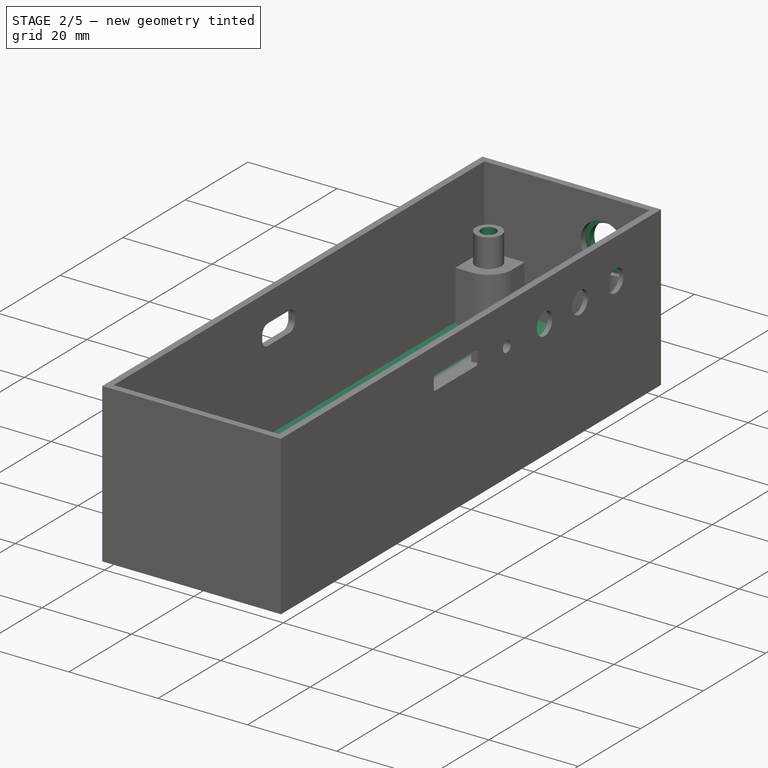
[diagram: stage 2 of 5 — iso view after this stage's code; geometry added in this stage tinted green]
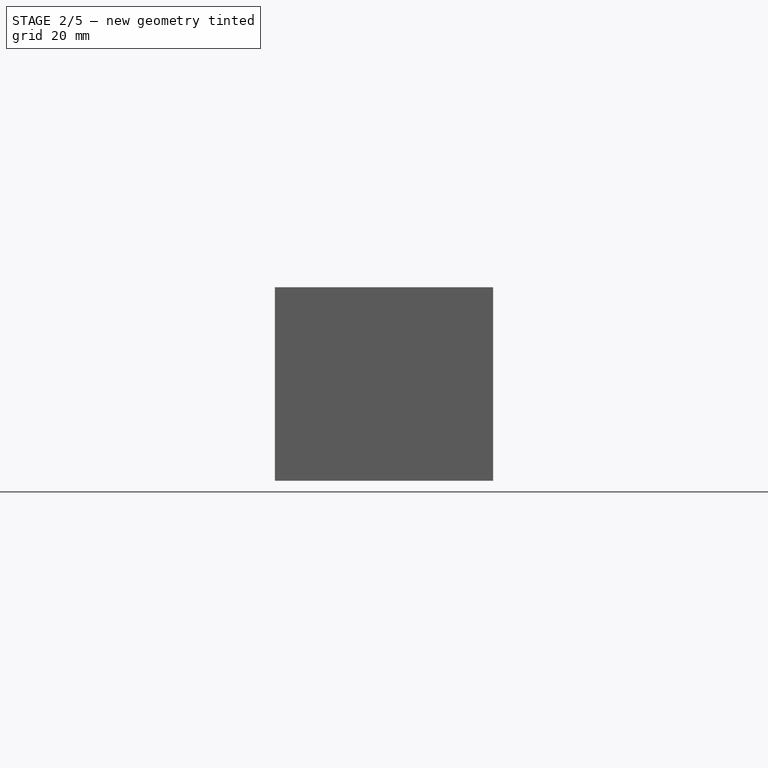
[diagram: stage 2 of 5 — front view after this stage's code; geometry added in this stage tinted green]
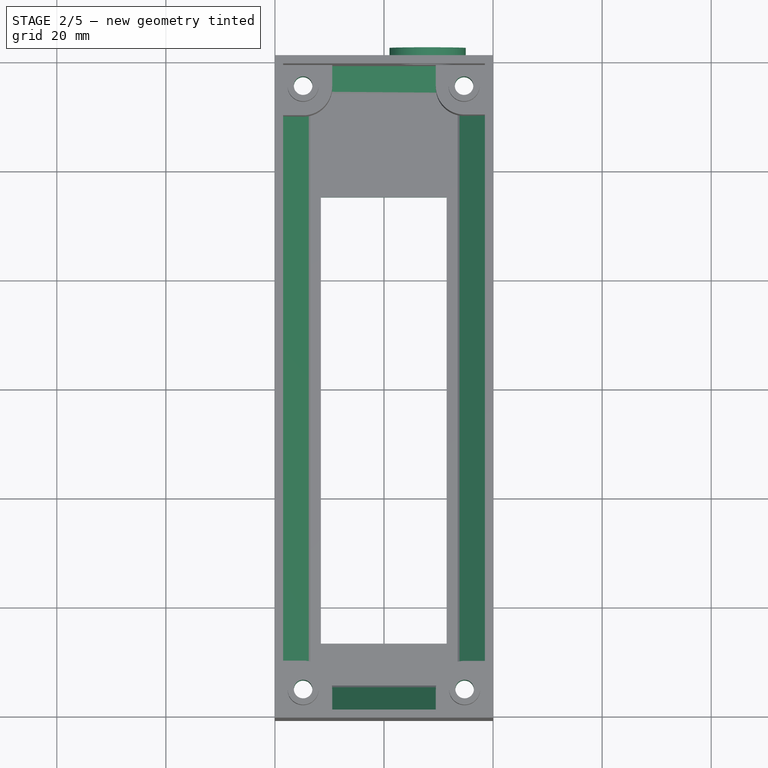
[diagram: stage 2 of 5 — top view after this stage's code; geometry added in this stage tinted green]
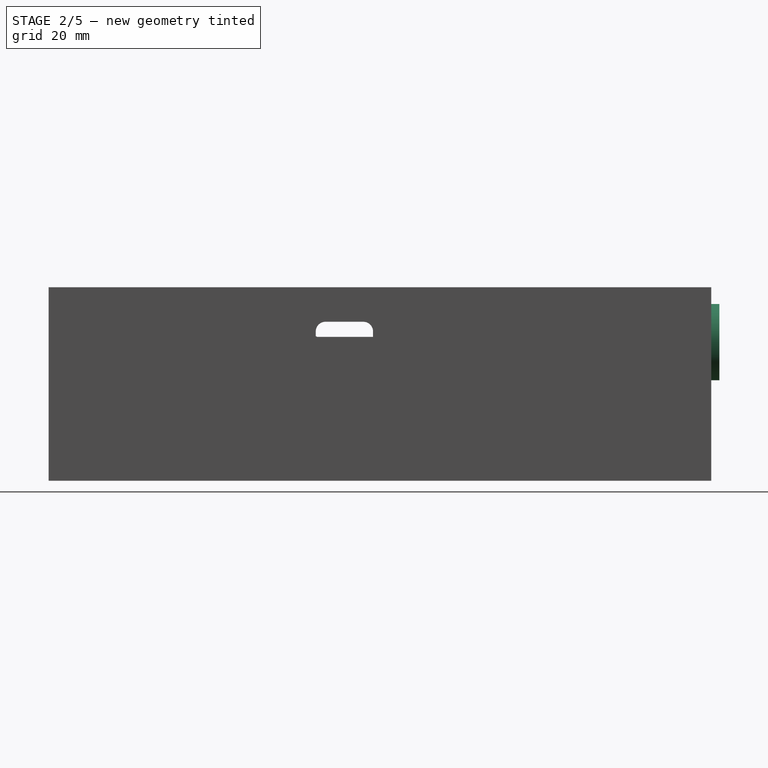
[diagram: stage 2 of 5 — right view after this stage's code; geometry added in this stage tinted green]
FEATURE [Part::SubShapeBinder] Import  label="Import(Open CASCADE STEP translator 6.8 1.1.1)"
  BindCopyOnChange = 0
  BindMode = 0
  ClaimChildren = false
  Context = -> Part207 [Body.Import.]
  EdgeTolerance = 1e-06
  FillStyle = 0
  Fuse = false
  InvalidShape = false
  MakeFace = false
  MergeEdges = true
  OffsetFill = false
  OffsetIntersection = false
  OffsetJoinType = 0
  OffsetOpenResult = false
  Outline = false
  PartialLoad = false
  Relative = true
  SplitEdges = false
  Support = -> [Part206[Part.Solid.]]
  TightBound = false
  TreeRank = 1692
  ValidateShape = false
  _Version = 8
FEATURE [App::Link] Link165  label="R_0603_1608Metric012"
  AutoLinkLabel = true
  AutoPlacement = true
  LinkPlacement = pos=(118.75,-74.15,1.63) rot=(0,0,-1;1.5708rad)
  LinkedObject = -> Part226
  Placement = pos=(118.75,-74.15,1.63) rot=(0,0,-1;1.5708rad)
  SyncGroupVisibility = false
  TreeRank = 1693
  _LinkVersion = 1
FEATURE [App::Link] Link166  label="R_0603_1608Metric013"
  AutoLinkLabel = true
  AutoPlacement = true
  LinkPlacement = pos=(124.025,-97.45,1.63) rot=(0,0,-1;1.5708rad)
  LinkedObject = -> Part226
  Placement = pos=(124.025,-97.45,1.63) rot=(0,0,-1;1.5708rad)
  SyncGroupVisibility = false
  TreeRank = 1694
  _LinkVersion = 1
FEATURE [App::Link] Link167  label="R_0603_1608Metric014"
  AutoLinkLabel = true
  AutoPlacement = true
  LinkPlacement = pos=(125.875,-97.45,1.63) rot=(0,0,1;1.5708rad)
  LinkedObject = -> Part226
  Placement = pos=(125.875,-97.45,1.63) rot=(0,0,1;1.5708rad)
  SyncGroupVisibility = false
  TreeRank = 1695
  _LinkVersion = 1
FEATURE [App::Link] Link168  label="Pogo008"
  AutoLinkLabel = true
  AutoPlacement = true
  LinkPlacement = pos=(126,-106.5,2.13) rot=(-0.707107,0,0.707107;3.14159rad)
  LinkedObject = -> Part230
  Placement = pos=(126,-106.5,2.13) rot=(-0.707107,0,0.707107;3.14159rad)
  SyncGroupVisibility = false
  TreeRank = 1696
  _LinkVersion = 1
FEATURE [App::Link] Link169  label="Pogo009"
  AutoLinkLabel = true
  AutoPlacement = true
  LinkPlacement = pos=(124,-106.5,2.13) rot=(-0.707107,0,0.707107;3.14159rad)
  LinkedObject = -> Part230
  Placement = pos=(124,-106.5,2.13) rot=(-0.707107,0,0.707107;3.14159rad)
  SyncGroupVisibility = false
  TreeRank = 1697
  _LinkVersion = 1
FEATURE [App::Link] Link170  label="Pogo010"
  AutoLinkLabel = true
  AutoPlacement = true
  LinkPlacement = pos=(122,-106.5,2.13) rot=(-0.707107,0,0.707107;3.14159rad)
  LinkedObject = -> Part230
  Placement = pos=(122,-106.5,2.13) rot=(-0.707107,0,0.707107;3.14159rad)
  SyncGroupVisibility = false
  TreeRank = 1698
  _LinkVersion = 1
FEATURE [App::Link] Link171  label="R_0603_1608Metric015"
  AutoLinkLabel = true
  AutoPlacement = true
  LinkPlacement = pos=(122.175,-97.45,1.63) rot=(0,0,-1;1.5708rad)
  LinkedObject = -> Part226
  Placement = pos=(122.175,-97.45,1.63) rot=(0,0,-1;1.5708rad)
  SyncGroupVisibility = false
  TreeRank = 1699
  _LinkVersion = 1
FEATURE [App::Link] Link172  label="R_0603_1608Metric016"
  AutoLinkLabel = true
  AutoPlacement = true
  LinkPlacement = pos=(121.38,-80.315,1.63) rot=(0,0,1;1.5708rad)
  LinkedObject = -> Part226
  Placement = pos=(121.38,-80.315,1.63) rot=(0,0,1;1.5708rad)
  SyncGroupVisibility = false
  TreeRank = 1700
  _LinkVersion = 1
FEATURE [App::Link] Link173  label="D_SMA004"
  AutoLinkLabel = true
  AutoPlacement = true
  LinkPlacement = pos=(123.1,-91.25,1.63) rot=(0,0,-1;1.5708rad)
  LinkedObject = -> Part227
  Placement = pos=(123.1,-91.25,1.63) rot=(0,0,-1;1.5708rad)
  SyncGroupVisibility = false
  TreeRank = 1701
  _LinkVersion = 1
FEATURE [Part::Feature] Solid227  label="SOLID027"
  InvalidShape = false
  TreeRank = 25
  ValidateShape = false
  shape: bbox 1.6 x 0.8 x 0.45 mm, 26 faces (baked)
FEATURE [App::Part] Part226  label="R_0603_1608Metric017"
  ClaimAllChildren = false
  ExportMode = 1
  Group = -> [Solid227]
  Origin = -> Origin227
  Placement = pos=(131.25,-74.15,1.63) rot=(0,0,-1;1.5708rad)
  TreeRank = 1708
  _ExportChildren = -> [Solid227]
  _GroupVersion = 1
FEATURE [Part::Feature] Solid228  label="SOLID028"
  InvalidShape = false
  TreeRank = 28
  ValidateShape = false
  shape: bbox 5 x 2.7 x 2.22 mm, 41 faces (baked)
FEATURE [App::Part] Part227  label="D_SMA005"
  ClaimAllChildren = false
  ExportMode = 1
  Group = -> [Solid228]
  Origin = -> Origin228
  Placement = pos=(126.9,-91.25,1.63) rot=(0,0,-1;1.5708rad)
  TreeRank = 1709
  _ExportChildren = -> [Solid228]
  _GroupVersion = 1
FEATURE [Part::Feature] Solid229  label="SOLID029"
  InvalidShape = false
  TreeRank = 33
  ValidateShape = false
  shape: bbox 2 x 1.25 x 1.25 mm, 28 faces (baked)
FEATURE [App::Part] Part228  label="C_0805_2012Metric002"
  ClaimAllChildren = false
  ExportMode = 1
  Group = -> [Solid229]
  Origin = -> Origin229
  Placement = pos=(129.9,-89.45,1.63) rot=(0,0,-1;1.5708rad)
  TreeRank = 1710
  _ExportChildren = -> [Solid229]
  _GroupVersion = 1
FEATURE [Part::Feature] Solid230  label="SOLID030"
  InvalidShape = false
  TreeRank = 37
  ValidateShape = false
  shape: bbox 1.6 x 0.8 x 1.1 mm, 50 faces (baked)
FEATURE [App::Part] Part229  label="LED_0603_1608Metric002"
  ClaimAllChildren = false
  ExportMode = 1
  Group = -> [Solid230]
  Origin = -> Origin230
  Placement = pos=(127.75,-97.45,1.63) rot=(0,0,1;1.5708rad)
  TreeRank = 1711
  _ExportChildren = -> [Solid230]
  _GroupVersion = 1
FEATURE [Part::Feature] Solid231  label="SOLID031"
  InvalidShape = false
  TreeRank = 40
  ValidateShape = false
  shape: bbox 1.119 x 16.68 x 1.119 mm, 20 faces (baked)
FEATURE [App::Part] Part230  label="Pogo011"
  ClaimAllChildren = false
  ExportMode = 1
  Group = -> [Solid231]
  Origin = -> Origin231
  Placement = pos=(128,-106.5,2.13) rot=(-0.707107,0,0.707107;3.14159rad)
  TreeRank = 1712
  _ExportChildren = -> [Solid231]
  _GroupVersion = 1
FEATURE [Part::Feature] Solid232  label="SOLID032"
  InvalidShape = false
  TreeRank = 48
  ValidateShape = false
  shape: bbox 6 x 4.32 x 0.61 mm, 70 faces (baked)
FEATURE [Part::Feature] Solid233  label="SOLID033"
  InvalidShape = false
  TreeRank = 57
  ValidateShape = false
  shape: bbox 6.9 x 0.99 x 0.3 mm, 122 faces (baked)
FEATURE [Part::Feature] Solid234  label="SOLID034"
  InvalidShape = false
  TreeRank = 58
  ValidateShape = false
  shape: bbox 8.95 x 6.5 x 3.731 mm, 55 faces (baked)
FEATURE [Part::Feature] Solid235  label="SOLID035"
  InvalidShape = false
  TreeRank = 59
  ValidateShape = false
  shape: bbox 8.95 x 7.3 x 4.2 mm, 323 faces (baked)
FEATURE [App::Part] Part231  label="HRO_TYPE-C-31-M-014"
  ClaimAllChildren = false
  ExportMode = 1
  Group = -> [Solid232,Solid233,Solid234,Solid235]
  Origin = -> Origin232
  Placement = pos=(129.5,-66.7,1.63) rot=(0,0,1;3.14159rad)
  TreeRank = 1713
  _ExportChildren = -> [Solid232,Solid233,Solid234,Solid235]
  _GroupVersion = 1
FEATURE [Part::Feature] Solid236  label="SOLID036"
  InvalidShape = false
  TreeRank = 62
  ValidateShape = false
  shape: bbox 1.6 x 0.8 x 0.8 mm, 28 faces (baked)
FEATURE [App::Part] Part232  label="C_0603_1608Metric002"
  ClaimAllChildren = false
  ExportMode = 1
  Group = -> [Solid236]
  Origin = -> Origin233
  Placement = pos=(131.9,-89.225,1.63) rot=(0,0,-1;1.5708rad)
  TreeRank = 1714
  _ExportChildren = -> [Solid236]
  _GroupVersion = 1
FEATURE [Part::Feature] Solid237  label="SOLID037"
  InvalidShape = false
  TreeRank = 72
  ValidateShape = false
  shape: bbox 6 x 9.9 x 1.75 mm, 276 faces (baked)
FEATURE [App::Part] Part233  label="SOIC-16_3.9x9.9mm_P1.27mm002"
  ClaimAllChildren = false
  ExportMode = 1
  Group = -> [Solid237]
  Origin = -> Origin234
  Placement = pos=(127.53,-82.525,1.63) rot=(0,0,-1;1.5708rad)
  TreeRank = 1715
  _ExportChildren = -> [Solid237]
  _GroupVersion = 1
FEATURE [Part::Feature] Solid238  label="pogostick PCB002"
  InvalidShape = false
  TreeRank = 76
  ValidateShape = false
  shape: bbox 35.39 x 47 x 1.58 mm, 227 faces (baked)
FEATURE [App::Part] Part234  label="fw pogostick updater"
  ClaimAllChildren = false
  ExportMode = 1
  Group = -> [Part226,Part227,Link165,Link166,Part228,Link167,Part229,Part230,Link168,Link169,Link170,Link171,Link172,Part231,Part232,Part233,Link173,Solid238]
  Origin = -> Origin235
  Placement = pos=(-125,-126.2,9) rot=(1,0,0;3.14159rad)
  TreeRank = 1716
  _ExportChildren = -> [Part226,Part227,Link165,Link166,Part228,Link167,Part229,Part230,Link168,Link169,Link170,Link171,Link172,Part231,Part232,Part233,Link173,Solid238]
  _GroupVersion = 1
FEATURE [Part::SubShapeBinder] Import001  label="Import001(display_shell)"
  BindCopyOnChange = 0
  BindMode = 0
  ClaimChildren = false
  Context = -> Part207 [Body.Import001.]
  EdgeTolerance = 1e-06
  FillStyle = 0
  Fuse = false
  InvalidShape = false
  MakeFace = false
  MergeEdges = true
  OffsetFill = false
  OffsetIntersection = false
  OffsetJoinType = 0
  OffsetOpenResult = false
  Outline = false
  PartialLoad = false
  Relative = true
  SplitEdges = false
  Support = -> [Part206[Solid202.]]
  TightBound = false
  TreeRank = 1743
  ValidateShape = false
  _Version = 8
FEATURE [Sketcher::SketchObject] Sketch005  label="Sketch_display_notch"
  ArcFitTolerance = 1e-06
  AttachmentSupport = -> [YZ_Plane]
  ExternalBSplineMaxDegree = 5
  ExternalBSplineTolerance = 0.0001
  ExternalGeometry = -> [Import001]
  FullyConstrained = true
  InternalTolerance = 1e-06
  InvalidShape = false
  MakeInternals = false
  MapMode = 5
  Placement = pos=(0,0,0) rot=(0.57735,0.57735,0.57735;2.0944rad)
  Support = -> [YZ_Plane]
  TreeRank = 1742
  ValidateShape = false
  sketch-geometry (8):
    g0: LineSegment StartX=2.20005 StartY=15.785 StartZ=0 EndX=62.9 EndY=15.785 EndZ=0
    g1: LineSegment StartX=58.9 StartY=-0.165 StartZ=0 EndX=51.4 EndY=-0.165 EndZ=0
    g2: LineSegment StartX=51.4 StartY=-0.165 StartZ=0 EndX=51.4 EndY=6.985 EndZ=0
    g3: LineSegment StartX=2.20005 StartY=15.785 StartZ=0 EndX=2.20005 EndY=6.985 EndZ=0
    g4: LineSegment StartX=51.4 StartY=6.985 StartZ=0 EndX=2.20005 EndY=6.985 EndZ=0
    g5: LineSegment StartX=58.9 StartY=9.785 StartZ=0 EndX=58.9 EndY=-0.165 EndZ=0
    g6: LineSegment StartX=58.9 StartY=9.785 StartZ=0 EndX=62.9 EndY=9.785 EndZ=0
    g7: LineSegment StartX=62.9 StartY=9.785 StartZ=0 EndX=62.9 EndY=15.785 EndZ=0
  constraints (24):
    c: Coincident(g5,g1)
    c: Coincident(g1,g2)
    c: Horizontal(g0)
    c: Horizontal(g1)
    c: DistanceY(g1,g-5) = 0.2
    c: DistanceX(g-4,g5) = 0.5
    c: Vertical(g2)
    c: Coincident(g3,g0)
    c: Coincident(g4,g2)
    c: Coincident(g4,g3)
    c: Horizontal(g4)
    c: Vertical(g3)
    c: Vertical(g5)
    c: Coincident(g6,g5)
    c: Horizontal(g6)
    c: Coincident(g7,g6)
    c: Coincident(g7,g0)
    c: Vertical(g7)
    c: Horizontal(g5,g-4)
    c: DistanceX(g2,g-6) = 0.2
    c: DistanceY(g2,g-6) = 0.2
    c: DistanceY(g7,g7) = 6
    c: DistanceX(g6,g6) = 4
    c: DistanceX(g3,g-7) = 0.2
FEATURE [Part::SubShapeBinder] Import002  label="Import002(KEYSTONE-PN1122_STEP_3_)"
  BindCopyOnChange = 0
  BindMode = 0
  ClaimChildren = false
  Context = -> Part207 [Body.Import002.]
  EdgeTolerance = 1e-06
  FillStyle = 0
  Fuse = false
  InvalidShape = false
  MakeFace = false
  MergeEdges = true
  OffsetFill = false
  OffsetIntersection = false
  OffsetJoinType = 0
  OffsetOpenResult = false
  Outline = false
  PartialLoad = false
  Relative = true
  SplitEdges = false
  Support = -> [Part206[Part019.Part018.Part017.Solid024.]]
  TightBound = false
  TreeRank = 1746
  ValidateShape = false
  _Version = 8
FEATURE [Sketcher::SketchObject] Sketch006  label="Sketch_battery_hole"
  ArcFitTolerance = 1e-06
  AttachmentSupport = -> [XY_Plane]
  ExternalBSplineMaxDegree = 5
  ExternalBSplineTolerance = 0.0001
  ExternalGeometry = -> [Import002]
  FullyConstrained = true
  InternalTolerance = 1e-06
  InvalidShape = false
  MakeInternals = false
  MapMode = 5
  Support = -> [XY_Plane]
  TreeRank = 1745
  ValidateShape = false
  sketch-geometry (4):
    g0: LineSegment StartX=11.4815 StartY=35.2503 StartZ=0 EndX=-11.5817 EndY=35.2503 EndZ=0
    g1: LineSegment StartX=-11.5817 StartY=35.2503 StartZ=0 EndX=-11.5817 EndY=-46.5805 EndZ=0
    g2: LineSegment StartX=-11.5817 StartY=-46.5805 StartZ=0 EndX=11.4815 EndY=-46.5805 EndZ=0
    g3: LineSegment StartX=11.4815 StartY=-46.5805 StartZ=0 EndX=11.4815 EndY=35.2503 EndZ=0
  constraints (10):
    c: Coincident(g0,g1)
    c: Coincident(g1,g2)
    c: Coincident(g2,g3)
    c: Coincident(g3,g0)
    c: Horizontal(g0)
    c: Horizontal(g2)
    c: Vertical(g1)
    c: Vertical(g3)
    c: Coincident(g0,g-3)
    c: Coincident(g1,g-4)
FEATURE [PartDesign::SubShapeBinder] Binder007  label="Binder_case_edges"
  BindCopyOnChange = 0
  BindMode = 0
  ClaimChildren = false
  Context = -> Part207 [Body.Pad003.Binder007.]
  EdgeTolerance = 1e-06
  FillStyle = 0
  Fuse = false
  InvalidShape = false
  MakeFace = true
  MergeEdges = true
  OffsetFill = false
  OffsetIntersection = false
  OffsetJoinType = 0
  OffsetOpenResult = false
  Outline = false
  PartialLoad = false
  Relative = true
  SplitEdges = false
  TightBound = false
  TreeRank = 1749
  ValidateShape = false
  _Version = 8
FEATURE [Sketcher::SketchObject] Sketch007
  ArcFitTolerance = 1e-06
  AttachmentSupport = -> [YZ_Plane001]
  ExternalBSplineMaxDegree = 5
  ExternalBSplineTolerance = 0.0001
  FullyConstrained = false
  InternalTolerance = 1e-06
  InvalidShape = false
  MakeInternals = false
  MapMode = 5
  Placement = pos=(0,0,0) rot=(0.57735,0.57735,0.57735;2.0944rad)
  Support = -> [YZ_Plane001]
  TreeRank = 1771
  ValidateShape = false
  sketch-geometry (5):
    g0: LineSegment StartX=2.11033 StartY=6.985 StartZ=0 EndX=8.36103 EndY=6.985 EndZ=0
    g1: LineSegment StartX=-65.2046 StartY=5.60236 StartZ=0 EndX=-23.8893 EndY=5.60236 EndZ=0
    g2: LineSegment StartX=2.11033 StartY=6.985 StartZ=0 EndX=2.11033 EndY=2.33915 EndZ=0
    g3: LineSegment StartX=2.11033 StartY=2.33915 StartZ=0 EndX=-15.9365 EndY=2.33915 EndZ=0
    g4: LineSegment StartX=-23.8893 StartY=5.60236 StartZ=0 EndX=-15.9365 EndY=2.33915 EndZ=0
  constraints (8):
    c: Horizontal(g0)
    c: Horizontal(g1)
    c: Coincident(g2,g0)
    c: Vertical(g2)
    c: Coincident(g3,g2)
    c: Horizontal(g3)
    c: Coincident(g4,g1)
    c: Coincident(g4,g3)
FEATURE [PartDesign::Extrusion] Extrusion
  AddSubType = 0
  AlongSketchNormal = false
  AutoTaperInnerAngle = true
  CheckUpToFaceLimits = true
  ClaimChildren = false
  Direction = (1,-2e-16,3e-16)
  Fit = 0
  FitJoin = 0
  InnerFit = 0
  InnerFitJoin = 0
  InvalidShape = false
  Length = 45
  Length2 = 100
  Linearize = true
  Midplane = true
  NewSolid = false
  Profile = -> Sketch007
  Suppress = false
  TaperInnerAngle = 0
  TaperInnerAngleRev = 0
  TreeRank = 1774
  Type = 0
  ValidateShape = true
  _ProfileBasedVersion = 1
FEATURE [PartDesign::Body] Body001  label="Separation_Plane"
  AutoGroupSolids = false
  ClaimAllChildren = false
  ExportMode = 0
  Group = -> [Sketch007,Extrusion]
  InvalidShape = false
  Origin = -> Origin236
  TreeRank = 1761
  ValidateShape = false
  _ExportChildren = -> [Sketch007,Extrusion]
  _GroupVersion = 1
FEATURE [Part::SubShapeBinder] Import003  label="Import003(SOLID035)"
  BindCopyOnChange = 0
  BindMode = 0
  ClaimChildren = false
  Context = -> Part207 [Body.Import003.]
  EdgeTolerance = 1e-06
  FillStyle = 0
  Fuse = false
  InvalidShape = false
  MakeFace = false
  MergeEdges = true
  OffsetFill = false
  OffsetIntersection = false
  OffsetJoinType = 0
  OffsetOpenResult = false
  Outline = false
  PartialLoad = false
  Relative = true
  SplitEdges = false
  Support = -> [Part234[Part231.Solid235.]]
  TightBound = false
  TreeRank = 1776
  ValidateShape = false
  _Version = 8
FEATURE [Sketcher::SketchObject] Sketch010  label="Sketch_prg_usb"
  ArcFitTolerance = 1e-06
  AttachmentSupport = -> [XZ_Plane]
  ExternalBSplineMaxDegree = 5
  ExternalBSplineTolerance = 0.0001
  ExternalGeometry = -> [Import003]
  FullyConstrained = true
  InternalTolerance = 1e-06
  InvalidShape = false
  MakeInternals = false
  MapMode = 5
  Placement = pos=(0,0,0) rot=(1,0,0;1.5708rad)
  Support = -> [XZ_Plane]
  TreeRank = 1775
  ValidateShape = false
  sketch-geometry (10):
    g0: ArcOfCircle CenterX=-3.45 CenterY=6.07 CenterZ=0 NormalX=0 NormalY=0 NormalZ=1 AngleXU=0 Radius=1.8 StartAngle=1.5708 EndAngle=3.14159
    g1: LineSegment StartX=-3.45 StartY=7.87 StartZ=0 EndX=3.45 EndY=7.87 EndZ=0
    g2: ArcOfCircle CenterX=3.45 CenterY=6.07 CenterZ=0 NormalX=0 NormalY=0 NormalZ=1 AngleXU=0 Radius=1.8 StartAngle=0 EndAngle=1.5708
    g3: LineSegment StartX=5.25 StartY=6.07 StartZ=0 EndX=5.25 EndY=5.51 EndZ=0
    g4: ArcOfCircle CenterX=3.45 CenterY=5.51 CenterZ=0 NormalX=0 NormalY=0 NormalZ=1 AngleXU=0 Radius=1.8 StartAngle=4.71239 EndAngle=6.28319
    g5: LineSegment StartX=3.45 StartY=3.71 StartZ=0 EndX=-3.45 EndY=3.71 EndZ=0
    g6: ArcOfCircle CenterX=-3.45 CenterY=5.51 CenterZ=0 NormalX=0 NormalY=0 NormalZ=1 AngleXU=0 Radius=1.8 StartAngle=3.14159 EndAngle=4.71239
    g7: LineSegment StartX=-5.25 StartY=5.51 StartZ=0 EndX=-5.25 EndY=6.07 EndZ=0
    g8: GeomPoint [constr] X=-5.25 Y=7.87 Z=0
    g9: GeomPoint [constr] X=5.25 Y=3.71 Z=0
  constraints (23):
    c: Tangent(g0,g1) = 1.5708
    c: Tangent(g1,g2) = 1.5708
    c: Tangent(g2,g3) = 1.5708
    c: Tangent(g3,g4) = 1.5708
    c: Tangent(g4,g5) = 1.5708
    c: Tangent(g5,g6) = 1.5708
    c: Tangent(g6,g7) = 1.5708
    c: Tangent(g7,g0) = 1.5708
    c: Horizontal(g1)
    c: Horizontal(g5)
    c: Vertical(g3)
    c: Vertical(g7)
    c: Equal(g2,g4)
    c: Equal(g4,g6)
    c: PointOnObject(g8,g1)
    c: PointOnObject(g8,g7)
    c: PointOnObject(g9,g3)
    c: PointOnObject(g9,g5)
    c: DistanceY(g-3,g0) = 0.5
    c: DistanceY(g4,g-4) = 0.5
    c: Radius(g0) = 1.8
    c: DistanceX(g0,g2) = 10.5
    c: Symmetric(g0,g2,g-2)
FEATURE [PartDesign::SubShapeBinder] Binder008  label="Binder008(pogostick PCB002)..."
  BindCopyOnChange = 0
  BindMode = 0
  ClaimChildren = false
  Context = -> Part207 [Body.Binder008.]
  EdgeTolerance = 1e-06
  FillStyle = 0
  Fuse = false
  InvalidShape = false
  MakeFace = true
  MergeEdges = true
  OffsetFill = false
  OffsetIntersection = false
  OffsetJoinType = 0
  OffsetOpenResult = false
  Outline = false
  PartialLoad = false
  Relative = true
  SplitEdges = false
  Support = -> [Part234[Solid238.Edge232,Solid238.Edge149]]
  TightBound = false
  TreeRank = 1778
  ValidateShape = false
  _Version = 8
FEATURE [PartDesign::SubShapeBinder] Import004  label="Import004(Extrusion)"
  BindCopyOnChange = 0
  BindMode = 0
  ClaimChildren = false
  Context = -> Part207 [Body.Import004.]
  EdgeTolerance = 1e-06
  FillStyle = 0
  Fuse = false
  InvalidShape = false
  MakeFace = false
  MergeEdges = true
  OffsetFill = false
  OffsetIntersection = false
  OffsetJoinType = 0
  OffsetOpenResult = false
  Outline = false
  PartialLoad = false
  Relative = true
  SplitEdges = false
  Support = -> [Body001[Extrusion.]]
  TightBound = false
  TreeRank = 1785
  ValidateShape = false
  _Version = 8
FEATURE [Sketcher::SketchObject] Sketch011  label="Sketch_sma_cap"
  ArcFitTolerance = 1e-06
  AttachmentSupport = -> [Pocket002]
  ExternalBSplineMaxDegree = 5
  ExternalBSplineTolerance = 0.0001
  FullyConstrained = true
  InternalTolerance = 1e-06
  InvalidShape = false
  MakeInternals = false
  MapMode = 5
  Placement = pos=(0,60.75,0) rot=(0,0.707107,0.707107;3.14159rad)
  Support = -> [Pocket002]
  TreeRank = 1790
  ValidateShape = false
  sketch-geometry (1):
    g0: Circle CenterX=-8 CenterY=0.43 CenterZ=0 NormalX=0 NormalY=0 NormalZ=1 AngleXU=0 Radius=7
  constraints (3):
    c: Diameter(g0) = 14
    c: DistanceX(g0,g-1) = 8
    c: DistanceY(g-1,g0) = 0.43
FEATURE [PartDesign::Pad] Pad005  label="Pad_sma_cap"
  AddSubType = 0
  AlongSketchNormal = false
  AutoTaperInnerAngle = true
  BaseFeature = -> Pocket002
  CheckUpToFaceLimits = true
  ClaimChildren = false
  Direction = (0,1,-2e-16)
  Fit = 0
  FitJoin = 0
  InnerFit = 0
  InnerFitJoin = 0
  InvalidShape = false
  Length = 1.5
  Length2 = 100
  Linearize = true
  NewSolid = false
  Profile = -> Sketch011
  Suppress = false
  TaperInnerAngle = 0
  TaperInnerAngleRev = 0
  TreeRank = 1791
  Type = 0
  ValidateShape = true
  _ProfileBasedVersion = 1
FEATURE [PartDesign::Hole] Hole002  label="Hole_sma_cap"
  AddSubType = 1
  BaseFeature = -> Pad005
  ClaimChildren = false
  CustomThreadClearance = 0
  Depth = 3
  DepthType = 0
  Diameter = 8
  DrillForDepth = false
  DrillPoint = 1
  DrillPointAngle = 118
  Fit = 0
  FitJoin = 0
  HoleCutCountersinkAngle = 90
  HoleCutCustomValues = false
  HoleCutDepth = 0
  HoleCutDiameter = 8.1
  HoleCutType = 0
  InnerFit = 0
  InnerFitJoin = 0
  InvalidShape = false
  Linearize = true
  ModelThread = false
  NewSolid = false
  Profile = -> Pad005 [Face62]
  Suppress = false
  Tapered = false
  TaperedAngle = 90
  ThreadClass = 0
  ThreadDepth = 3
  ThreadDepthType = 0
  ThreadDirection = 0
  ThreadFit = 0
  ThreadSize = 0
  ThreadType = 0
  Threaded = false
  TreeRank = 1792
  UseCustomThreadClearance = false
  ValidateShape = true
  _ProfileBasedVersion = 1
FEATURE [PartDesign::Pocket] Pocket004  label="Pocket_battery_hole"
  AddSubType = 1
  AutoTaperInnerAngle = true
  BaseFeature = -> Hole002
  CheckUpToFaceLimits = true
  ClaimChildren = false
  Fit = 0
  FitJoin = 0
  InnerFit = 0
  InnerFitJoin = 0
  InvalidShape = false
  Length = 5
  Length2 = 100
  Linearize = true
  NewSolid = false
  Profile = -> Sketch006
  Suppress = false
  TaperInnerAngle = 0
  TaperInnerAngleRev = 0
  TreeRank = 1747
  Type = 1
  ValidateShape = true
  _ProfileBasedVersion = 1
  _Version = 1
FEATURE [Sketcher::SketchObject] Sketch009  label="Sketch_nuts"
  ArcFitTolerance = 1e-06
  AttachmentSupport = -> [Pocket004]
  ExternalBSplineMaxDegree = 5
  ExternalBSplineTolerance = 0.0001
  ExternalGeometry = -> [Pocket004]
  FullyConstrained = true
  InternalTolerance = 1e-06
  InvalidShape = false
  MakeInternals = false
  MapMode = 45
  Placement = pos=(-0.05025,0.031,-25) rot=(0,0,1;0.000491rad)
  Support = -> [Pocket004]
  TreeRank = 1772
  ValidateShape = false
  expr: Constraints[15] = .Constraints.nut_size
  expr: Constraints[49] = .Constraints.nut_size
  expr: Constraints[66] = .Constraints.nut_size
  sketch-geometry (24):
    g0: LineSegment StartX=12.9697 StartY=58.4268 StartZ=0 EndX=16.5492 EndY=58.4268 EndZ=0
    g1: LineSegment StartX=16.5492 StartY=58.4268 StartZ=0 EndX=18.339 EndY=55.3268 EndZ=0
    g2: LineSegment StartX=18.339 StartY=55.3268 StartZ=0 EndX=16.5492 EndY=52.2268 EndZ=0
    g3: LineSegment StartX=16.5492 StartY=52.2268 StartZ=0 EndX=12.9697 EndY=52.2268 EndZ=0
    g4: LineSegment StartX=12.9697 StartY=52.2268 StartZ=0 EndX=11.1799 EndY=55.3268 EndZ=0
    g5: LineSegment StartX=11.1799 StartY=55.3268 StartZ=0 EndX=12.9697 EndY=58.4268 EndZ=0
    g6: LineSegment StartX=-16.5453 StartY=58.4413 StartZ=0 EndX=-12.9658 EndY=58.4413 EndZ=0
    g7: LineSegment StartX=-12.9658 StartY=58.4413 StartZ=0 EndX=-11.176 EndY=55.3413 EndZ=0
    g8: LineSegment StartX=-11.176 StartY=55.3413 StartZ=0 EndX=-12.9658 EndY=52.2413 EndZ=0
    g9: LineSegment StartX=-12.9658 StartY=52.2413 StartZ=0 EndX=-16.5453 EndY=52.2413 EndZ=0
    g10: LineSegment StartX=-16.5453 StartY=52.2413 StartZ=0 EndX=-18.3351 EndY=55.3413 EndZ=0
    g11: LineSegment StartX=-18.3351 StartY=55.3413 StartZ=0 EndX=-16.5453 EndY=58.4413 EndZ=0
    g12: LineSegment StartX=-16.5997 StartY=-52.2267 StartZ=0 EndX=-13.0202 EndY=-52.2267 EndZ=0
    g13: LineSegment StartX=-13.0202 StartY=-52.2267 StartZ=0 EndX=-11.2304 EndY=-55.3267 EndZ=0
    g14: LineSegment StartX=-11.2304 StartY=-55.3267 StartZ=0 EndX=-13.0202 EndY=-58.4267 EndZ=0
    g15: LineSegment StartX=-13.0202 StartY=-58.4267 StartZ=0 EndX=-16.5997 EndY=-58.4267 EndZ=0
    g16: LineSegment StartX=-16.5997 StartY=-58.4267 StartZ=0 EndX=-18.3895 EndY=-55.3267 EndZ=0
    g17: LineSegment StartX=-18.3895 StartY=-55.3267 StartZ=0 EndX=-16.5997 EndY=-52.2267 EndZ=0
    g18: LineSegment StartX=13.0163 StartY=-52.2413 StartZ=0 EndX=16.5958 EndY=-52.2413 EndZ=0
    g19: LineSegment StartX=16.5958 StartY=-52.2413 StartZ=0 EndX=18.3856 EndY=-55.3413 EndZ=0
    g20: LineSegment StartX=18.3856 StartY=-55.3413 StartZ=0 EndX=16.5958 EndY=-58.4413 EndZ=0
    g21: LineSegment StartX=16.5958 StartY=-58.4413 StartZ=0 EndX=13.0163 EndY=-58.4413 EndZ=0
    g22: LineSegment StartX=13.0163 StartY=-58.4413 StartZ=0 EndX=11.2265 EndY=-55.3413 EndZ=0
    g23: LineSegment StartX=11.2265 StartY=-55.3413 StartZ=0 EndX=13.0163 EndY=-52.2413 EndZ=0
  constraints (68):
    c: Horizontal(g0)
    c: Coincident(g1,g0)
    c: Coincident(g2,g1)
    c: Coincident(g3,g2)
    c: Angle(g0,g1) = 2.0944
    c: Angle(g1,g2) = 2.0944
    c: Angle(g2,g3) = 2.0944
    c: Coincident(g4,g3)
    c: Coincident(g5,g4)
    c: Coincident(g5,g0)
    c: Angle(g3,g4) = 2.0944
    c: Angle(g4,g5) = 2.0944
    c: Equal(g0,g1)
    c: Equal(g1,g2)
    c: Equal(g2,g3)
    c: DistanceY(g2,g0) = 6.2
    c: Horizontal(g6)
    c: Coincident(g7,g6)
    c: Coincident(g8,g7)
    c: Coincident(g9,g8)
    c: Angle(g6,g7) = 2.0944
    c: Angle(g7,g8) = 2.0944
    c: Angle(g8,g9) = 2.0944
    c: Coincident(g10,g9)
    c: Coincident(g11,g10)
    c: Coincident(g11,g6)
    c: Angle(g9,g10) = 2.0944
    c: Angle(g10,g11) = 2.0944
    c: Equal(g6,g7)
    c: Equal(g7,g8)
    c: Equal(g8,g9)
    c: DistanceY(g8,g6) = 6.2  'nut_size'
    c: Symmetric(g10,g7,g-3)
    c: Symmetric(g4,g1,g-4)
    c: Horizontal(g12)
    c: Coincident(g13,g12)
    c: Coincident(g14,g13)
    c: Coincident(g15,g14)
    c: Angle(g12,g13) = 2.0944
    c: Angle(g13,g14) = 2.0944
    c: Angle(g14,g15) = 2.0944
    c: Coincident(g16,g15)
    c: Coincident(g17,g16)
    c: Coincident(g17,g12)
    c: Angle(g15,g16) = 2.0944
    c: Angle(g16,g17) = 2.0944
    c: Equal(g12,g13)
    c: Equal(g13,g14)
    c: Equal(g14,g15)
    c: DistanceY(g14,g12) = 6.2
    c: Symmetric(g16,g13,g-6)
    c: Horizontal(g18)
    c: Coincident(g19,g18)
    c: Coincident(g20,g19)
    c: Coincident(g21,g20)
    c: Angle(g18,g19) = 2.0944
    c: Angle(g19,g20) = 2.0944
    c: Angle(g20,g21) = 2.0944
    c: Coincident(g22,g21)
    c: Coincident(g23,g22)
    c: Coincident(g23,g18)
    c: Angle(g21,g22) = 2.0944
    c: Angle(g22,g23) = 2.0944
    c: Equal(g18,g19)
    c: Equal(g19,g20)
    c: Equal(g20,g21)
    c: DistanceY(g20,g18) = 6.2
    c: Symmetric(g22,g19,g-5)
FEATURE [Sketcher::SketchObject] Sketch012  label="Sketch_button_track"
  ArcFitTolerance = 1e-06
  AttachmentSupport = -> [Pocket001]
  ExternalBSplineMaxDegree = 5
  ExternalBSplineTolerance = 0.0001
  ExternalGeometry = -> [Pocket001]
  FullyConstrained = true
  InternalTolerance = 1e-06
  InvalidShape = false
  MakeInternals = false
  MapMode = 5
  Placement = pos=(18.5,0,0) rot=(0.57735,-0.57735,-0.57735;2.0944rad)
  Support = -> [Pocket001]
  TreeRank = 1793
  ValidateShape = false
  sketch-geometry (8):
    g0: LineSegment StartX=-42.8277 StartY=2.35 StartZ=0 EndX=-38.2986 EndY=2.35 EndZ=0
    g1: LineSegment StartX=-26.9321 StartY=0.85 StartZ=0 EndX=-31.4612 EndY=0.85 EndZ=0
    g2: ArcOfCircle CenterX=-46.2464 CenterY=1.6 CenterZ=0 NormalX=0 NormalY=0 NormalZ=1 AngleXU=0 Radius=3.5 StartAngle=0.21596 EndAngle=6.06722
    g3: ArcOfCircle CenterX=-34.8799 CenterY=1.6 CenterZ=0 NormalX=0 NormalY=0 NormalZ=1 AngleXU=0 Radius=3.5 StartAngle=3.35755 EndAngle=6.06722
    g4: ArcOfCircle CenterX=-23.5134 CenterY=1.6 CenterZ=0 NormalX=0 NormalY=0 NormalZ=1 AngleXU=0 Radius=3.5 StartAngle=3.35755 EndAngle=9.20882
    g5: LineSegment StartX=-31.4612 StartY=2.35 StartZ=0 EndX=-26.9321 EndY=2.35 EndZ=0
    g6: LineSegment StartX=-38.2986 StartY=0.85 StartZ=0 EndX=-42.8277 EndY=0.85 EndZ=0
    g7: ArcOfCircle CenterX=-34.8799 CenterY=1.6 CenterZ=0 NormalX=0 NormalY=0 NormalZ=1 AngleXU=0 Radius=3.5 StartAngle=0.21596 EndAngle=2.92563
  constraints (26):
    c: Horizontal(g0)
    c: Horizontal(g1)
    c: DistanceX(g-3,g-4) = 11.3665
    c: DistanceX(g-4,g-5) = 11.3665
    c: Coincident(g2,g-3)
    c: Radius(g2) = 3.5
    c: Coincident(g3,g-4)
    c: Coincident(g-5,g4)
    c: Equal(g2,g3)
    c: Equal(g2,g4)
    c: Coincident(g2,g6)
    c: Coincident(g2,g0)
    c: Coincident(g0,g7)
    c: Coincident(g6,g3)
    c: Equal(g3,g7)
    c: Coincident(g3,g1)
    c: Coincident(g7,g5)
    c: Coincident(g3,g7)
    c: Coincident(g5,g4)
    c: Coincident(g1,g4)
    c: DistanceY(g2,g0) = 1.5
    c: DistanceY(g1,g5) = 1.5
    c: Horizontal(g5)
    c: Horizontal(g6)
    c: Horizontal(g5,g0)
    c: DistanceY(g4,g4) = 0.75
FEATURE [PartDesign::Pocket] Pocket007  label="Pocket_button_track"
  AddSubType = 1
  AutoTaperInnerAngle = true
  BaseFeature = -> Pocket004
  CheckUpToFaceLimits = true
  ClaimChildren = false
  Fit = 0
  FitJoin = 0
  InnerFit = 0
  InnerFitJoin = 0
  InvalidShape = false
  Length = 0.5
  Length2 = 100
  Linearize = true
  NewSolid = false
  Profile = -> Sketch012
  Suppress = false
  TaperInnerAngle = 0
  TaperInnerAngleRev = 0
  TreeRank = 1794
  Type = 0
  ValidateShape = true
  _ProfileBasedVersion = 1
  _Version = 1
FEATURE [PartDesign::Hole] Hole  label="Hole_fasteners"
  AddSubType = 1
  BaseFeature = -> Pocket007
  ClaimChildren = false
  CustomThreadClearance = 0
  Depth = 25
  DepthType = 0
  Diameter = 3.4
  DrillForDepth = false
  DrillPoint = 1
  DrillPointAngle = 118
  Fit = 0
  FitJoin = 0
  HoleCutCountersinkAngle = 90
  HoleCutCustomValues = false
  HoleCutDepth = 0
  HoleCutDiameter = 6.1
  HoleCutType = 0
  InnerFit = 0
  InnerFitJoin = 0
  InvalidShape = false
  Linearize = true
  ModelThread = false
  NewSolid = false
  Profile = -> Pocket004 [Edge163,Edge162,Edge160,Edge161]
  Reversed = true
  Suppress = false
  Tapered = false
  TaperedAngle = 90
  ThreadClass = 0
  ThreadDepth = 25
  ThreadDepthType = 0
  ThreadDirection = 0
  ThreadFit = 0
  ThreadSize = 9
  ThreadType = 1
  Threaded = false
  TreeRank = 1748
  UseCustomThreadClearance = false
  ValidateShape = true
  _ProfileBasedVersion = 1
FEATURE [PartDesign::Pocket] Pocket005  label="Pocket_nuts"
  AddSubType = 1
  AutoTaperInnerAngle = true
  BaseFeature = -> Hole
  CheckUpToFaceLimits = true
  ClaimChildren = false
  Fit = 0
  FitJoin = 0
  InnerFit = 0
  InnerFitJoin = 0
  InvalidShape = false
  Length = 14
  Length2 = 100
  Linearize = true
  NewSolid = false
  Profile = -> Sketch009
  Reversed = true
  Suppress = false
  TaperInnerAngle = 0
  TaperInnerAngleRev = 0
  TreeRank = 1773
  Type = 0
  ValidateShape = true
  _ProfileBasedVersion = 1
  _Version = 1
FEATURE [PartDesign::Body] Body003  label="Body_top_case"
  AutoGroupSolids = false
  BaseFeature = -> BaseFeature001
  ClaimAllChildren = false
  ExportMode = 0
  Group = -> [BaseFeature001,Sketch013,Pad006,MirroredSketch,Sketch014,Pad007,Pad008,Sketch015,Pad009,Chamfer002,Sketch019,Pocket010,Sketch020,Pocket011]
  InvalidShape = false
  Origin = -> Origin238
  Tip = -> Pocket011
  TreeRank = 1815
  ValidateShape = false
  _ExportChildren = -> [BaseFeature001,Pad006,Pad007,Pad008,Pad009,Chamfer002,Pocket010,Pocket011]
  _GroupVersion = 1
FEATURE [Sketcher::SketchObject] Sketch021  label="Sketch_rounded_bottom"
  ArcFitTolerance = 1e-06
  AttachmentSupport = -> [XZ_Plane]
  ExternalBSplineMaxDegree = 5
  ExternalBSplineTolerance = 0.0001
  ExternalGeometry = -> [Pocket005]
  FullyConstrained = true
  InternalTolerance = 1e-06
  InvalidShape = false
  MakeInternals = false
  MapMode = 5
  Placement = pos=(0,0,0) rot=(1,0,0;1.5708rad)
  Support = -> [XZ_Plane]
  TreeRank = 2731
  ValidateShape = false
  sketch-geometry (8):
    g0: ArcOfCircle CenterX=12 CenterY=-17 CenterZ=0 NormalX=0 NormalY=0 NormalZ=1 AngleXU=0 Radius=8 StartAngle=4.71239 EndAngle=6.28319
    g1: LineSegment StartX=12 StartY=-25 StartZ=0 EndX=-12 EndY=-25 EndZ=0
    g2: ArcOfCircle CenterX=-12 CenterY=-17 CenterZ=0 NormalX=0 NormalY=0 NormalZ=1 AngleXU=0 Radius=8 StartAngle=3.14159 EndAngle=4.71239
    g3: LineSegment StartX=-22 StartY=-17 StartZ=0 EndX=-22 EndY=-27 EndZ=0
    g4: LineSegment StartX=-22 StartY=-27 StartZ=0 EndX=22 EndY=-27 EndZ=0
    g5: LineSegment StartX=22 StartY=-17 StartZ=0 EndX=22 EndY=-27 EndZ=0
    g6: LineSegment StartX=-20 StartY=-17 StartZ=0 EndX=-22 EndY=-17 EndZ=0
    g7: LineSegment StartX=20 StartY=-17 StartZ=0 EndX=22 EndY=-17 EndZ=0
  constraints (22):
    c: Tangent(g0,g1) = 1.5708
    c: Tangent(g1,g2) = 1.5708
    c: Equal(g0,g2)
    c: Vertical(g5)
    c: Vertical(g3)
    c: Horizontal(g1)
    c: Horizontal(g4)
    c: Coincident(g4,g3)
    c: Coincident(g6,g3)
    c: Coincident(g2,g6)
    c: Horizontal(g6)
    c: Coincident(g5,g7)
    c: Horizontal(g7)
    c: Coincident(g0,g7)
    c: Coincident(g4,g5)
    c: Tangent(g2,g-3) = -1.5708
    c: Tangent(g0,g-4) = 1.5708
    c: PointOnObject(g1,g-5)
    c: DistanceX(g1,g1) = 24
    c: DistanceX(g6,g6) = 2
    c: DistanceX(g7,g7) = 2
    c: DistanceY(g3,g3) = 10
FEATURE [PartDesign::Chamfer] Chamfer004  label="Chamfer_inner_bottom"
  AddSubType = 0
  Angle = 45
  Base = -> Pocket005 [Edge42,Edge49,Edge19,Edge5]
  BaseFeature = -> Pocket005
  ChamferType = 0
  FlipDirection = false
  InvalidShape = false
  NewSolid = false
  Size = 5
  Size2 = 1
  SupportTransform = false
  Suppress = false
  TreeRank = 2733
  ValidateShape = true
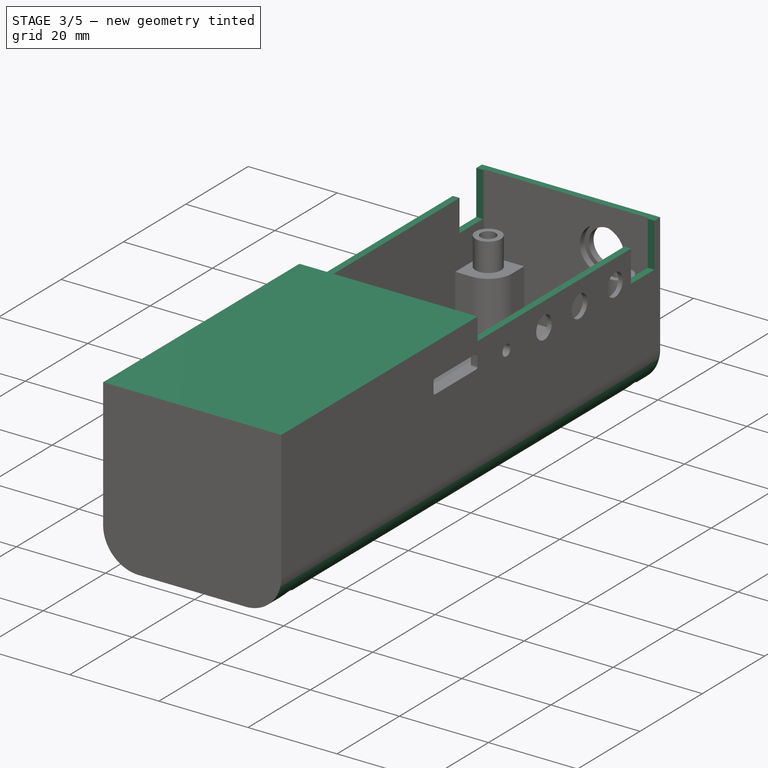
[diagram: stage 3 of 5 — iso view after this stage's code; geometry added in this stage tinted green]
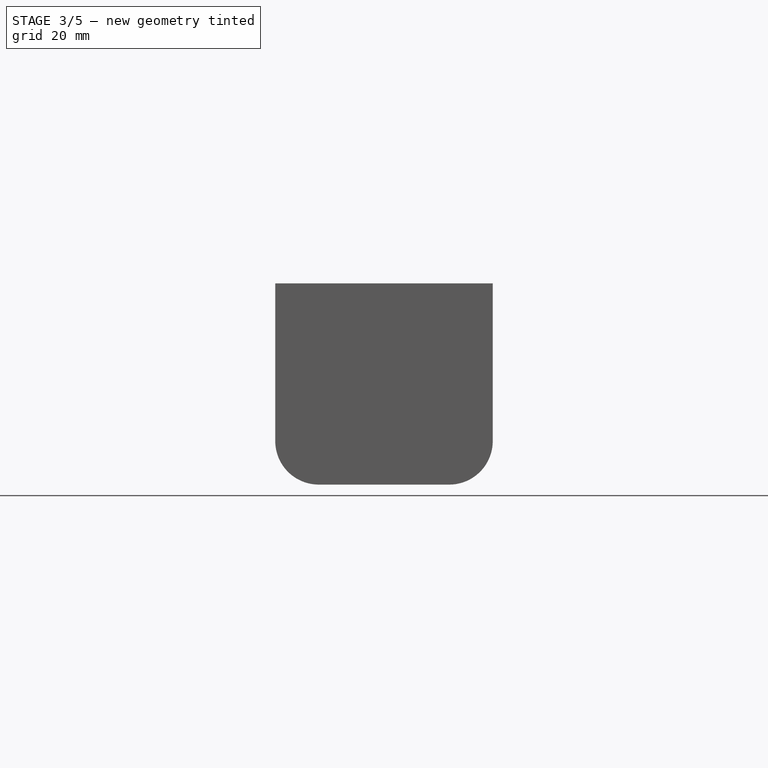
[diagram: stage 3 of 5 — front view after this stage's code; geometry added in this stage tinted green]
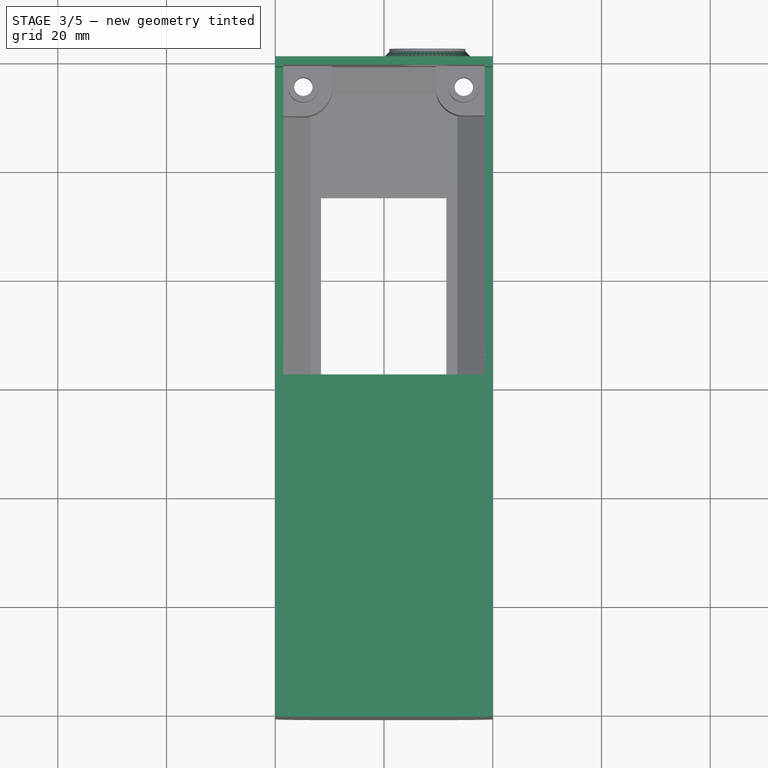
[diagram: stage 3 of 5 — top view after this stage's code; geometry added in this stage tinted green]
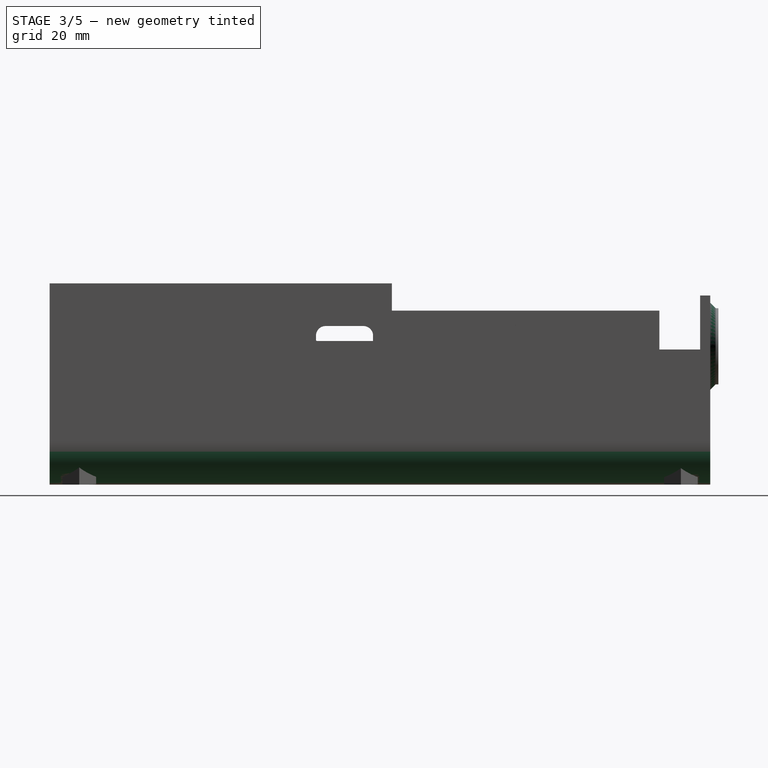
[diagram: stage 3 of 5 — right view after this stage's code; geometry added in this stage tinted green]
FEATURE [PartDesign::Pocket] Pocket012  label="Pocket_rounded_bottom"
  AddSubType = 1
  AutoTaperInnerAngle = true
  BaseFeature = -> Chamfer004
  CheckUpToFaceLimits = true
  ClaimChildren = false
  Fit = 0
  FitJoin = 0
  InnerFit = 0
  InnerFitJoin = 0
  InvalidShape = false
  Length = 100
  Length2 = 100
  Linearize = true
  NewSolid = false
  Profile = -> Sketch021
  Suppress = false
  TaperInnerAngle = 0
  TaperInnerAngleRev = 0
  TreeRank = 2732
  Type = 4
  ValidateShape = true
  _ProfileBasedVersion = 1
  _Version = 1
FEATURE [PartDesign::Pad] Pad003  label="Pad_case_lid"
  AddSubType = 0
  AlongSketchNormal = false
  AutoTaperInnerAngle = true
  BaseFeature = -> Pocket012
  CheckUpToFaceLimits = true
  ClaimChildren = false
  Direction = (0,0,1)
  Fit = 0
  FitJoin = 0
  InnerFit = 0
  InnerFitJoin = 0
  InvalidShape = false
  Length = 1.5
  Length2 = 100
  Linearize = true
  NewSolid = false
  Profile = -> Binder007
  Refine = true
  Suppress = false
  TaperInnerAngle = 0
  TaperInnerAngleRev = 0
  TreeRank = 1750
  Type = 0
  ValidateShape = true
  _ProfileBasedVersion = 1
FEATURE [PartDesign::Pocket] Pocket003  label="Pocket_display_notch"
  AddSubType = 1
  AutoTaperInnerAngle = true
  BaseFeature = -> Pad003
  CheckUpToFaceLimits = true
  ClaimChildren = false
  Fit = 0
  FitJoin = 0
  InnerFit = 0
  InnerFitJoin = 0
  InvalidShape = false
  Length = 5
  Length2 = 100
  Linearize = true
  Midplane = true
  NewSolid = false
  Profile = -> Sketch005
  Suppress = false
  TaperInnerAngle = 0
  TaperInnerAngleRev = 0
  TreeRank = 1744
  Type = 1
  ValidateShape = true
  _ProfileBasedVersion = 1
  _Version = 1
FEATURE [PartDesign::Pocket] Pocket006  label="Pocket_prg_usb"
  AddSubType = 1
  AutoTaperInnerAngle = true
  BaseFeature = -> Pocket003
  CheckUpToFaceLimits = true
  ClaimChildren = false
  Fit = 0
  FitJoin = 0
  InnerFit = 0
  InnerFitJoin = 0
  InvalidShape = false
  Length = 5
  Length2 = 100
  Linearize = true
  NewSolid = false
  Profile = -> Sketch010
  Reversed = true
  Suppress = true
  TaperInnerAngle = 0
  TaperInnerAngleRev = 0
  TreeRank = 1777
  Type = 1
  ValidateShape = true
  _ProfileBasedVersion = 1
  _Version = 1
FEATURE [App::Part] Part207  label="LILYGO-T-TWR-Plus-case"
  ClaimAllChildren = false
  ExportMode = 1
  Group = -> [Part206,Part234,Body,Body001,Body002,Body003]
  Origin = -> Origin207
  TreeRank = 1604
  _ExportChildren = -> [Part206,Part234,Body,Body001,Body002,Body003]
  _GroupVersion = 1
FEATURE [PartDesign::Body] Body  label="Master_Case"
  AutoGroupSolids = false
  ClaimAllChildren = false
  ExportMode = 0
  Group = -> [Binder,Binder001,Sketch,Pad,Thickness,Binder002,Sketch001,Pad001,Pad002,Binder003,Binder005,Sketch002,Binder006,Sketch021,Pocket,Sketch003,Pocket001,Sketch004,Sketch012,Pocket002,Import,Sketch005,Import001,Sketch006,Import002,Sketch011,Pad005,Hole002,Pocket004,Sketch009,Pocket007,Hole,Pocket005,Chamfer004,Pocket012,Pad003,Pocket003,Binder007,Sketch010,Import003,Pocket006,Binder008,Pad004,Hole001,+7 more]
  InvalidShape = false
  Origin = -> Origin208
  Tip = -> Pad003
  TreeRank = 1614
  ValidateShape = false
  _ExportChildren = -> [Binder,Binder001,Pad,Thickness,Pad001,Pad002,Binder003,Binder005,Binder006,Pocket,Pocket001,Pocket002,Import,Import001,Import002,Pad005,Hole002,Pocket004,Pocket007,Hole,Pocket005,Chamfer004,Pocket012,Pad003,Pocket003,Import003,Pocket006,Pad004,Hole001,Fillet,Chamfer,Chamfer001,Split]
  _GroupVersion = 1
FEATURE [PartDesign::Split] Split
  BaseFeature = -> Chamfer001
  Fragment = false
  InvalidShape = false
  Mode = 0
  NewSolid = false
  Solids = -> [Split_i0,Split_i1]
  Suppress = false
  Tolerance = 0
  Tools = -> [Import004]
  TreeRank = 1784
  ValidateShape = true
  _Version = 1
FEATURE [PartDesign::Solid] Split_i0
  Active = true
  InvalidShape = false
  Parent = -> Split
  TreeRank = 1788
  ValidateShape = false
FEATURE [PartDesign::Solid] Split_i1
  Active = true
  InvalidShape = false
  Parent = -> Split
  TreeRank = 1789
  ValidateShape = false
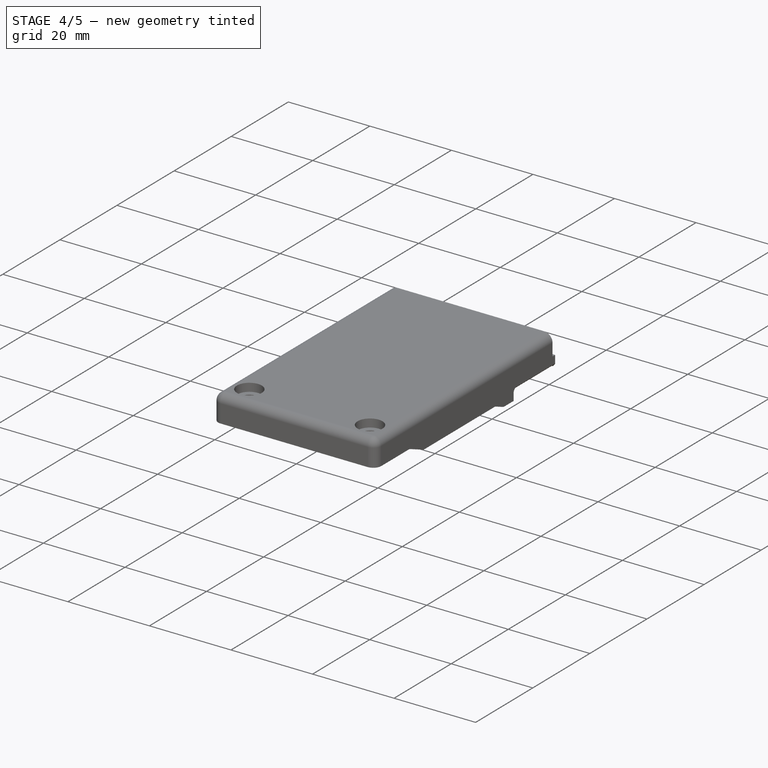
[diagram: stage 4 of 5 — iso view after this stage's code; geometry added in this stage tinted green]
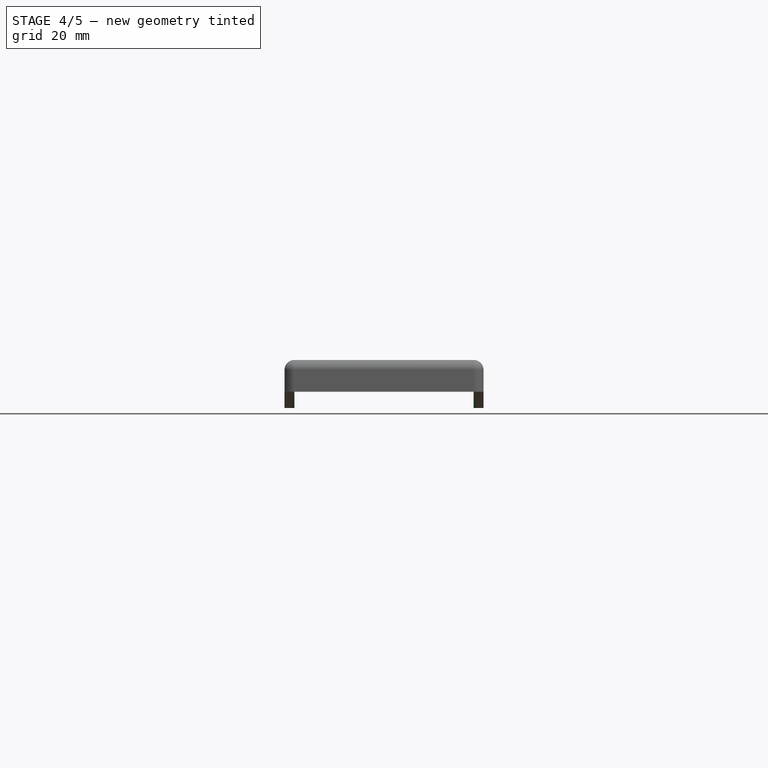
[diagram: stage 4 of 5 — front view after this stage's code; geometry added in this stage tinted green]
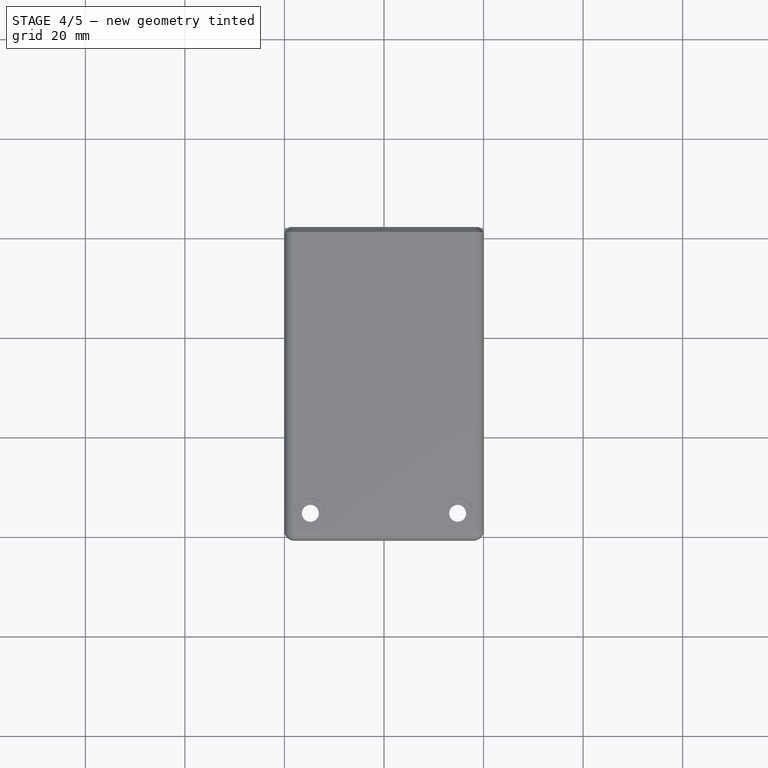
[diagram: stage 4 of 5 — top view after this stage's code; geometry added in this stage tinted green]
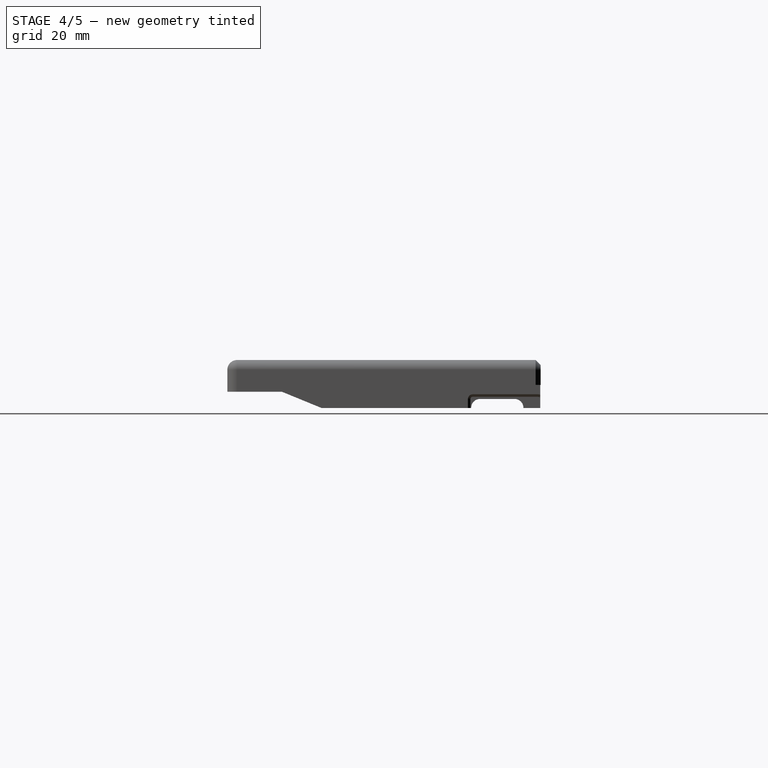
[diagram: stage 4 of 5 — right view after this stage's code; geometry added in this stage tinted green]
FEATURE [PartDesign::SubShapeBinder] BaseFeature  label="BaseFeature(Split_i0)"
  BindCopyOnChange = 0
  BindMode = 0
  ClaimChildren = false
  Context = -> Part207 [Body002.BaseFeature.]
  EdgeTolerance = 1e-06
  FillStyle = 0
  Fuse = true
  InvalidShape = false
  MakeFace = true
  MergeEdges = true
  OffsetFill = false
  OffsetIntersection = false
  OffsetJoinType = 0
  OffsetOpenResult = false
  Outline = false
  PartialLoad = false
  Relative = true
  SplitEdges = false
  Support = -> [Body[Split_i0.]]
  TightBound = false
  TreeRank = 1805
  ValidateShape = false
  _Version = 8
FEATURE [PartDesign::SubShapeBinder] BaseFeature001  label="BaseFeature001(Split_i1)"
  BindCopyOnChange = 0
  BindMode = 0
  ClaimChildren = false
  Context = -> Part207 [Body003.BaseFeature001.]
  EdgeTolerance = 1e-06
  FillStyle = 0
  Fuse = true
  InvalidShape = false
  MakeFace = true
  MergeEdges = true
  OffsetFill = false
  OffsetIntersection = false
  OffsetJoinType = 0
  OffsetOpenResult = false
  Outline = false
  PartialLoad = false
  Relative = true
  SplitEdges = false
  Support = -> [Body[Split_i1.]]
  TightBound = false
  TreeRank = 1816
  ValidateShape = false
  _Version = 8
FEATURE [Sketcher::SketchObject] Sketch013  label="Sketch_skirt_orig"
  ArcFitTolerance = 1e-06
  AttachmentSupport = -> [BaseFeature001]
  ExternalBSplineMaxDegree = 5
  ExternalBSplineTolerance = 0.0001
  ExternalGeometry = -> [BaseFeature001]
  FullyConstrained = true
  InternalTolerance = 1e-06
  InvalidShape = false
  MakeInternals = false
  MapMode = 5
  Placement = pos=(-18.5,0,0) rot=(0.57735,0.57735,0.57735;2.0944rad)
  Support = -> [BaseFeature001]
  TreeRank = 1817
  ValidateShape = false
  sketch-geometry (5):
    g0: LineSegment StartX=-49.75 StartY=8.60236 StartZ=0 EndX=-15.9365 EndY=8.60236 EndZ=0
    g1: LineSegment StartX=-15.9365 StartY=8.60236 StartZ=0 EndX=-15.9365 EndY=2.33916 EndZ=0
    g2: LineSegment StartX=-49.75 StartY=8.60236 StartZ=0 EndX=-49.75 EndY=5.60236 EndZ=0
    g3: LineSegment StartX=-49.75 StartY=5.60236 StartZ=0 EndX=-41.7972 EndY=2.33916 EndZ=0
    g4: LineSegment StartX=-41.7972 StartY=2.33916 StartZ=0 EndX=-15.9365 EndY=2.33916 EndZ=0
  constraints (14):
    c: Horizontal(g0)
    c: Coincident(g0,g1)
    c: Vertical(g1)
    c: Coincident(g1,g-4)
    c: DistanceY(g-3,g0) = 3
    c: DistanceX(g-3,g0) = 9
    c: Coincident(g0,g2)
    c: PointOnObject(g2,g-3)
    c: Vertical(g2)
    c: Coincident(g2,g3)
    c: Coincident(g4,g3)
    c: Coincident(g4,g1)
    c: Horizontal(g4)
    c: Parallel(g3,g-4)
FEATURE [PartDesign::Pad] Pad006  label="Pad_skirt_orig"
  AddSubType = 0
  AlongSketchNormal = false
  AutoTaperInnerAngle = true
  BaseFeature = -> BaseFeature001
  CheckUpToFaceLimits = true
  ClaimChildren = false
  Direction = (1,0,0)
  Fit = 0
  FitJoin = 0
  InnerFit = 0
  InnerFitJoin = 0
  InvalidShape = false
  Length = 0.5
  Length2 = 100
  Linearize = true
  NewSolid = false
  Profile = -> Sketch013
  Suppress = false
  TaperInnerAngle = 0
  TaperInnerAngleRev = 0
  TreeRank = 1818
  Type = 0
  ValidateShape = true
  _ProfileBasedVersion = 1
FEATURE [Sketcher::SketchObject] MirroredSketch
  ArcFitTolerance = 1e-06
  AttachmentSupport = -> [Pad006]
  ExternalBSplineMaxDegree = 5
  ExternalBSplineTolerance = 0.0001
  ExternalGeometry = -> [Sketch013]
  FullyConstrained = true
  InternalTolerance = 1e-06
  InvalidShape = false
  MakeInternals = false
  Placement = pos=(18.5,-4.1e-15,-8.2e-15) rot=(-0.57735,-0.57735,0.57735;2.0944rad)
  Support = -> [Pad006]
  TreeRank = 1819
  ValidateShape = false
  sketch-geometry (5):
    g0: LineSegment StartX=-41.7972 StartY=-2.33915 StartZ=0 EndX=-15.9365 EndY=-2.33915 EndZ=0
    g1: LineSegment StartX=-15.9365 StartY=-2.33915 StartZ=0 EndX=-15.9365 EndY=-8.60236 EndZ=0
    g2: LineSegment StartX=-15.9365 StartY=-8.60236 StartZ=0 EndX=-49.75 EndY=-8.60236 EndZ=0
    g3: LineSegment StartX=-49.75 StartY=-8.60236 StartZ=0 EndX=-49.75 EndY=-5.60236 EndZ=0
    g4: LineSegment StartX=-49.75 StartY=-5.60236 StartZ=0 EndX=-41.7972 EndY=-2.33915 EndZ=0
  constraints (12):
    c: Coincident(g0,g-3)
    c: Horizontal(g0)
    c: Coincident(g0,g1)
    c: Coincident(g1,g-5)
    c: Vertical(g1)
    c: Coincident(g1,g2)
    c: Horizontal(g2)
    c: Coincident(g2,g3)
    c: Coincident(g3,g-4)
    c: Vertical(g3)
    c: Coincident(g3,g4)
    c: Coincident(g4,g0)
FEATURE [PartDesign::Pad] Pad007  label="Pad_skirt_clone"
  AddSubType = 0
  AlongSketchNormal = false
  AutoTaperInnerAngle = true
  BaseFeature = -> Pad006
  CheckUpToFaceLimits = true
  ClaimChildren = false
  Direction = (-1,2e-16,1e-16)
  Fit = 0
  FitJoin = 0
  InnerFit = 0
  InnerFitJoin = 0
  InvalidShape = false
  Length = 0.5
  Length2 = 100
  Linearize = true
  NewSolid = false
  Profile = -> MirroredSketch
  Suppress = false
  TaperInnerAngle = 0
  TaperInnerAngleRev = 0
  TreeRank = 1820
  Type = 0
  ValidateShape = true
  _ProfileBasedVersion = 1
FEATURE [PartDesign::Pad] Pad004  label="Pad_front_cover_standoffs"
  AddSubType = 0
  AlongSketchNormal = false
  AutoTaperInnerAngle = true
  BaseFeature = -> Pocket006
  CheckUpToFaceLimits = true
  ClaimChildren = false
  Direction = (0,0,1)
  Fit = 3
  FitJoin = 0
  InnerFit = 0
  InnerFitJoin = 0
  InvalidShape = false
  Length = 10
  Length2 = 100
  Linearize = true
  NewSolid = false
  Profile = -> Binder008
  Suppress = false
  TaperInnerAngle = 0
  TaperInnerAngleRev = 0
  TreeRank = 1779
  Type = 3
  UpToFace = -> Pocket006 [Face75]
  ValidateShape = true
  _ProfileBasedVersion = 1
FEATURE [PartDesign::Hole] Hole001  label="Hole_front_cover"
  AddSubType = 1
  BaseFeature = -> Pad004
  ClaimChildren = false
  CustomThreadClearance = 0
  Depth = 5
  DepthType = 0
  Diameter = 3.4
  DrillForDepth = false
  DrillPoint = 1
  DrillPointAngle = 118
  Fit = 0
  FitJoin = 0
  HoleCutCountersinkAngle = 90
  HoleCutCustomValues = false
  HoleCutDepth = 2
  HoleCutDiameter = 6.1
  HoleCutType = 1
  InnerFit = 0
  InnerFitJoin = 0
  InvalidShape = false
  Linearize = true
  ModelThread = false
  NewSolid = false
  Profile = -> Pad004 [Edge256,Edge255]
  Suppress = false
  Tapered = false
  TaperedAngle = 90
  ThreadClass = 0
  ThreadDepth = 5
  ThreadDepthType = 0
  ThreadDirection = 0
  ThreadFit = 0
  ThreadSize = 9
  ThreadType = 1
  Threaded = false
  TreeRank = 1780
  UseCustomThreadClearance = false
  ValidateShape = true
  _ProfileBasedVersion = 1
FEATURE [PartDesign::Fillet] Fillet  label="Fillet_outside_rounded"
  AddSubType = 0
  Base = -> Hole001 [Edge201,Edge258,Edge186,Edge202,Edge185,Edge194,Edge187]
  BaseFeature = -> Hole001
  InvalidShape = false
  NewSolid = false
  Radius = 2
  SupportTransform = false
  Suppress = false
  TreeRank = 1781
  ValidateShape = true
FEATURE [PartDesign::Chamfer] Chamfer  label="Chamfer_inside_support"
  AddSubType = 0
  Angle = 45
  Base = -> Fillet [Edge68,Edge35,Edge155,Edge14,Edge171]
  BaseFeature = -> Fillet
  ChamferType = 0
  FlipDirection = false
  InvalidShape = false
  NewSolid = false
  Size = 1
  Size2 = 1
  SupportTransform = false
  Suppress = false
  TreeRank = 1782
  ValidateShape = true
FEATURE [PartDesign::Chamfer] Chamfer001  label="Chamfer_ports"
  AddSubType = 0
  Angle = 45
  Base = -> Chamfer [Edge138,Edge120,Edge112,Edge111,Edge110,Edge2,Edge113]
  BaseFeature = -> Chamfer
  ChamferType = 0
  FlipDirection = false
  InvalidShape = false
  NewSolid = false
  Size = 0.5
  Size2 = 1
  SupportTransform = false
  Suppress = false
  TreeRank = 1783
  ValidateShape = true
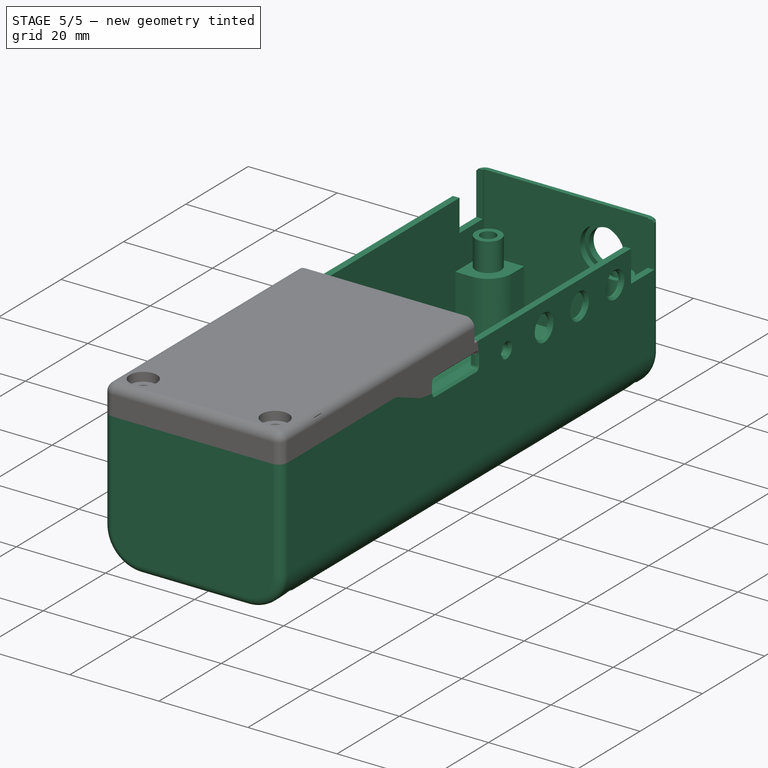
[diagram: stage 5 of 5 — iso view after this stage's code; geometry added in this stage tinted green]
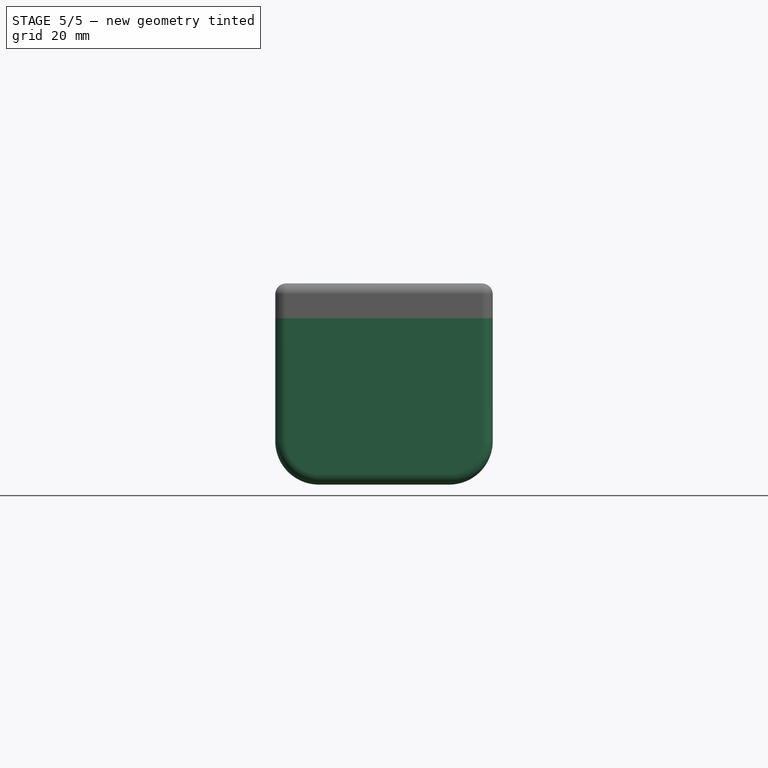
[diagram: stage 5 of 5 — front view after this stage's code; geometry added in this stage tinted green]
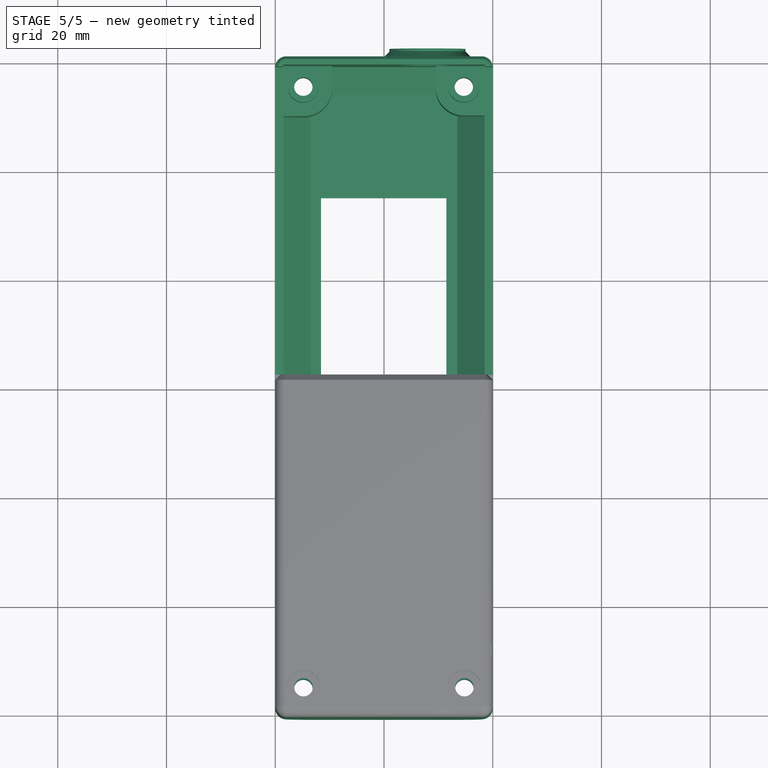
[diagram: stage 5 of 5 — top view after this stage's code; geometry added in this stage tinted green]
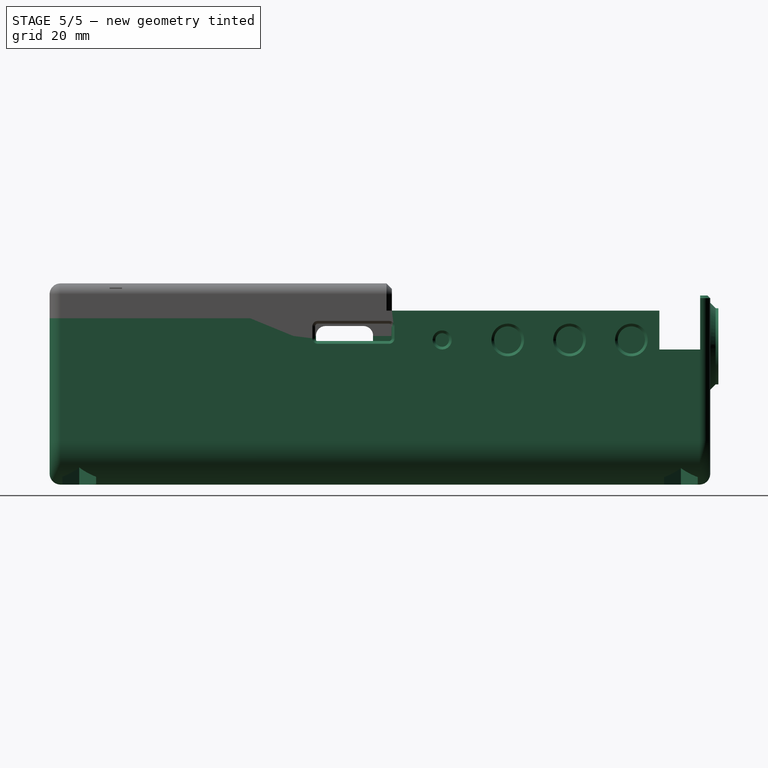
[diagram: stage 5 of 5 — right view after this stage's code; geometry added in this stage tinted green]
FEATURE [Sketcher::SketchObject] Sketch014  label="Sketch_key_orig"
  ArcFitTolerance = 1e-06
  AttachmentSupport = -> [Pad006]
  ExternalBSplineMaxDegree = 5
  ExternalBSplineTolerance = 0.0001
  ExternalGeometry = -> [Pad006]
  FullyConstrained = true
  InternalTolerance = 1e-06
  InvalidShape = false
  MakeInternals = false
  MapMode = 5
  Placement = pos=(-18.5,0,0) rot=(0.57735,-0.57735,-0.57735;2.0944rad)
  Support = -> [Pad006]
  TreeRank = 1821
  ValidateShape = false
  sketch-geometry (4):
    g0: LineSegment StartX=21.7972 StartY=4.08916 StartZ=0 EndX=41.7972 EndY=4.08916 EndZ=0
    g1: LineSegment StartX=41.7972 StartY=4.08916 StartZ=0 EndX=41.7972 EndY=3.58916 EndZ=0
    g2: LineSegment StartX=41.7972 StartY=3.58916 StartZ=0 EndX=21.7972 EndY=3.58916 EndZ=0
    g3: LineSegment StartX=21.7972 StartY=3.58916 StartZ=0 EndX=21.7972 EndY=4.08916 EndZ=0
  constraints (12):
    c: Coincident(g0,g1)
    c: Coincident(g1,g2)
    c: Coincident(g2,g3)
    c: Coincident(g3,g0)
    c: Horizontal(g0)
    c: Horizontal(g2)
    c: Vertical(g1)
    c: Vertical(g3)
    c: DistanceY(g3,g3) = 0.5
    c: Vertical(g1,g-4)
    c: DistanceX(g0,g0) = 20
    c: DistanceY(g-4,g2) = 1.25
FEATURE [PartDesign::Pad] Pad008  label="Pad_key_orig"
  AddSubType = 0
  AlongSketchNormal = false
  AutoTaperInnerAngle = true
  BaseFeature = -> Pad007
  CheckUpToFaceLimits = true
  ClaimChildren = false
  Direction = (-1,0,0)
  Fit = 0
  FitJoin = 0
  InnerFit = 0
  InnerFitJoin = 0
  InvalidShape = false
  Length = 0.4
  Length2 = 100
  Linearize = true
  NewSolid = false
  Profile = -> Sketch014
  Suppress = false
  TaperInnerAngle = 0
  TaperInnerAngleRev = 0
  TreeRank = 1822
  Type = 0
  ValidateShape = true
  _ProfileBasedVersion = 1
FEATURE [Sketcher::SketchObject] Sketch015  label="Sketch_key_clone"
  ArcFitTolerance = 1e-06
  AttachmentSupport = -> [Pad008]
  ExternalBSplineMaxDegree = 5
  ExternalBSplineTolerance = 0.0001
  ExternalGeometry = -> [Sketch014]
  FullyConstrained = true
  InternalTolerance = 1e-06
  InvalidShape = false
  MakeInternals = false
  MapMode = 5
  Placement = pos=(18.5,-3.5e-15,3e-15) rot=(0.57735,0.57735,0.57735;2.0944rad)
  Support = -> [Pad008]
  TreeRank = 1823
  ValidateShape = false
  sketch-geometry (4):
    g0: LineSegment StartX=-41.7972 StartY=4.08916 StartZ=0 EndX=-21.7972 EndY=4.08916 EndZ=0
    g1: LineSegment StartX=-21.7972 StartY=4.08916 StartZ=0 EndX=-21.7972 EndY=3.58916 EndZ=0
    g2: LineSegment StartX=-21.7972 StartY=3.58916 StartZ=0 EndX=-41.7972 EndY=3.58916 EndZ=0
    g3: LineSegment StartX=-41.7972 StartY=3.58916 StartZ=0 EndX=-41.7972 EndY=4.08916 EndZ=0
  constraints (8):
    c: Coincident(g0,g-3)
    c: Coincident(g0,g-4)
    c: Coincident(g0,g1)
    c: Coincident(g1,g-5)
    c: Coincident(g1,g2)
    c: Coincident(g2,g-6)
    c: Coincident(g2,g3)
    c: Coincident(g3,g0)
FEATURE [PartDesign::Pad] Pad009  label="Pad_key_clone"
  AddSubType = 0
  AlongSketchNormal = false
  AutoTaperInnerAngle = true
  BaseFeature = -> Pad008
  CheckUpToFaceLimits = true
  ClaimChildren = false
  Direction = (1,-2e-16,2e-16)
  Fit = 0
  FitJoin = 0
  InnerFit = 0
  InnerFitJoin = 0
  InvalidShape = false
  Length = 0.4
  Length2 = 100
  Linearize = true
  NewSolid = false
  Profile = -> Sketch015
  Suppress = false
  TaperInnerAngle = 0
  TaperInnerAngleRev = 0
  TreeRank = 1824
  Type = 0
  ValidateShape = true
  _ProfileBasedVersion = 1
FEATURE [Part::SubShapeBinder] Import005  label="Import005(Sketch_key_orig)"
  BindCopyOnChange = 0
  BindMode = 0
  ClaimChildren = false
  Context = -> Part207 [Body002.Import005.]
  EdgeTolerance = 1e-06
  FillStyle = 0
  Fuse = false
  InvalidShape = false
  MakeFace = false
  MergeEdges = true
  OffsetFill = false
  OffsetIntersection = false
  OffsetJoinType = 0
  OffsetOpenResult = false
  Outline = false
  PartialLoad = false
  Relative = true
  SplitEdges = false
  Support = -> [Body003[Sketch014.]]
  TightBound = false
  TreeRank = 1826
  ValidateShape = false
  _Version = 8
FEATURE [Sketcher::SketchObject] Sketch016  label="Sketch_notch_orig"
  ArcFitTolerance = 1e-06
  AttachmentSupport = -> [BaseFeature]
  ExternalBSplineMaxDegree = 5
  ExternalBSplineTolerance = 0.0001
  ExternalGeometry = -> [Import005]
  FullyConstrained = true
  InternalTolerance = 1e-06
  InvalidShape = false
  MakeInternals = false
  MapMode = 5
  Placement = pos=(-18.5,0,0) rot=(0.57735,0.57735,0.57735;2.0944rad)
  Support = -> [BaseFeature]
  TreeRank = 1825
  ValidateShape = false
  sketch-geometry (6):
    g0: LineSegment StartX=-41.9386 StartY=4.23058 StartZ=0 EndX=-21.6558 EndY=4.23058 EndZ=0
    g1: LineSegment StartX=-21.6558 StartY=4.23058 StartZ=0 EndX=-21.6558 EndY=3.44773 EndZ=0
    g2: LineSegment StartX=-21.6558 StartY=3.44773 StartZ=0 EndX=-41.9386 EndY=3.44773 EndZ=0
    g3: LineSegment StartX=-41.9386 StartY=3.44773 StartZ=0 EndX=-41.9386 EndY=4.23058 EndZ=0
    g4: LineSegment [constr] StartX=-41.7972 StartY=4.08916 StartZ=0 EndX=-41.9386 EndY=4.23058 EndZ=0
    g5: LineSegment [constr] StartX=-21.7972 StartY=3.58916 StartZ=0 EndX=-21.6558 EndY=3.44773 EndZ=0
  constraints (16):
    c: Coincident(g0,g1)
    c: Coincident(g1,g2)
    c: Coincident(g2,g3)
    c: Coincident(g3,g0)
    c: Horizontal(g0)
    c: Horizontal(g2)
    c: Vertical(g1)
    c: Vertical(g3)
    c: Distance(g-3,g0) = 0.2
    c: Distance(g1,g-4) = 0.2
    c: Coincident(g4,g-3)
    c: Coincident(g4,g0)
    c: Angle(g4,g0) = 0.785398
    c: Coincident(g5,g-4)
    c: Coincident(g5,g1)
    c: Angle(g1,g5) = 0.785398
FEATURE [PartDesign::Pocket] Pocket008  label="Pocket_notch_orig"
  AddSubType = 1
  AutoTaperInnerAngle = true
  BaseFeature = -> BaseFeature
  CheckUpToFaceLimits = true
  ClaimChildren = false
  Fit = 0
  FitJoin = 0
  InnerFit = 0
  InnerFitJoin = 0
  InvalidShape = false
  Length = 0.5
  Length2 = 100
  Linearize = true
  NewSolid = false
  Profile = -> Sketch016
  Suppress = false
  TaperInnerAngle = 0
  TaperInnerAngleRev = 0
  TreeRank = 1827
  Type = 0
  ValidateShape = true
  _ProfileBasedVersion = 1
  _Version = 1
FEATURE [Sketcher::SketchObject] Sketch017  label="Sketch_notch_clone"
  ArcFitTolerance = 1e-06
  AttachmentSupport = -> [Pocket008]
  ExternalBSplineMaxDegree = 5
  ExternalBSplineTolerance = 0.0001
  ExternalGeometry = -> [Sketch016]
  FullyConstrained = true
  InternalTolerance = 1e-06
  InvalidShape = false
  MakeInternals = false
  MapMode = 5
  Placement = pos=(18.5,0,0) rot=(0.57735,-0.57735,-0.57735;2.0944rad)
  Support = -> [Pocket008]
  TreeRank = 1828
  ValidateShape = false
  sketch-geometry (4):
    g0: LineSegment StartX=21.6558 StartY=4.23058 StartZ=0 EndX=41.9386 EndY=4.23058 EndZ=0
    g1: LineSegment StartX=41.9386 StartY=4.23058 StartZ=0 EndX=41.9386 EndY=3.44773 EndZ=0
    g2: LineSegment StartX=41.9386 StartY=3.44773 StartZ=0 EndX=21.6558 EndY=3.44773 EndZ=0
    g3: LineSegment StartX=21.6558 StartY=3.44773 StartZ=0 EndX=21.6558 EndY=4.23058 EndZ=0
  constraints (8):
    c: Coincident(g0,g-3)
    c: Coincident(g0,g-5)
    c: Coincident(g1,g0)
    c: Coincident(g1,g-4)
    c: Coincident(g2,g1)
    c: Coincident(g2,g-6)
    c: Coincident(g3,g2)
    c: Coincident(g3,g0)
FEATURE [PartDesign::Pocket] Pocket009  label="Pocket_notch_clone"
  AddSubType = 1
  AutoTaperInnerAngle = true
  BaseFeature = -> Pocket008
  CheckUpToFaceLimits = true
  ClaimChildren = false
  Fit = 0
  FitJoin = 0
  InnerFit = 0
  InnerFitJoin = 0
  InvalidShape = false
  Length = 0.5
  Length2 = 100
  Linearize = true
  NewSolid = false
  Profile = -> Sketch017
  Suppress = false
  TaperInnerAngle = 0
  TaperInnerAngleRev = 0
  TreeRank = 1829
  Type = 0
  ValidateShape = true
  _ProfileBasedVersion = 1
  _Version = 1
FEATURE [PartDesign::Body] Body002  label="Body_bottom_case"
  AutoGroupSolids = false
  BaseFeature = -> BaseFeature
  ClaimAllChildren = false
  ExportMode = 0
  Group = -> [BaseFeature,Sketch016,Import005,Pocket008,Sketch017,Pocket009]
  InvalidShape = false
  Origin = -> Origin237
  Tip = -> Pocket009
  TreeRank = 1804
  ValidateShape = false
  _ExportChildren = -> [BaseFeature,Import005,Pocket008,Pocket009]
  _GroupVersion = 1
FEATURE [PartDesign::Chamfer] Chamfer002
  AddSubType = 0
  Angle = 45
  Base = -> Pad009 [Edge228,Edge226,Edge224,Edge229,Edge182,Edge184,Edge185,Edge180]
  BaseFeature = -> Pad009
  ChamferType = 0
  FlipDirection = false
  InvalidShape = false
  NewSolid = false
  Size = 0.1
  Size2 = 1
  SupportTransform = false
  Suppress = false
  TreeRank = 1830
  ValidateShape = true
FEATURE [Sketcher::SketchObject] Sketch019  label="Sketch_M17_logo"
  ArcFitTolerance = 1e-06
  AttachmentSupport = -> [Chamfer002]
  ExternalBSplineMaxDegree = 5
  ExternalBSplineTolerance = 0.0001
  FullyConstrained = false
  InternalTolerance = 1e-06
  InvalidShape = false
  MakeInternals = false
  MapMode = 5
  Placement = pos=(0,0,12) rot=(0,0,1;0rad)
  Support = -> [Chamfer002]
  TreeRank = 2725
  ValidateShape = false
  sketch-geometry (22):
    g0: BSplineCurve PolesCount=2 KnotsCount=2 Degree=1 IsPeriodic=0
    g1: BSplineCurve PolesCount=2 KnotsCount=2 Degree=1 IsPeriodic=0
    g2: BSplineCurve PolesCount=2 KnotsCount=2 Degree=1 IsPeriodic=0
    g3: BSplineCurve PolesCount=2 KnotsCount=2 Degree=1 IsPeriodic=0
    g4: BSplineCurve PolesCount=2 KnotsCount=2 Degree=1 IsPeriodic=0
    g5: BSplineCurve PolesCount=2 KnotsCount=2 Degree=1 IsPeriodic=0
    g6: BSplineCurve PolesCount=2 KnotsCount=2 Degree=1 IsPeriodic=0
    g7: BSplineCurve PolesCount=2 KnotsCount=2 Degree=1 IsPeriodic=0
    g8: BSplineCurve PolesCount=2 KnotsCount=2 Degree=1 IsPeriodic=0
    g9: BSplineCurve PolesCount=2 KnotsCount=2 Degree=1 IsPeriodic=0
    g10: BSplineCurve PolesCount=2 KnotsCount=2 Degree=1 IsPeriodic=0
    g11: BSplineCurve PolesCount=2 KnotsCount=2 Degree=1 IsPeriodic=0
    g12: BSplineCurve PolesCount=2 KnotsCount=2 Degree=1 IsPeriodic=0
    g13: BSplineCurve PolesCount=2 KnotsCount=2 Degree=1 IsPeriodic=0
    g14: BSplineCurve PolesCount=2 KnotsCount=2 Degree=1 IsPeriodic=0
    g15: BSplineCurve PolesCount=2 KnotsCount=2 Degree=1 IsPeriodic=0
    g16: BSplineCurve PolesCount=2 KnotsCount=2 Degree=1 IsPeriodic=0
    g17: BSplineCurve PolesCount=2 KnotsCount=2 Degree=1 IsPeriodic=0
    g18: BSplineCurve PolesCount=2 KnotsCount=2 Degree=1 IsPeriodic=0
    g19: BSplineCurve PolesCount=2 KnotsCount=2 Degree=1 IsPeriodic=0
    g20: BSplineCurve PolesCount=2 KnotsCount=2 Degree=1 IsPeriodic=0
    g21: BSplineCurve PolesCount=2 KnotsCount=2 Degree=1 IsPeriodic=0
  constraints (22):
    c: Coincident(g0,g1)
    c: Coincident(g1,g2)
    c: Coincident(g2,g3)
    c: Coincident(g3,g4)
    c: Coincident(g4,g5)
    c: Coincident(g5,g0)
    c: Coincident(g6,g7)
    c: Coincident(g7,g8)
    c: Coincident(g8,g9)
    c: Coincident(g9,g10)
    c: Coincident(g10,g11)
    c: Coincident(g11,g6)
    c: Coincident(g12,g13)
    c: Coincident(g13,g14)
    c: Coincident(g14,g15)
    c: Coincident(g15,g16)
    c: Coincident(g16,g17)
    c: Coincident(g17,g18)
    c: Coincident(g18,g19)
    c: Coincident(g19,g20)
    c: Coincident(g20,g21)
    c: Coincident(g21,g12)
FEATURE [PartDesign::Pocket] Pocket010
  AddSubType = 1
  AutoTaperInnerAngle = true
  BaseFeature = -> Chamfer002
  CheckUpToFaceLimits = true
  ClaimChildren = false
  Fit = 0
  FitJoin = 0
  InnerFit = 0
  InnerFitJoin = 0
  InvalidShape = false
  Length = 1
  Length2 = 100
  Linearize = true
  NewSolid = false
  Profile = -> Sketch019
  Suppress = false
  TaperInnerAngle = 0
  TaperInnerAngleRev = 0
  TreeRank = 2726
  Type = 0
  ValidateShape = true
  _ProfileBasedVersion = 1
  _Version = 1
FEATURE [Sketcher::SketchObject] Sketch020  label="Sketch_OPNRTX_logo"
  ArcFitTolerance = 1e-06
  AttachmentSupport = -> [Pocket010]
  ExternalBSplineMaxDegree = 5
  ExternalBSplineTolerance = 0.0001
  FullyConstrained = false
  InternalTolerance = 1e-06
  InvalidShape = false
  MakeInternals = false
  MapMode = 5
  Placement = pos=(0,0,12) rot=(0,0,1;0rad)
  Support = -> [Pocket010]
  TreeRank = 2727
  ValidateShape = false
  sketch-geometry (496):
    g0: BSplineCurve PolesCount=2 KnotsCount=2 Degree=1 IsPeriodic=0
    g1: BSplineCurve PolesCount=2 KnotsCount=2 Degree=1 IsPeriodic=0
    g2: BSplineCurve PolesCount=2 KnotsCount=2 Degree=1 IsPeriodic=0
    g3: BSplineCurve PolesCount=2 KnotsCount=2 Degree=1 IsPeriodic=0
    g4: BSplineCurve PolesCount=2 KnotsCount=2 Degree=1 IsPeriodic=0
    g5: BSplineCurve PolesCount=2 KnotsCount=2 Degree=1 IsPeriodic=0
    g6: BSplineCurve PolesCount=2 KnotsCount=2 Degree=1 IsPeriodic=0
    g7: BSplineCurve PolesCount=2 KnotsCount=2 Degree=1 IsPeriodic=0
    g8: BSplineCurve PolesCount=2 KnotsCount=2 Degree=1 IsPeriodic=0
    g9: BSplineCurve PolesCount=2 KnotsCount=2 Degree=1 IsPeriodic=0
    g10: BSplineCurve PolesCount=2 KnotsCount=2 Degree=1 IsPeriodic=0
    g11: BSplineCurve PolesCount=2 KnotsCount=2 Degree=1 IsPeriodic=0
    g12: BSplineCurve PolesCount=2 KnotsCount=2 Degree=1 IsPeriodic=0
    g13: BSplineCurve PolesCount=2 KnotsCount=2 Degree=1 IsPeriodic=0
    g14: BSplineCurve PolesCount=2 KnotsCount=2 Degree=1 IsPeriodic=0
    g15: BSplineCurve PolesCount=2 KnotsCount=2 Degree=1 IsPeriodic=0
    g16: BSplineCurve PolesCount=2 KnotsCount=2 Degree=1 IsPeriodic=0
    g17: BSplineCurve PolesCount=2 KnotsCount=2 Degree=1 IsPeriodic=0
    g18: BSplineCurve PolesCount=2 KnotsCount=2 Degree=1 IsPeriodic=0
    g19: BSplineCurve PolesCount=2 KnotsCount=2 Degree=1 IsPeriodic=0
    g20: BSplineCurve PolesCount=2 KnotsCount=2 Degree=1 IsPeriodic=0
    g21: BSplineCurve PolesCount=2 KnotsCount=2 Degree=1 IsPeriodic=0
    g22: BSplineCurve PolesCount=2 KnotsCount=2 Degree=1 IsPeriodic=0
    g23: BSplineCurve PolesCount=2 KnotsCount=2 Degree=1 IsPeriodic=0
    g24: BSplineCurve PolesCount=2 KnotsCount=2 Degree=1 IsPeriodic=0
    g25: BSplineCurve PolesCount=2 KnotsCount=2 Degree=1 IsPeriodic=0
    g26: BSplineCurve PolesCount=2 KnotsCount=2 Degree=1 IsPeriodic=0
    g27: BSplineCurve PolesCount=2 KnotsCount=2 Degree=1 IsPeriodic=0
    g28: BSplineCurve PolesCount=2 KnotsCount=2 Degree=1 IsPeriodic=0
    g29: BSplineCurve PolesCount=2 KnotsCount=2 Degree=1 IsPeriodic=0
    g30: BSplineCurve PolesCount=2 KnotsCount=2 Degree=1 IsPeriodic=0
    g31: BSplineCurve PolesCount=2 KnotsCount=2 Degree=1 IsPeriodic=0
    g32: BSplineCurve PolesCount=2 KnotsCount=2 Degree=1 IsPeriodic=0
    g33: BSplineCurve PolesCount=2 KnotsCount=2 Degree=1 IsPeriodic=0
    g34: BSplineCurve PolesCount=2 KnotsCount=2 Degree=1 IsPeriodic=0
    g35: BSplineCurve PolesCount=2 KnotsCount=2 Degree=1 IsPeriodic=0
    g36: BSplineCurve PolesCount=2 KnotsCount=2 Degree=1 IsPeriodic=0
    g37: BSplineCurve PolesCount=2 KnotsCount=2 Degree=1 IsPeriodic=0
    g38: BSplineCurve PolesCount=2 KnotsCount=2 Degree=1 IsPeriodic=0
    g39: BSplineCurve PolesCount=2 KnotsCount=2 Degree=1 IsPeriodic=0
    g40: BSplineCurve PolesCount=2 KnotsCount=2 Degree=1 IsPeriodic=0
    g41: BSplineCurve PolesCount=2 KnotsCount=2 Degree=1 IsPeriodic=0
    g42: BSplineCurve PolesCount=2 KnotsCount=2 Degree=1 IsPeriodic=0
    g43: BSplineCurve PolesCount=2 KnotsCount=2 Degree=1 IsPeriodic=0
    g44: BSplineCurve PolesCount=2 KnotsCount=2 Degree=1 IsPeriodic=0
    g45: BSplineCurve PolesCount=2 KnotsCount=2 Degree=1 IsPeriodic=0
    g46: BSplineCurve PolesCount=2 KnotsCount=2 Degree=1 IsPeriodic=0
    g47: BSplineCurve PolesCount=2 KnotsCount=2 Degree=1 IsPeriodic=0
    g48: BSplineCurve PolesCount=2 KnotsCount=2 Degree=1 IsPeriodic=0
    g49: BSplineCurve PolesCount=2 KnotsCount=2 Degree=1 IsPeriodic=0
    g50: BSplineCurve PolesCount=2 KnotsCount=2 Degree=1 IsPeriodic=0
    g51: BSplineCurve PolesCount=2 KnotsCount=2 Degree=1 IsPeriodic=0
    g52: BSplineCurve PolesCount=2 KnotsCount=2 Degree=1 IsPeriodic=0
    g53: BSplineCurve PolesCount=2 KnotsCount=2 Degree=1 IsPeriodic=0
    g54: BSplineCurve PolesCount=2 KnotsCount=2 Degree=1 IsPeriodic=0
    g55: BSplineCurve PolesCount=2 KnotsCount=2 Degree=1 IsPeriodic=0
    g56: BSplineCurve PolesCount=2 KnotsCount=2 Degree=1 IsPeriodic=0
    g57: BSplineCurve PolesCount=2 KnotsCount=2 Degree=1 IsPeriodic=0
    g58: BSplineCurve PolesCount=2 KnotsCount=2 Degree=1 IsPeriodic=0
    g59: BSplineCurve PolesCount=2 KnotsCount=2 Degree=1 IsPeriodic=0
    g60: BSplineCurve PolesCount=2 KnotsCount=2 Degree=1 IsPeriodic=0
    g61: BSplineCurve PolesCount=2 KnotsCount=2 Degree=1 IsPeriodic=0
    g62: BSplineCurve PolesCount=2 KnotsCount=2 Degree=1 IsPeriodic=0
    g63: BSplineCurve PolesCount=2 KnotsCount=2 Degree=1 IsPeriodic=0
    g64: BSplineCurve PolesCount=2 KnotsCount=2 Degree=1 IsPeriodic=0
    g65: BSplineCurve PolesCount=2 KnotsCount=2 Degree=1 IsPeriodic=0
    g66: BSplineCurve PolesCount=2 KnotsCount=2 Degree=1 IsPeriodic=0
    g67: BSplineCurve PolesCount=2 KnotsCount=2 Degree=1 IsPeriodic=0
    g68: BSplineCurve PolesCount=2 KnotsCount=2 Degree=1 IsPeriodic=0
    g69: BSplineCurve PolesCount=2 KnotsCount=2 Degree=1 IsPeriodic=0
    g70: BSplineCurve PolesCount=2 KnotsCount=2 Degree=1 IsPeriodic=0
    g71: BSplineCurve PolesCount=2 KnotsCount=2 Degree=1 IsPeriodic=0
    g72: BSplineCurve PolesCount=2 KnotsCount=2 Degree=1 IsPeriodic=0
    g73: BSplineCurve PolesCount=2 KnotsCount=2 Degree=1 IsPeriodic=0
    g74: BSplineCurve PolesCount=2 KnotsCount=2 Degree=1 IsPeriodic=0
    g75: BSplineCurve PolesCount=2 KnotsCount=2 Degree=1 IsPeriodic=0
    g76: BSplineCurve PolesCount=2 KnotsCount=2 Degree=1 IsPeriodic=0
    g77: BSplineCurve PolesCount=2 KnotsCount=2 Degree=1 IsPeriodic=0
    g78: BSplineCurve PolesCount=2 KnotsCount=2 Degree=1 IsPeriodic=0
    g79: BSplineCurve PolesCount=2 KnotsCount=2 Degree=1 IsPeriodic=0
    g80: BSplineCurve PolesCount=2 KnotsCount=2 Degree=1 IsPeriodic=0
    g81: BSplineCurve PolesCount=2 KnotsCount=2 Degree=1 IsPeriodic=0
    g82: BSplineCurve PolesCount=2 KnotsCount=2 Degree=1 IsPeriodic=0
    g83: BSplineCurve PolesCount=2 KnotsCount=2 Degree=1 IsPeriodic=0
    g84: BSplineCurve PolesCount=2 KnotsCount=2 Degree=1 IsPeriodic=0
    g85: BSplineCurve PolesCount=2 KnotsCount=2 Degree=1 IsPeriodic=0
    g86: BSplineCurve PolesCount=2 KnotsCount=2 Degree=1 IsPeriodic=0
    g87: BSplineCurve PolesCount=2 KnotsCount=2 Degree=1 IsPeriodic=0
    g88: BSplineCurve PolesCount=2 KnotsCount=2 Degree=1 IsPeriodic=0
    g89: BSplineCurve PolesCount=2 KnotsCount=2 Degree=1 IsPeriodic=0
    g90: BSplineCurve PolesCount=2 KnotsCount=2 Degree=1 IsPeriodic=0
    g91: BSplineCurve PolesCount=2 KnotsCount=2 Degree=1 IsPeriodic=0
    g92: BSplineCurve PolesCount=2 KnotsCount=2 Degree=1 IsPeriodic=0
    g93: BSplineCurve PolesCount=2 KnotsCount=2 Degree=1 IsPeriodic=0
    g94: BSplineCurve PolesCount=2 KnotsCount=2 Degree=1 IsPeriodic=0
    g95: BSplineCurve PolesCount=2 KnotsCount=2 Degree=1 IsPeriodic=0
    g96: BSplineCurve PolesCount=2 KnotsCount=2 Degree=1 IsPeriodic=0
    g97: BSplineCurve PolesCount=2 KnotsCount=2 Degree=1 IsPeriodic=0
    g98: BSplineCurve PolesCount=2 KnotsCount=2 Degree=1 IsPeriodic=0
    g99: BSplineCurve PolesCount=2 KnotsCount=2 Degree=1 IsPeriodic=0
    g100: BSplineCurve PolesCount=2 KnotsCount=2 Degree=1 IsPeriodic=0
    g101: BSplineCurve PolesCount=2 KnotsCount=2 Degree=1 IsPeriodic=0
    g102: BSplineCurve PolesCount=2 KnotsCount=2 Degree=1 IsPeriodic=0
    g103: BSplineCurve PolesCount=2 KnotsCount=2 Degree=1 IsPeriodic=0
    g104: BSplineCurve PolesCount=2 KnotsCount=2 Degree=1 IsPeriodic=0
    g105: BSplineCurve PolesCount=2 KnotsCount=2 Degree=1 IsPeriodic=0
    g106: BSplineCurve PolesCount=2 KnotsCount=2 Degree=1 IsPeriodic=0
    g107: BSplineCurve PolesCount=2 KnotsCount=2 Degree=1 IsPeriodic=0
    g108: BSplineCurve PolesCount=2 KnotsCount=2 Degree=1 IsPeriodic=0
    g109: BSplineCurve PolesCount=2 KnotsCount=2 Degree=1 IsPeriodic=0
    g110: BSplineCurve PolesCount=2 KnotsCount=2 Degree=1 IsPeriodic=0
    g111: BSplineCurve PolesCount=2 KnotsCount=2 Degree=1 IsPeriodic=0
    g112: BSplineCurve PolesCount=2 KnotsCount=2 Degree=1 IsPeriodic=0
    g113: BSplineCurve PolesCount=2 KnotsCount=2 Degree=1 IsPeriodic=0
    g114: BSplineCurve PolesCount=2 KnotsCount=2 Degree=1 IsPeriodic=0
    g115: BSplineCurve PolesCount=2 KnotsCount=2 Degree=1 IsPeriodic=0
    g116: BSplineCurve PolesCount=2 KnotsCount=2 Degree=1 IsPeriodic=0
    g117: BSplineCurve PolesCount=2 KnotsCount=2 Degree=1 IsPeriodic=0
    g118: BSplineCurve PolesCount=2 KnotsCount=2 Degree=1 IsPeriodic=0
    g119: BSplineCurve PolesCount=2 KnotsCount=2 Degree=1 IsPeriodic=0
    g120: BSplineCurve PolesCount=2 KnotsCount=2 Degree=1 IsPeriodic=0
    g121: BSplineCurve PolesCount=2 KnotsCount=2 Degree=1 IsPeriodic=0
    g122: BSplineCurve PolesCount=2 KnotsCount=2 Degree=1 IsPeriodic=0
    g123: BSplineCurve PolesCount=2 KnotsCount=2 Degree=1 IsPeriodic=0
    g124: BSplineCurve PolesCount=2 KnotsCount=2 Degree=1 IsPeriodic=0
    g125: BSplineCurve PolesCount=2 KnotsCount=2 Degree=1 IsPeriodic=0
    g126: BSplineCurve PolesCount=2 KnotsCount=2 Degree=1 IsPeriodic=0
    g127: BSplineCurve PolesCount=2 KnotsCount=2 Degree=1 IsPeriodic=0
    g128: BSplineCurve PolesCount=2 KnotsCount=2 Degree=1 IsPeriodic=0
    g129: BSplineCurve PolesCount=2 KnotsCount=2 Degree=1 IsPeriodic=0
    g130: BSplineCurve PolesCount=2 KnotsCount=2 Degree=1 IsPeriodic=0
    g131: BSplineCurve PolesCount=2 KnotsCount=2 Degree=1 IsPeriodic=0
    g132: BSplineCurve PolesCount=2 KnotsCount=2 Degree=1 IsPeriodic=0
    g133: BSplineCurve PolesCount=2 KnotsCount=2 Degree=1 IsPeriodic=0
    g134: BSplineCurve PolesCount=2 KnotsCount=2 Degree=1 IsPeriodic=0
    g135: BSplineCurve PolesCount=2 KnotsCount=2 Degree=1 IsPeriodic=0
    g136: BSplineCurve PolesCount=2 KnotsCount=2 Degree=1 IsPeriodic=0
    g137: BSplineCurve PolesCount=2 KnotsCount=2 Degree=1 IsPeriodic=0
    g138: BSplineCurve PolesCount=2 KnotsCount=2 Degree=1 IsPeriodic=0
    g139: BSplineCurve PolesCount=2 KnotsCount=2 Degree=1 IsPeriodic=0
    g140: BSplineCurve PolesCount=2 KnotsCount=2 Degree=1 IsPeriodic=0
    g141: BSplineCurve PolesCount=2 KnotsCount=2 Degree=1 IsPeriodic=0
    g142: BSplineCurve PolesCount=2 KnotsCount=2 Degree=1 IsPeriodic=0
    g143: BSplineCurve PolesCount=2 KnotsCount=2 Degree=1 IsPeriodic=0
    g144: BSplineCurve PolesCount=2 KnotsCount=2 Degree=1 IsPeriodic=0
    g145: BSplineCurve PolesCount=2 KnotsCount=2 Degree=1 IsPeriodic=0
    g146: BSplineCurve PolesCount=2 KnotsCount=2 Degree=1 IsPeriodic=0
    g147: BSplineCurve PolesCount=2 KnotsCount=2 Degree=1 IsPeriodic=0
    g148: BSplineCurve PolesCount=2 KnotsCount=2 Degree=1 IsPeriodic=0
    g149: BSplineCurve PolesCount=2 KnotsCount=2 Degree=1 IsPeriodic=0
    g150: BSplineCurve PolesCount=2 KnotsCount=2 Degree=1 IsPeriodic=0
    g151: BSplineCurve PolesCount=2 KnotsCount=2 Degree=1 IsPeriodic=0
    g152: BSplineCurve PolesCount=2 KnotsCount=2 Degree=1 IsPeriodic=0
    g153: BSplineCurve PolesCount=2 KnotsCount=2 Degree=1 IsPeriodic=0
    g154: BSplineCurve PolesCount=2 KnotsCount=2 Degree=1 IsPeriodic=0
    g155: BSplineCurve PolesCount=2 KnotsCount=2 Degree=1 IsPeriodic=0
    g156: BSplineCurve PolesCount=2 KnotsCount=2 Degree=1 IsPeriodic=0
    g157: BSplineCurve PolesCount=2 KnotsCount=2 Degree=1 IsPeriodic=0
    g158: BSplineCurve PolesCount=2 KnotsCount=2 Degree=1 IsPeriodic=0
    g159: BSplineCurve PolesCount=2 KnotsCount=2 Degree=1 IsPeriodic=0
    g160: BSplineCurve PolesCount=2 KnotsCount=2 Degree=1 IsPeriodic=0
    g161: BSplineCurve PolesCount=2 KnotsCount=2 Degree=1 IsPeriodic=0
    g162: BSplineCurve PolesCount=2 KnotsCount=2 Degree=1 IsPeriodic=0
    g163: BSplineCurve PolesCount=2 KnotsCount=2 Degree=1 IsPeriodic=0
    g164: BSplineCurve PolesCount=2 KnotsCount=2 Degree=1 IsPeriodic=0
    g165: BSplineCurve PolesCount=2 KnotsCount=2 Degree=1 IsPeriodic=0
    g166: BSplineCurve PolesCount=2 KnotsCount=2 Degree=1 IsPeriodic=0
    g167: BSplineCurve PolesCount=2 KnotsCount=2 Degree=1 IsPeriodic=0
    g168: BSplineCurve PolesCount=2 KnotsCount=2 Degree=1 IsPeriodic=0
    g169: BSplineCurve PolesCount=2 KnotsCount=2 Degree=1 IsPeriodic=0
    g170: BSplineCurve PolesCount=2 KnotsCount=2 Degree=1 IsPeriodic=0
    g171: BSplineCurve PolesCount=2 KnotsCount=2 Degree=1 IsPeriodic=0
    g172: BSplineCurve PolesCount=2 KnotsCount=2 Degree=1 IsPeriodic=0
    g173: BSplineCurve PolesCount=2 KnotsCount=2 Degree=1 IsPeriodic=0
    g174: BSplineCurve PolesCount=2 KnotsCount=2 Degree=1 IsPeriodic=0
    g175: BSplineCurve PolesCount=2 KnotsCount=2 Degree=1 IsPeriodic=0
    g176: BSplineCurve PolesCount=2 KnotsCount=2 Degree=1 IsPeriodic=0
    g177: BSplineCurve PolesCount=2 KnotsCount=2 Degree=1 IsPeriodic=0
    g178: BSplineCurve PolesCount=2 KnotsCount=2 Degree=1 IsPeriodic=0
    g179: BSplineCurve PolesCount=2 KnotsCount=2 Degree=1 IsPeriodic=0
    g180: BSplineCurve PolesCount=2 KnotsCount=2 Degree=1 IsPeriodic=0
    g181: BSplineCurve PolesCount=2 KnotsCount=2 Degree=1 IsPeriodic=0
    g182: BSplineCurve PolesCount=2 KnotsCount=2 Degree=1 IsPeriodic=0
    g183: BSplineCurve PolesCount=2 KnotsCount=2 Degree=1 IsPeriodic=0
    g184: BSplineCurve PolesCount=2 KnotsCount=2 Degree=1 IsPeriodic=0
    g185: BSplineCurve PolesCount=2 KnotsCount=2 Degree=1 IsPeriodic=0
    g186: BSplineCurve PolesCount=2 KnotsCount=2 Degree=1 IsPeriodic=0
    g187: BSplineCurve PolesCount=2 KnotsCount=2 Degree=1 IsPeriodic=0
    g188: BSplineCurve PolesCount=2 KnotsCount=2 Degree=1 IsPeriodic=0
    g189: BSplineCurve PolesCount=2 KnotsCount=2 Degree=1 IsPeriodic=0
    g190: BSplineCurve PolesCount=2 KnotsCount=2 Degree=1 IsPeriodic=0
    g191: BSplineCurve PolesCount=2 KnotsCount=2 Degree=1 IsPeriodic=0
    g192: BSplineCurve PolesCount=2 KnotsCount=2 Degree=1 IsPeriodic=0
    g193: BSplineCurve PolesCount=2 KnotsCount=2 Degree=1 IsPeriodic=0
    g194: BSplineCurve PolesCount=2 KnotsCount=2 Degree=1 IsPeriodic=0
    g195: BSplineCurve PolesCount=2 KnotsCount=2 Degree=1 IsPeriodic=0
    g196: BSplineCurve PolesCount=2 KnotsCount=2 Degree=1 IsPeriodic=0
    g197: BSplineCurve PolesCount=2 KnotsCount=2 Degree=1 IsPeriodic=0
    g198: BSplineCurve PolesCount=2 KnotsCount=2 Degree=1 IsPeriodic=0
    g199: BSplineCurve PolesCount=2 KnotsCount=2 Degree=1 IsPeriodic=0
    g200: BSplineCurve PolesCount=2 KnotsCount=2 Degree=1 IsPeriodic=0
    g201: BSplineCurve PolesCount=2 KnotsCount=2 Degree=1 IsPeriodic=0
    g202: BSplineCurve PolesCount=2 KnotsCount=2 Degree=1 IsPeriodic=0
    g203: BSplineCurve PolesCount=2 KnotsCount=2 Degree=1 IsPeriodic=0
    g204: BSplineCurve PolesCount=2 KnotsCount=2 Degree=1 IsPeriodic=0
    g205: BSplineCurve PolesCount=2 KnotsCount=2 Degree=1 IsPeriodic=0
    g206: BSplineCurve PolesCount=2 KnotsCount=2 Degree=1 IsPeriodic=0
    g207: BSplineCurve PolesCount=2 KnotsCount=2 Degree=1 IsPeriodic=0
    g208: BSplineCurve PolesCount=2 KnotsCount=2 Degree=1 IsPeriodic=0
    g209: BSplineCurve PolesCount=2 KnotsCount=2 Degree=1 IsPeriodic=0
    g210: BSplineCurve PolesCount=2 KnotsCount=2 Degree=1 IsPeriodic=0
    g211: BSplineCurve PolesCount=2 KnotsCount=2 Degree=1 IsPeriodic=0
    g212: BSplineCurve PolesCount=2 KnotsCount=2 Degree=1 IsPeriodic=0
    g213: BSplineCurve PolesCount=2 KnotsCount=2 Degree=1 IsPeriodic=0
    g214: BSplineCurve PolesCount=2 KnotsCount=2 Degree=1 IsPeriodic=0
    g215: BSplineCurve PolesCount=2 KnotsCount=2 Degree=1 IsPeriodic=0
    g216: BSplineCurve PolesCount=2 KnotsCount=2 Degree=1 IsPeriodic=0
    g217: BSplineCurve PolesCount=2 KnotsCount=2 Degree=1 IsPeriodic=0
    g218: BSplineCurve PolesCount=2 KnotsCount=2 Degree=1 IsPeriodic=0
    g219: BSplineCurve PolesCount=2 KnotsCount=2 Degree=1 IsPeriodic=0
    g220: BSplineCurve PolesCount=2 KnotsCount=2 Degree=1 IsPeriodic=0
    g221: BSplineCurve PolesCount=2 KnotsCount=2 Degree=1 IsPeriodic=0
    g222: BSplineCurve PolesCount=2 KnotsCount=2 Degree=1 IsPeriodic=0
    g223: BSplineCurve PolesCount=2 KnotsCount=2 Degree=1 IsPeriodic=0
    g224: BSplineCurve PolesCount=2 KnotsCount=2 Degree=1 IsPeriodic=0
    g225: BSplineCurve PolesCount=2 KnotsCount=2 Degree=1 IsPeriodic=0
    g226: BSplineCurve PolesCount=2 KnotsCount=2 Degree=1 IsPeriodic=0
    g227: BSplineCurve PolesCount=2 KnotsCount=2 Degree=1 IsPeriodic=0
    g228: BSplineCurve PolesCount=2 KnotsCount=2 Degree=1 IsPeriodic=0
    g229: BSplineCurve PolesCount=2 KnotsCount=2 Degree=1 IsPeriodic=0
    g230: BSplineCurve PolesCount=2 KnotsCount=2 Degree=1 IsPeriodic=0
    g231: BSplineCurve PolesCount=2 KnotsCount=2 Degree=1 IsPeriodic=0
    g232: BSplineCurve PolesCount=2 KnotsCount=2 Degree=1 IsPeriodic=0
    g233: BSplineCurve PolesCount=2 KnotsCount=2 Degree=1 IsPeriodic=0
    g234: BSplineCurve PolesCount=2 KnotsCount=2 Degree=1 IsPeriodic=0
    g235: BSplineCurve PolesCount=2 KnotsCount=2 Degree=1 IsPeriodic=0
    g236: BSplineCurve PolesCount=2 KnotsCount=2 Degree=1 IsPeriodic=0
    g237: BSplineCurve PolesCount=2 KnotsCount=2 Degree=1 IsPeriodic=0
    g238: BSplineCurve PolesCount=2 KnotsCount=2 Degree=1 IsPeriodic=0
    g239: BSplineCurve PolesCount=2 KnotsCount=2 Degree=1 IsPeriodic=0
    g240: BSplineCurve PolesCount=2 KnotsCount=2 Degree=1 IsPeriodic=0
    g241: BSplineCurve PolesCount=2 KnotsCount=2 Degree=1 IsPeriodic=0
    g242: BSplineCurve PolesCount=2 KnotsCount=2 Degree=1 IsPeriodic=0
    g243: BSplineCurve PolesCount=2 KnotsCount=2 Degree=1 IsPeriodic=0
    g244: BSplineCurve PolesCount=2 KnotsCount=2 Degree=1 IsPeriodic=0
    g245: BSplineCurve PolesCount=2 KnotsCount=2 Degree=1 IsPeriodic=0
    g246: BSplineCurve PolesCount=2 KnotsCount=2 Degree=1 IsPeriodic=0
    g247: BSplineCurve PolesCount=2 KnotsCount=2 Degree=1 IsPeriodic=0
    g248: BSplineCurve PolesCount=2 KnotsCount=2 Degree=1 IsPeriodic=0
    g249: BSplineCurve PolesCount=2 KnotsCount=2 Degree=1 IsPeriodic=0
    g250: BSplineCurve PolesCount=2 KnotsCount=2 Degree=1 IsPeriodic=0
    g251: BSplineCurve PolesCount=2 KnotsCount=2 Degree=1 IsPeriodic=0
    g252: BSplineCurve PolesCount=2 KnotsCount=2 Degree=1 IsPeriodic=0
    g253: BSplineCurve PolesCount=2 KnotsCount=2 Degree=1 IsPeriodic=0
    g254: BSplineCurve PolesCount=2 KnotsCount=2 Degree=1 IsPeriodic=0
    g255: BSplineCurve PolesCount=2 KnotsCount=2 Degree=1 IsPeriodic=0
    g256: BSplineCurve PolesCount=2 KnotsCount=2 Degree=1 IsPeriodic=0
    g257: BSplineCurve PolesCount=2 KnotsCount=2 Degree=1 IsPeriodic=0
    g258: BSplineCurve PolesCount=2 KnotsCount=2 Degree=1 IsPeriodic=0
    g259: BSplineCurve PolesCount=2 KnotsCount=2 Degree=1 IsPeriodic=0
    g260: BSplineCurve PolesCount=2 KnotsCount=2 Degree=1 IsPeriodic=0
    g261: BSplineCurve PolesCount=2 KnotsCount=2 Degree=1 IsPeriodic=0
    g262: BSplineCurve PolesCount=2 KnotsCount=2 Degree=1 IsPeriodic=0
    g263: BSplineCurve PolesCount=2 KnotsCount=2 Degree=1 IsPeriodic=0
    g264: BSplineCurve PolesCount=2 KnotsCount=2 Degree=1 IsPeriodic=0
    g265: BSplineCurve PolesCount=2 KnotsCount=2 Degree=1 IsPeriodic=0
    g266: BSplineCurve PolesCount=2 KnotsCount=2 Degree=1 IsPeriodic=0
    g267: BSplineCurve PolesCount=2 KnotsCount=2 Degree=1 IsPeriodic=0
    g268: BSplineCurve PolesCount=2 KnotsCount=2 Degree=1 IsPeriodic=0
    g269: BSplineCurve PolesCount=2 KnotsCount=2 Degree=1 IsPeriodic=0
    g270: BSplineCurve PolesCount=2 KnotsCount=2 Degree=1 IsPeriodic=0
    g271: BSplineCurve PolesCount=2 KnotsCount=2 Degree=1 IsPeriodic=0
    g272: BSplineCurve PolesCount=2 KnotsCount=2 Degree=1 IsPeriodic=0
    g273: BSplineCurve PolesCount=2 KnotsCount=2 Degree=1 IsPeriodic=0
    g274: BSplineCurve PolesCount=2 KnotsCount=2 Degree=1 IsPeriodic=0
    g275: BSplineCurve PolesCount=2 KnotsCount=2 Degree=1 IsPeriodic=0
    g276: BSplineCurve PolesCount=2 KnotsCount=2 Degree=1 IsPeriodic=0
    g277: BSplineCurve PolesCount=2 KnotsCount=2 Degree=1 IsPeriodic=0
    g278: BSplineCurve PolesCount=2 KnotsCount=2 Degree=1 IsPeriodic=0
    g279: BSplineCurve PolesCount=2 KnotsCount=2 Degree=1 IsPeriodic=0
    g280: BSplineCurve PolesCount=2 KnotsCount=2 Degree=1 IsPeriodic=0
    g281: BSplineCurve PolesCount=2 KnotsCount=2 Degree=1 IsPeriodic=0
    g282: BSplineCurve PolesCount=2 KnotsCount=2 Degree=1 IsPeriodic=0
    g283: BSplineCurve PolesCount=2 KnotsCount=2 Degree=1 IsPeriodic=0
    g284: BSplineCurve PolesCount=2 KnotsCount=2 Degree=1 IsPeriodic=0
    g285: BSplineCurve PolesCount=2 KnotsCount=2 Degree=1 IsPeriodic=0
    g286: BSplineCurve PolesCount=2 KnotsCount=2 Degree=1 IsPeriodic=0
    g287: BSplineCurve PolesCount=2 KnotsCount=2 Degree=1 IsPeriodic=0
    g288: BSplineCurve PolesCount=2 KnotsCount=2 Degree=1 IsPeriodic=0
    g289: BSplineCurve PolesCount=2 KnotsCount=2 Degree=1 IsPeriodic=0
    g290: BSplineCurve PolesCount=2 KnotsCount=2 Degree=1 IsPeriodic=0
    g291: BSplineCurve PolesCount=2 KnotsCount=2 Degree=1 IsPeriodic=0
    g292: BSplineCurve PolesCount=2 KnotsCount=2 Degree=1 IsPeriodic=0
    g293: BSplineCurve PolesCount=2 KnotsCount=2 Degree=1 IsPeriodic=0
    g294: BSplineCurve PolesCount=2 KnotsCount=2 Degree=1 IsPeriodic=0
    g295: BSplineCurve PolesCount=2 KnotsCount=2 Degree=1 IsPeriodic=0
    g296: BSplineCurve PolesCount=2 KnotsCount=2 Degree=1 IsPeriodic=0
    g297: BSplineCurve PolesCount=2 KnotsCount=2 Degree=1 IsPeriodic=0
    g298: BSplineCurve PolesCount=2 KnotsCount=2 Degree=1 IsPeriodic=0
    g299: BSplineCurve PolesCount=2 KnotsCount=2 Degree=1 IsPeriodic=0
    g300: BSplineCurve PolesCount=2 KnotsCount=2 Degree=1 IsPeriodic=0
    g301: BSplineCurve PolesCount=2 KnotsCount=2 Degree=1 IsPeriodic=0
    g302: BSplineCurve PolesCount=2 KnotsCount=2 Degree=1 IsPeriodic=0
    g303: BSplineCurve PolesCount=2 KnotsCount=2 Degree=1 IsPeriodic=0
    g304: BSplineCurve PolesCount=2 KnotsCount=2 Degree=1 IsPeriodic=0
    g305: BSplineCurve PolesCount=2 KnotsCount=2 Degree=1 IsPeriodic=0
    g306: BSplineCurve PolesCount=2 KnotsCount=2 Degree=1 IsPeriodic=0
    g307: BSplineCurve PolesCount=2 KnotsCount=2 Degree=1 IsPeriodic=0
    g308: BSplineCurve PolesCount=2 KnotsCount=2 Degree=1 IsPeriodic=0
    g309: BSplineCurve PolesCount=2 KnotsCount=2 Degree=1 IsPeriodic=0
    g310: BSplineCurve PolesCount=2 KnotsCount=2 Degree=1 IsPeriodic=0
    g311: BSplineCurve PolesCount=2 KnotsCount=2 Degree=1 IsPeriodic=0
    g312: BSplineCurve PolesCount=2 KnotsCount=2 Degree=1 IsPeriodic=0
    g313: BSplineCurve PolesCount=2 KnotsCount=2 Degree=1 IsPeriodic=0
    g314: BSplineCurve PolesCount=2 KnotsCount=2 Degree=1 IsPeriodic=0
    g315: BSplineCurve PolesCount=2 KnotsCount=2 Degree=1 IsPeriodic=0
    g316: BSplineCurve PolesCount=2 KnotsCount=2 Degree=1 IsPeriodic=0
    g317: BSplineCurve PolesCount=2 KnotsCount=2 Degree=1 IsPeriodic=0
    g318: BSplineCurve PolesCount=2 KnotsCount=2 Degree=1 IsPeriodic=0
    g319: BSplineCurve PolesCount=2 KnotsCount=2 Degree=1 IsPeriodic=0
    g320: BSplineCurve PolesCount=2 KnotsCount=2 Degree=1 IsPeriodic=0
    g321: BSplineCurve PolesCount=2 KnotsCount=2 Degree=1 IsPeriodic=0
    g322: BSplineCurve PolesCount=2 KnotsCount=2 Degree=1 IsPeriodic=0
    g323: BSplineCurve PolesCount=2 KnotsCount=2 Degree=1 IsPeriodic=0
    g324: BSplineCurve PolesCount=2 KnotsCount=2 Degree=1 IsPeriodic=0
    g325: BSplineCurve PolesCount=2 KnotsCount=2 Degree=1 IsPeriodic=0
    g326: BSplineCurve PolesCount=2 KnotsCount=2 Degree=1 IsPeriodic=0
    g327: BSplineCurve PolesCount=2 KnotsCount=2 Degree=1 IsPeriodic=0
    g328: BSplineCurve PolesCount=2 KnotsCount=2 Degree=1 IsPeriodic=0
    g329: BSplineCurve PolesCount=2 KnotsCount=2 Degree=1 IsPeriodic=0
    g330: BSplineCurve PolesCount=2 KnotsCount=2 Degree=1 IsPeriodic=0
    g331: BSplineCurve PolesCount=2 KnotsCount=2 Degree=1 IsPeriodic=0
    g332: BSplineCurve PolesCount=2 KnotsCount=2 Degree=1 IsPeriodic=0
    g333: BSplineCurve PolesCount=2 KnotsCount=2 Degree=1 IsPeriodic=0
    g334: BSplineCurve PolesCount=2 KnotsCount=2 Degree=1 IsPeriodic=0
    g335: BSplineCurve PolesCount=2 KnotsCount=2 Degree=1 IsPeriodic=0
    g336: BSplineCurve PolesCount=2 KnotsCount=2 Degree=1 IsPeriodic=0
    g337: BSplineCurve PolesCount=2 KnotsCount=2 Degree=1 IsPeriodic=0
    g338: BSplineCurve PolesCount=2 KnotsCount=2 Degree=1 IsPeriodic=0
    g339: BSplineCurve PolesCount=2 KnotsCount=2 Degree=1 IsPeriodic=0
    g340: BSplineCurve PolesCount=2 KnotsCount=2 Degree=1 IsPeriodic=0
    g341: BSplineCurve PolesCount=2 KnotsCount=2 Degree=1 IsPeriodic=0
    g342: BSplineCurve PolesCount=2 KnotsCount=2 Degree=1 IsPeriodic=0
    g343: BSplineCurve PolesCount=2 KnotsCount=2 Degree=1 IsPeriodic=0
    g344: BSplineCurve PolesCount=2 KnotsCount=2 Degree=1 IsPeriodic=0
    g345: BSplineCurve PolesCount=2 KnotsCount=2 Degree=1 IsPeriodic=0
    g346: BSplineCurve PolesCount=2 KnotsCount=2 Degree=1 IsPeriodic=0
    g347: BSplineCurve PolesCount=2 KnotsCount=2 Degree=1 IsPeriodic=0
    g348: BSplineCurve PolesCount=2 KnotsCount=2 Degree=1 IsPeriodic=0
    g349: BSplineCurve PolesCount=2 KnotsCount=2 Degree=1 IsPeriodic=0
    g350: BSplineCurve PolesCount=2 KnotsCount=2 Degree=1 IsPeriodic=0
    g351: BSplineCurve PolesCount=2 KnotsCount=2 Degree=1 IsPeriodic=0
    g352: BSplineCurve PolesCount=2 KnotsCount=2 Degree=1 IsPeriodic=0
    g353: BSplineCurve PolesCount=2 KnotsCount=2 Degree=1 IsPeriodic=0
    g354: BSplineCurve PolesCount=2 KnotsCount=2 Degree=1 IsPeriodic=0
    g355: BSplineCurve PolesCount=2 KnotsCount=2 Degree=1 IsPeriodic=0
    g356: BSplineCurve PolesCount=2 KnotsCount=2 Degree=1 IsPeriodic=0
    g357: BSplineCurve PolesCount=2 KnotsCount=2 Degree=1 IsPeriodic=0
    g358: BSplineCurve PolesCount=2 KnotsCount=2 Degree=1 IsPeriodic=0
    g359: BSplineCurve PolesCount=2 KnotsCount=2 Degree=1 IsPeriodic=0
    g360: BSplineCurve PolesCount=2 KnotsCount=2 Degree=1 IsPeriodic=0
    g361: BSplineCurve PolesCount=2 KnotsCount=2 Degree=1 IsPeriodic=0
    g362: BSplineCurve PolesCount=2 KnotsCount=2 Degree=1 IsPeriodic=0
    g363: BSplineCurve PolesCount=2 KnotsCount=2 Degree=1 IsPeriodic=0
    g364: BSplineCurve PolesCount=2 KnotsCount=2 Degree=1 IsPeriodic=0
    g365: BSplineCurve PolesCount=2 KnotsCount=2 Degree=1 IsPeriodic=0
    g366: BSplineCurve PolesCount=2 KnotsCount=2 Degree=1 IsPeriodic=0
    g367: BSplineCurve PolesCount=2 KnotsCount=2 Degree=1 IsPeriodic=0
    g368: BSplineCurve PolesCount=2 KnotsCount=2 Degree=1 IsPeriodic=0
    g369: BSplineCurve PolesCount=2 KnotsCount=2 Degree=1 IsPeriodic=0
    g370: BSplineCurve PolesCount=2 KnotsCount=2 Degree=1 IsPeriodic=0
    g371: BSplineCurve PolesCount=2 KnotsCount=2 Degree=1 IsPeriodic=0
    g372: BSplineCurve PolesCount=2 KnotsCount=2 Degree=1 IsPeriodic=0
    g373: BSplineCurve PolesCount=2 KnotsCount=2 Degree=1 IsPeriodic=0
    g374: BSplineCurve PolesCount=2 KnotsCount=2 Degree=1 IsPeriodic=0
    g375: BSplineCurve PolesCount=2 KnotsCount=2 Degree=1 IsPeriodic=0
    g376: BSplineCurve PolesCount=2 KnotsCount=2 Degree=1 IsPeriodic=0
    g377: BSplineCurve PolesCount=2 KnotsCount=2 Degree=1 IsPeriodic=0
    g378: BSplineCurve PolesCount=2 KnotsCount=2 Degree=1 IsPeriodic=0
    g379: BSplineCurve PolesCount=2 KnotsCount=2 Degree=1 IsPeriodic=0
    g380: BSplineCurve PolesCount=2 KnotsCount=2 Degree=1 IsPeriodic=0
    g381: BSplineCurve PolesCount=2 KnotsCount=2 Degree=1 IsPeriodic=0
    g382: BSplineCurve PolesCount=2 KnotsCount=2 Degree=1 IsPeriodic=0
    g383: BSplineCurve PolesCount=2 KnotsCount=2 Degree=1 IsPeriodic=0
    g384: BSplineCurve PolesCount=2 KnotsCount=2 Degree=1 IsPeriodic=0
    g385: BSplineCurve PolesCount=2 KnotsCount=2 Degree=1 IsPeriodic=0
    g386: BSplineCurve PolesCount=2 KnotsCount=2 Degree=1 IsPeriodic=0
    g387: BSplineCurve PolesCount=2 KnotsCount=2 Degree=1 IsPeriodic=0
    g388: BSplineCurve PolesCount=2 KnotsCount=2 Degree=1 IsPeriodic=0
    g389: BSplineCurve PolesCount=2 KnotsCount=2 Degree=1 IsPeriodic=0
    g390: BSplineCurve PolesCount=2 KnotsCount=2 Degree=1 IsPeriodic=0
    g391: BSplineCurve PolesCount=2 KnotsCount=2 Degree=1 IsPeriodic=0
    g392: BSplineCurve PolesCount=2 KnotsCount=2 Degree=1 IsPeriodic=0
    g393: BSplineCurve PolesCount=2 KnotsCount=2 Degree=1 IsPeriodic=0
    g394: BSplineCurve PolesCount=2 KnotsCount=2 Degree=1 IsPeriodic=0
    g395: BSplineCurve PolesCount=2 KnotsCount=2 Degree=1 IsPeriodic=0
    g396: BSplineCurve PolesCount=2 KnotsCount=2 Degree=1 IsPeriodic=0
    g397: BSplineCurve PolesCount=2 KnotsCount=2 Degree=1 IsPeriodic=0
    g398: BSplineCurve PolesCount=2 KnotsCount=2 Degree=1 IsPeriodic=0
    g399: BSplineCurve PolesCount=2 KnotsCount=2 Degree=1 IsPeriodic=0
    ... +96 more geometry lines
  constraints (496):
    c: Coincident(g0,g1)
    c: Coincident(g1,g2)
    c: Coincident(g2,g3)
    c: Coincident(g3,g4)
    c: Coincident(g4,g5)
    c: Coincident(g5,g6)
    c: Coincident(g6,g7)
    c: Coincident(g7,g8)
    c: Coincident(g8,g9)
    c: Coincident(g9,g10)
    c: Coincident(g10,g11)
    c: Coincident(g11,g12)
    c: Coincident(g12,g13)
    c: Coincident(g13,g14)
    c: Coincident(g14,g15)
    c: Coincident(g15,g16)
    c: Coincident(g16,g17)
    c: Coincident(g17,g18)
    c: Coincident(g18,g19)
    c: Coincident(g19,g20)
    c: Coincident(g20,g21)
    c: Coincident(g21,g22)
    c: Coincident(g22,g23)
    c: Coincident(g23,g24)
    c: Coincident(g24,g25)
    c: Coincident(g25,g26)
    c: Coincident(g26,g27)
    c: Coincident(g27,g28)
    c: Coincident(g28,g29)
    c: Coincident(g29,g30)
    c: Coincident(g30,g31)
    c: Coincident(g31,g32)
    c: Coincident(g32,g33)
    c: Coincident(g33,g34)
    c: Coincident(g34,g35)
    c: Coincident(g35,g36)
    c: Coincident(g36,g37)
    c: Coincident(g37,g38)
    c: Coincident(g38,g39)
    c: Coincident(g39,g40)
    c: Coincident(g40,g41)
    c: Coincident(g41,g42)
    c: Coincident(g42,g43)
    c: Coincident(g43,g44)
    c: Coincident(g44,g45)
    c: Coincident(g45,g46)
    c: Coincident(g46,g47)
    c: Coincident(g47,g48)
    c: Coincident(g48,g49)
    c: Coincident(g49,g50)
    c: Coincident(g50,g51)
    c: Coincident(g51,g52)
    c: Coincident(g52,g53)
    c: Coincident(g53,g54)
    c: Coincident(g54,g55)
    c: Coincident(g55,g56)
    c: Coincident(g56,g57)
    c: Coincident(g57,g58)
    c: Coincident(g58,g59)
    c: Coincident(g59,g60)
    c: Coincident(g60,g61)
    c: Coincident(g61,g62)
    c: Coincident(g62,g63)
    c: Coincident(g63,g64)
    c: Coincident(g64,g65)
    c: Coincident(g65,g66)
    c: Coincident(g66,g67)
    c: Coincident(g67,g68)
    c: Coincident(g68,g69)
    c: Coincident(g69,g70)
    c: Coincident(g70,g71)
    c: Coincident(g71,g72)
    c: Coincident(g72,g73)
    c: Coincident(g73,g74)
    c: Coincident(g74,g75)
    c: Coincident(g75,g76)
    c: Coincident(g76,g77)
    c: Coincident(g77,g78)
    c: Coincident(g78,g79)
    c: Coincident(g79,g80)
    c: Coincident(g80,g81)
    c: Coincident(g81,g82)
    c: Coincident(g82,g83)
    c: Coincident(g83,g84)
    c: Coincident(g84,g85)
    c: Coincident(g85,g86)
    c: Coincident(g86,g87)
    c: Coincident(g87,g88)
    c: Coincident(g88,g89)
    c: Coincident(g89,g90)
    c: Coincident(g90,g91)
    c: Coincident(g91,g92)
    c: Coincident(g92,g93)
    c: Coincident(g93,g94)
    c: Coincident(g94,g95)
    c: Coincident(g95,g96)
    c: Coincident(g96,g97)
    c: Coincident(g97,g98)
    c: Coincident(g98,g99)
    c: Coincident(g99,g100)
    c: Coincident(g100,g101)
    c: Coincident(g101,g102)
    c: Coincident(g102,g103)
    c: Coincident(g103,g104)
    c: Coincident(g104,g105)
    c: Coincident(g105,g106)
    c: Coincident(g106,g107)
    c: Coincident(g107,g108)
    c: Coincident(g108,g109)
    c: Coincident(g109,g110)
    c: Coincident(g110,g111)
    c: Coincident(g111,g112)
    c: Coincident(g112,g113)
    c: Coincident(g113,g114)
    c: Coincident(g114,g115)
    c: Coincident(g115,g116)
    c: Coincident(g116,g117)
    c: Coincident(g117,g118)
    c: Coincident(g118,g119)
    c: Coincident(g119,g120)
    c: Coincident(g120,g121)
    c: Coincident(g121,g122)
    c: Coincident(g122,g123)
    c: Coincident(g123,g124)
    c: Coincident(g124,g125)
    c: Coincident(g125,g126)
    c: Coincident(g126,g127)
    c: Coincident(g127,g128)
    c: Coincident(g128,g129)
    c: Coincident(g129,g130)
    c: Coincident(g130,g131)
    c: Coincident(g131,g132)
    c: Coincident(g132,g133)
    c: Coincident(g133,g134)
    c: Coincident(g134,g135)
    c: Coincident(g135,g136)
    c: Coincident(g136,g137)
    c: Coincident(g137,g138)
    c: Coincident(g138,g139)
    c: Coincident(g139,g140)
    c: Coincident(g140,g141)
    c: Coincident(g141,g142)
    c: Coincident(g142,g143)
    c: Coincident(g143,g144)
    c: Coincident(g144,g145)
    c: Coincident(g145,g146)
    c: Coincident(g146,g147)
    c: Coincident(g147,g148)
    c: Coincident(g148,g149)
    c: Coincident(g149,g150)
    c: Coincident(g150,g151)
    c: Coincident(g151,g152)
    c: Coincident(g152,g153)
    c: Coincident(g153,g154)
    c: Coincident(g154,g155)
    c: Coincident(g155,g156)
    c: Coincident(g156,g157)
    c: Coincident(g157,g158)
    c: Coincident(g158,g159)
    c: Coincident(g159,g160)
    c: Coincident(g160,g161)
    c: Coincident(g161,g162)
    c: Coincident(g162,g163)
    c: Coincident(g163,g0)
    c: Coincident(g164,g165)
    c: Coincident(g165,g166)
    c: Coincident(g166,g167)
    c: Coincident(g167,g168)
    c: Coincident(g168,g169)
    c: Coincident(g169,g170)
    c: Coincident(g170,g171)
    c: Coincident(g171,g172)
    c: Coincident(g172,g173)
    c: Coincident(g173,g174)
    c: Coincident(g174,g175)
    c: Coincident(g175,g176)
    c: Coincident(g176,g177)
    c: Coincident(g177,g178)
    c: Coincident(g178,g179)
    c: Coincident(g179,g164)
    c: Coincident(g180,g181)
    c: Coincident(g181,g182)
    c: Coincident(g182,g183)
    c: Coincident(g183,g184)
    c: Coincident(g184,g185)
    c: Coincident(g185,g186)
    c: Coincident(g186,g187)
    c: Coincident(g187,g188)
    c: Coincident(g188,g189)
    c: Coincident(g189,g190)
    c: Coincident(g190,g191)
    c: Coincident(g191,g192)
    c: Coincident(g192,g193)
    c: Coincident(g193,g194)
    c: Coincident(g194,g195)
    c: Coincident(g195,g196)
    c: Coincident(g196,g197)
    c: Coincident(g197,g198)
    c: Coincident(g198,g199)
    c: Coincident(g199,g200)
    c: Coincident(g200,g201)
    c: Coincident(g201,g202)
    c: Coincident(g202,g203)
    c: Coincident(g203,g204)
    c: Coincident(g204,g205)
    c: Coincident(g205,g206)
    c: Coincident(g206,g207)
    c: Coincident(g207,g208)
    c: Coincident(g208,g209)
    c: Coincident(g209,g210)
    c: Coincident(g210,g211)
    c: Coincident(g211,g212)
    c: Coincident(g212,g213)
    c: Coincident(g213,g214)
    c: Coincident(g214,g215)
    c: Coincident(g215,g216)
    c: Coincident(g216,g217)
    c: Coincident(g217,g218)
    c: Coincident(g218,g219)
    c: Coincident(g219,g220)
    c: Coincident(g220,g221)
    c: Coincident(g221,g222)
    c: Coincident(g222,g223)
    c: Coincident(g223,g224)
    c: Coincident(g224,g225)
    c: Coincident(g225,g226)
    c: Coincident(g226,g227)
    c: Coincident(g227,g180)
    c: Coincident(g228,g229)
    c: Coincident(g229,g230)
    c: Coincident(g230,g231)
    c: Coincident(g231,g232)
    c: Coincident(g232,g233)
    c: Coincident(g233,g234)
    c: Coincident(g234,g235)
    c: Coincident(g235,g236)
    c: Coincident(g236,g237)
    c: Coincident(g237,g238)
    c: Coincident(g238,g239)
    c: Coincident(g239,g240)
    c: Coincident(g240,g241)
    c: Coincident(g241,g242)
    c: Coincident(g242,g243)
    c: Coincident(g243,g228)
    c: Coincident(g244,g245)
    c: Coincident(g245,g246)
    c: Coincident(g246,g247)
    c: Coincident(g247,g248)
    c: Coincident(g248,g249)
    c: Coincident(g249,g250)
    c: Coincident(g250,g251)
    c: Coincident(g251,g252)
    c: Coincident(g252,g253)
    c: Coincident(g253,g254)
    c: Coincident(g254,g255)
    c: Coincident(g255,g256)
    c: Coincident(g256,g257)
    c: Coincident(g257,g258)
    c: Coincident(g258,g259)
    c: Coincident(g259,g260)
    c: Coincident(g260,g261)
    c: Coincident(g261,g262)
    c: Coincident(g262,g263)
    c: Coincident(g263,g264)
    c: Coincident(g264,g265)
    c: Coincident(g265,g266)
    c: Coincident(g266,g267)
    c: Coincident(g267,g268)
    c: Coincident(g268,g269)
    c: Coincident(g269,g270)
    c: Coincident(g270,g271)
    c: Coincident(g271,g272)
    c: Coincident(g272,g273)
    c: Coincident(g273,g274)
    c: Coincident(g274,g275)
    c: Coincident(g275,g276)
    c: Coincident(g276,g277)
    c: Coincident(g277,g278)
    c: Coincident(g278,g279)
    c: Coincident(g279,g280)
    c: Coincident(g280,g281)
    c: Coincident(g281,g282)
    c: Coincident(g282,g283)
    c: Coincident(g283,g284)
    c: Coincident(g284,g285)
    c: Coincident(g285,g286)
    c: Coincident(g286,g287)
    c: Coincident(g287,g288)
    c: Coincident(g288,g289)
    c: Coincident(g289,g290)
    c: Coincident(g290,g291)
    c: Coincident(g291,g292)
    c: Coincident(g292,g293)
    c: Coincident(g293,g294)
    c: Coincident(g294,g295)
    c: Coincident(g295,g296)
    c: Coincident(g296,g297)
    c: Coincident(g297,g298)
    c: Coincident(g298,g299)
    c: Coincident(g299,g300)
    c: Coincident(g300,g301)
    c: Coincident(g301,g302)
    c: Coincident(g302,g303)
    c: Coincident(g303,g304)
    c: Coincident(g304,g305)
    c: Coincident(g305,g306)
    c: Coincident(g306,g307)
    c: Coincident(g307,g308)
    c: Coincident(g308,g309)
    c: Coincident(g309,g310)
    c: Coincident(g310,g311)
    c: Coincident(g311,g312)
    c: Coincident(g312,g313)
    c: Coincident(g313,g314)
    c: Coincident(g314,g315)
    c: Coincident(g315,g316)
    c: Coincident(g316,g317)
    c: Coincident(g317,g318)
    c: Coincident(g318,g319)
    c: Coincident(g319,g320)
    c: Coincident(g320,g321)
    c: Coincident(g321,g322)
    c: Coincident(g322,g323)
    c: Coincident(g323,g244)
    c: Coincident(g324,g325)
    c: Coincident(g325,g326)
    c: Coincident(g326,g327)
    c: Coincident(g327,g328)
    c: Coincident(g328,g329)
    c: Coincident(g329,g330)
    c: Coincident(g330,g331)
    c: Coincident(g331,g332)
    c: Coincident(g332,g333)
    c: Coincident(g333,g334)
    c: Coincident(g334,g335)
    c: Coincident(g335,g336)
    c: Coincident(g336,g337)
    c: Coincident(g337,g338)
    c: Coincident(g338,g339)
    c: Coincident(g339,g340)
    c: Coincident(g340,g341)
    c: Coincident(g341,g342)
    c: Coincident(g342,g343)
    c: Coincident(g343,g344)
    c: Coincident(g344,g345)
    c: Coincident(g345,g346)
    c: Coincident(g346,g347)
    c: Coincident(g347,g348)
    c: Coincident(g348,g349)
    c: Coincident(g349,g350)
    c: Coincident(g350,g351)
    c: Coincident(g351,g324)
    c: Coincident(g352,g353)
    c: Coincident(g353,g354)
    c: Coincident(g354,g355)
    c: Coincident(g355,g356)
    c: Coincident(g356,g357)
    c: Coincident(g357,g358)
    c: Coincident(g358,g359)
    c: Coincident(g359,g360)
    c: Coincident(g360,g361)
    c: Coincident(g361,g362)
    c: Coincident(g362,g363)
    c: Coincident(g363,g364)
    c: Coincident(g364,g365)
    c: Coincident(g365,g366)
    c: Coincident(g366,g367)
    c: Coincident(g367,g352)
    c: Coincident(g368,g369)
    c: Coincident(g369,g370)
    c: Coincident(g370,g371)
    c: Coincident(g371,g372)
    c: Coincident(g372,g373)
    c: Coincident(g373,g374)
    c: Coincident(g374,g375)
    c: Coincident(g375,g376)
    c: Coincident(g376,g377)
    c: Coincident(g377,g378)
    c: Coincident(g378,g379)
    c: Coincident(g379,g380)
    c: Coincident(g380,g381)
    c: Coincident(g381,g382)
    c: Coincident(g382,g383)
    c: Coincident(g383,g384)
    c: Coincident(g384,g385)
    c: Coincident(g385,g386)
    c: Coincident(g386,g387)
    c: Coincident(g387,g388)
    c: Coincident(g388,g389)
    c: Coincident(g389,g390)
    c: Coincident(g390,g391)
    c: Coincident(g391,g392)
    c: Coincident(g392,g393)
    c: Coincident(g393,g394)
    c: Coincident(g394,g395)
    c: Coincident(g395,g396)
    c: Coincident(g396,g397)
    c: Coincident(g397,g398)
    c: Coincident(g398,g399)
    c: Coincident(g399,g400)
    c: Coincident(g400,g401)
    c: Coincident(g401,g402)
    c: Coincident(g402,g403)
    c: Coincident(g403,g404)
    c: Coincident(g404,g405)
    c: Coincident(g405,g406)
    c: Coincident(g406,g407)
    c: Coincident(g407,g408)
    c: Coincident(g408,g409)
    c: Coincident(g409,g410)
    c: Coincident(g410,g411)
    c: Coincident(g411,g412)
    c: Coincident(g412,g413)
    c: Coincident(g413,g414)
    c: Coincident(g414,g415)
    c: Coincident(g415,g416)
    c: Coincident(g416,g417)
    c: Coincident(g417,g418)
    c: Coincident(g418,g419)
    c: Coincident(g419,g420)
    c: Coincident(g420,g421)
    c: Coincident(g421,g422)
    c: Coincident(g422,g423)
    c: Coincident(g423,g424)
    c: Coincident(g424,g425)
    c: Coincident(g425,g426)
    c: Coincident(g426,g427)
    c: Coincident(g427,g428)
    c: Coincident(g428,g429)
    c: Coincident(g429,g430)
    c: Coincident(g430,g431)
    c: Coincident(g431,g432)
    c: Coincident(g432,g433)
    c: Coincident(g433,g434)
    c: Coincident(g434,g435)
    c: Coincident(g435,g436)
    c: Coincident(g436,g437)
    c: Coincident(g437,g438)
    c: Coincident(g438,g439)
    c: Coincident(g439,g368)
    c: Coincident(g440,g441)
    c: Coincident(g441,g442)
    c: Coincident(g442,g443)
    c: Coincident(g443,g444)
    c: Coincident(g444,g445)
    c: Coincident(g445,g446)
    c: Coincident(g446,g447)
    c: Coincident(g447,g448)
    c: Coincident(g448,g449)
    c: Coincident(g449,g450)
    c: Coincident(g450,g451)
    c: Coincident(g451,g452)
    c: Coincident(g452,g453)
    c: Coincident(g453,g454)
    c: Coincident(g454,g455)
    c: Coincident(g455,g456)
    c: Coincident(g456,g457)
    c: Coincident(g457,g458)
    c: Coincident(g458,g459)
    c: Coincident(g459,g460)
    c: Coincident(g460,g461)
    c: Coincident(g461,g462)
    c: Coincident(g462,g463)
    c: Coincident(g463,g464)
    c: Coincident(g464,g465)
    c: Coincident(g465,g466)
    c: Coincident(g466,g467)
    c: Coincident(g467,g468)
    c: Coincident(g468,g469)
    c: Coincident(g469,g470)
    c: Coincident(g470,g471)
    c: Coincident(g471,g472)
    c: Coincident(g472,g473)
    c: Coincident(g473,g474)
    c: Coincident(g474,g475)
    c: Coincident(g475,g476)
    c: Coincident(g476,g477)
    c: Coincident(g477,g478)
    c: Coincident(g478,g479)
    c: Coincident(g479,g480)
    c: Coincident(g480,g481)
    c: Coincident(g481,g482)
    c: Coincident(g482,g483)
    c: Coincident(g483,g484)
    c: Coincident(g484,g485)
    c: Coincident(g485,g486)
    c: Coincident(g486,g487)
    c: Coincident(g487,g488)
    c: Coincident(g488,g489)
    c: Coincident(g489,g490)
    c: Coincident(g490,g491)
    c: Coincident(g491,g492)
    c: Coincident(g492,g493)
    c: Coincident(g493,g494)
    c: Coincident(g494,g495)
    c: Coincident(g495,g440)
FEATURE [PartDesign::Pocket] Pocket011
  AddSubType = 1
  AutoTaperInnerAngle = true
  BaseFeature = -> Pocket010
  CheckUpToFaceLimits = true
  ClaimChildren = false
  Fit = 0
  FitJoin = 0
  InnerFit = 0
  InnerFitJoin = 0
  InvalidShape = false
  Length = 1
  Length2 = 100
  Linearize = true
  NewSolid = false
  Profile = -> Sketch020
  Suppress = false
  TaperInnerAngle = 0
  TaperInnerAngleRev = 0
  TreeRank = 2728
  Type = 0
  ValidateShape = true
  _ProfileBasedVersion = 1
  _Version = 1
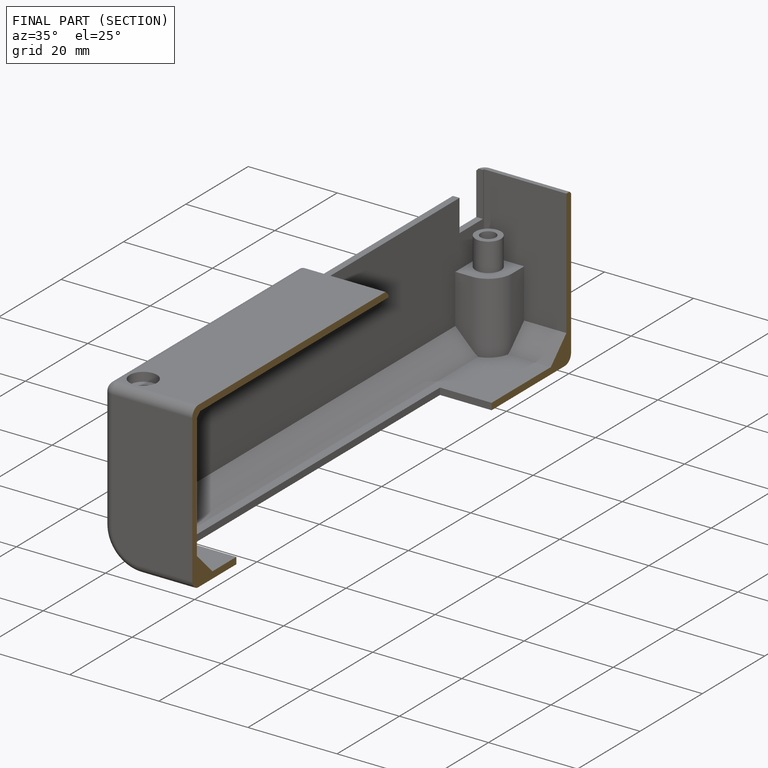
[diagram: finished part — half-section view (interior)]
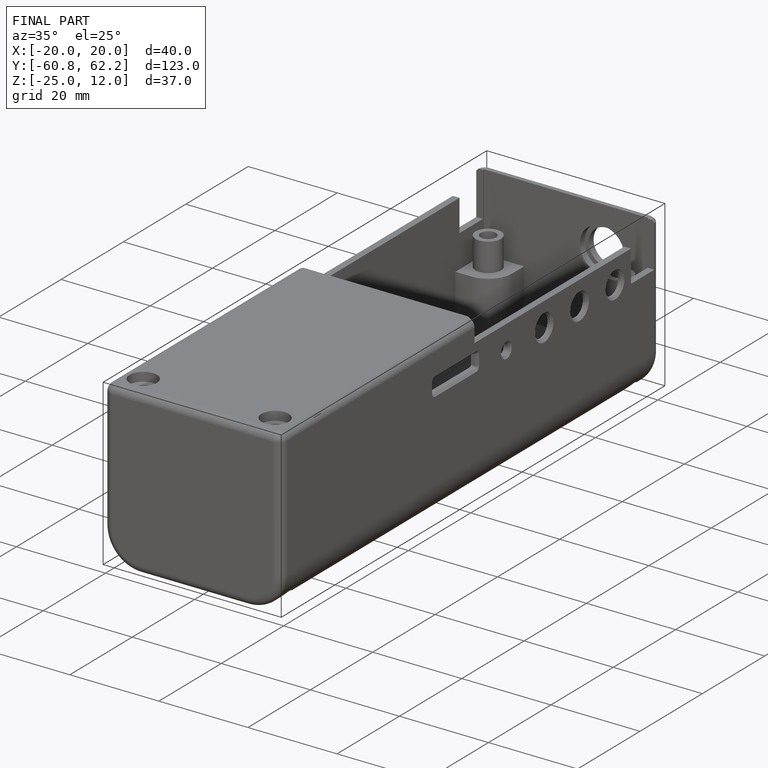
[diagram: finished part — iso view with bounding-box wireframe]
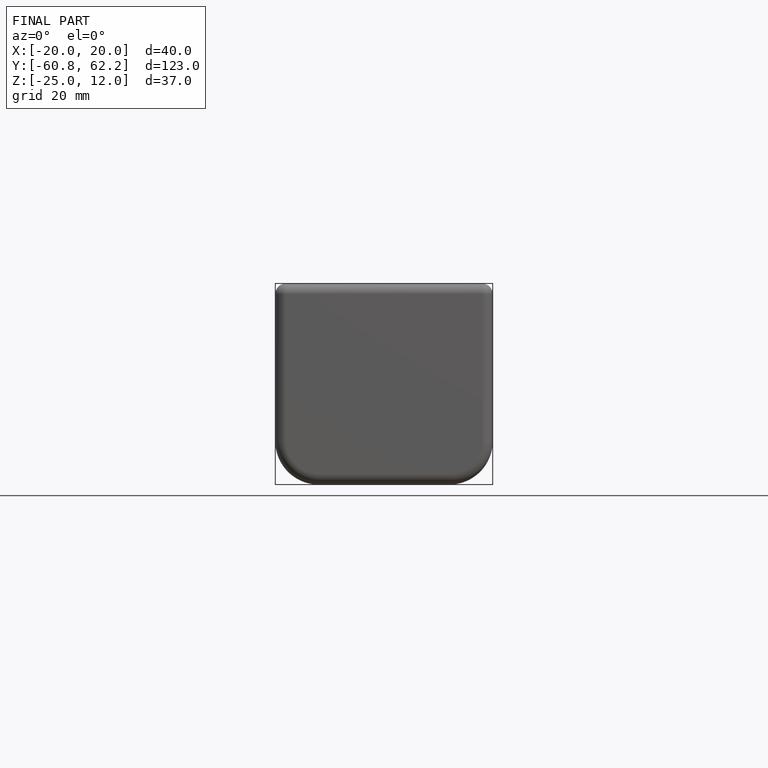
[diagram: finished part — front view with bounding-box wireframe]
